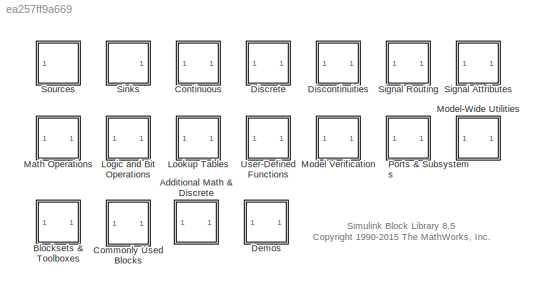
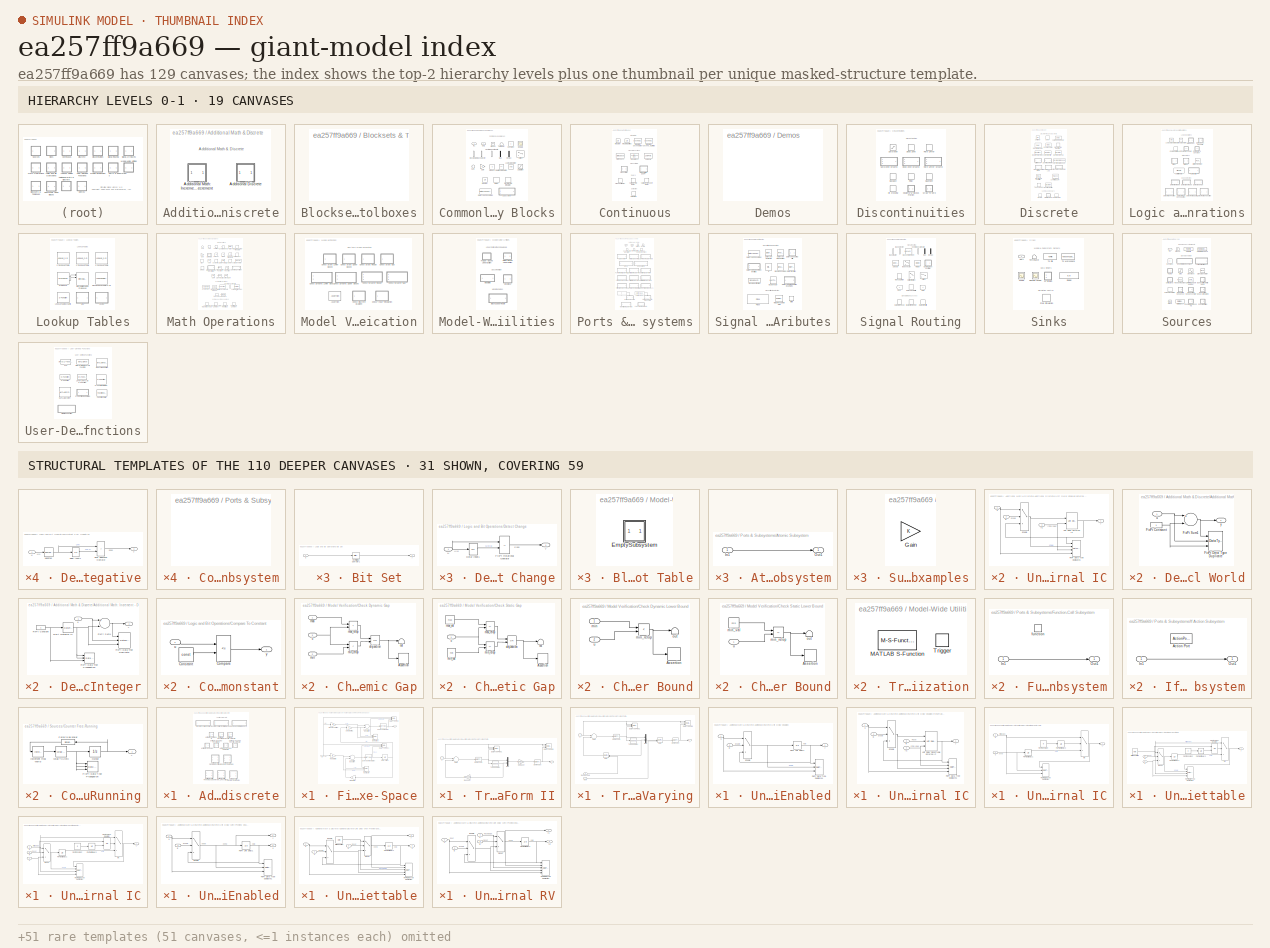
[diagram: thumbnail index - top-2 hierarchy levels (19 canvases) + 31 structural-template representatives of the remaining 110 canvases]
MODEL slx_ea257ff9a669
KIND library
CONFIG AbsTol = auto
CONFIG FixedStep = auto
CONFIG MaxStep = auto
CONFIG MinStep = auto
CONFIG PostLoadFcn = setsysloc_simulink(bdroot)
CONFIG RelTol = 1e-3
CONFIG SampleTimeConstraint = Unconstrained
CONFIG Solver = ode45
CONFIG SolverMode = SingleTasking
CONFIG SolverName = ode45
CONFIG StartTime = 0.0
CONFIG StopTime = 10.0
BLOCK [SubSystem] Additional Math & Discrete
  Ports = []
  RequestExecContextInheritance = off
BLOCK [SubSystem] Additional Math & Discrete/Additional Discrete
  Ports = []
  RequestExecContextInheritance = off
BLOCK [SubSystem] Additional Math & Discrete/Additional Discrete/Fixed-Point State-Space
  Ports = [1, 1]
  RequestExecContextInheritance = off
BLOCK [DataTypeDuplicate] Additional Math & Discrete/Additional Discrete/Fixed-Point State-Space/Data Type Duplicate
  DisableCoverage = on
  NumInputPorts = 3
  Ports = [3]
BLOCK [DataTypeDuplicate] Additional Math & Discrete/Additional Discrete/Fixed-Point State-Space/Data Type Duplicate1
  DisableCoverage = on
  NumInputPorts = 3
  Ports = [3]
BLOCK [Reference] Additional Math & Discrete/Additional Discrete/Fixed-Point State-Space/DataTypeProp  REF=simulink/Signal
Attributes/Data Type
Propagation
  BiasAdd = 0
  BiasBase = Bias2
  BiasMult = 1
  IfRefDouble = double
  IfRefSingle = single
  IsSigned = IsSigned1 or IsSigned2
  NumBitsAdd = 0
  NumBitsAllowFinal = 1:128
  NumBitsBase = NumBits1
  NumBitsMult = 1
  Ports = [3]
  PropDataType = fixdt(1, 16)
  PropDataTypeMode = Inherit via propagation rule
  PropScaling = 2^-10
  PropScalingMode = Inherit via propagation rule
  SlopeAdd = 0
  SlopeBase = PosRange2
  SlopeMult = 1
  SourceBlock = simulink/Signal\nAttributes/Data Type\nPropagation
  SourceType = Data Type Propagation
  ValuesUsedBestPrec = [5 -7]
BLOCK [Reference] Additional Math & Discrete/Additional Discrete/Fixed-Point State-Space/DataTypeProp1  REF=simulink/Signal
Attributes/Data Type
Propagation
  BiasAdd = 0
  BiasBase = Bias2
  BiasMult = 1
  IfRefDouble = double
  IfRefSingle = single
  IsSigned = IsSigned1 or IsSigned2
  NumBitsAdd = 0
  NumBitsAllowFinal = 1:128
  NumBitsBase = NumBits1
  NumBitsMult = 1
  Ports = [3]
  PropDataType = fixdt(1, 16)
  PropDataTypeMode = Inherit via propagation rule
  PropScaling = 2^-10
  PropScalingMode = Inherit via propagation rule
  SlopeAdd = 0
  SlopeBase = PosRange2
  SlopeMult = 1
  SourceBlock = simulink/Signal\nAttributes/Data Type\nPropagation
  SourceType = Data Type Propagation
  ValuesUsedBestPrec = [5 -7]
BLOCK [UnitDelay] Additional Math & Discrete/Additional Discrete/Fixed-Point State-Space/Delay State X
  AttributesFormatString = %<Description>
  Description = Store in Global RAM
  DisableCoverage = on
  InitialCondition = X0
  SampleTime = -1
BLOCK [Gain] Additional Math & Discrete/Additional Discrete/Fixed-Point State-Space/Direct Link Matrix D
  AttributesFormatString = %<Description>
  Description = Multiply in CPU
  DisableCoverage = on
  Gain = D
  Multiplication = Matrix(K*u) (u vector)
  OutDataTypeStr = Inherit: Inherit via back propagation
  ParamDataTypeStr = Inherit: Inherit via internal rule
  SaturateOnIntegerOverflow = off
BLOCK [DataTypeConversion] Additional Math & Discrete/Additional Discrete/Fixed-Point State-Space/Downcast Next State X
  AttributesFormatString = %<Description>
  Description = Reduce from CPU Size\n to Global RAM Size
  DisableCoverage = on
  RndMeth = Floor
  SaturateOnIntegerOverflow = off
BLOCK [DataTypeConversion] Additional Math & Discrete/Additional Discrete/Fixed-Point State-Space/Downcast Output Y
  AttributesFormatString = %<Description>
  Description = Reduce from CPU Size\n to Global RAM Size
  RndMeth = Floor
  SaturateOnIntegerOverflow = off
BLOCK [Gain] Additional Math & Discrete/Additional Discrete/Fixed-Point State-Space/Input Matrix B
  AttributesFormatString = %<Description>
  Description = Multiply in CPU
  DisableCoverage = on
  Gain = B
  Multiplication = Matrix(K*u) (u vector)
  OutDataTypeStr = Inherit: Inherit via back propagation
  ParamDataTypeStr = Inherit: Inherit via internal rule
  SaturateOnIntegerOverflow = off
BLOCK [Gain] Additional Math & Discrete/Additional Discrete/Fixed-Point State-Space/Output Matrix C
  AttributesFormatString = %<Description>
  Description = Multiply in CPU
  DisableCoverage = on
  Gain = C
  Multiplication = Matrix(K*u) (u vector)
  OutDataTypeStr = Inherit: Inherit via back propagation
  ParamDataTypeStr = Inherit: Inherit via internal rule
  SaturateOnIntegerOverflow = off
BLOCK [Gain] Additional Math & Discrete/Additional Discrete/Fixed-Point State-Space/State Matrix A
  AttributesFormatString = %<Description>
  Description = Multiply in CPU
  DisableCoverage = on
  Gain = A
  Multiplication = Matrix(K*u) (u vector)
  OutDataTypeStr = Inherit: Inherit via back propagation
  ParamDataTypeStr = Inherit: Inherit via internal rule
  SaturateOnIntegerOverflow = off
BLOCK [Sum] Additional Math & Discrete/Additional Discrete/Fixed-Point State-Space/Sum Output Equation
  AttributesFormatString = %<Description>
  Description = Add in CPU
  DisableCoverage = on
  InputSameDT = off
  OutDataTypeStr = slDataTypeAndScale(('InternalDataType'),('OutputEqScaling'))
  Ports = [2, 1]
  SaturateOnIntegerOverflow = off
BLOCK [Sum] Additional Math & Discrete/Additional Discrete/Fixed-Point State-Space/Sum State Equation
  AttributesFormatString = %<Description>
  Description = Add in CPU
  DisableCoverage = on
  InputSameDT = off
  OutDataTypeStr = slDataTypeAndScale(('InternalDataType'),('StateEqScaling'))
  Ports = [2, 1]
  SaturateOnIntegerOverflow = off
BLOCK [Inport] Additional Math & Discrete/Additional Discrete/Fixed-Point State-Space/u
  IconDisplay = Port number
BLOCK [Outport] Additional Math & Discrete/Additional Discrete/Fixed-Point State-Space/y
  IconDisplay = Port number
  InitialOutput = 0
BLOCK [SubSystem] Additional Math & Discrete/Additional Discrete/Transfer Fcn Direct Form II
  Ports = [1, 1]
  RequestExecContextInheritance = off
BLOCK [SubSystem] Additional Math & Discrete/Additional Discrete/Transfer Fcn Direct Form II Time Varying
  Ports = [3, 1]
  RequestExecContextInheritance = off
BLOCK [Reference] Additional Math & Discrete/Additional Discrete/Transfer Fcn Direct Form II Time Varying/DataTypeProp  REF=simulink/Signal
Attributes/Data Type
Propagation
  BiasAdd = 0
  BiasBase = Bias1
  BiasMult = 1
  IfRefDouble = double
  IfRefSingle = single
  IsSigned = IsSigned1
  NumBitsAdd = 0
  NumBitsAllowFinal = 1:128
  NumBitsBase = NumBits1
  NumBitsMult = 1
  Ports = [3]
  PropDataType = fixdt(1, 16)
  PropDataTypeMode = Inherit via propagation rule
  PropScaling = 2^-10
  PropScalingMode = Inherit via propagation rule
  SlopeAdd = 0
  SlopeBase = Slope1
  SlopeMult = 1
  SourceBlock = simulink/Signal\nAttributes/Data Type\nPropagation
  SourceType = Data Type Propagation
  ValuesUsedBestPrec = [5 -7]
BLOCK [Reference] Additional Math & Discrete/Additional Discrete/Transfer Fcn Direct Form II Time Varying/DataTypeProp1  REF=simulink/Signal
Attributes/Data Type
Propagation
  BiasAdd = 0
  BiasBase = Bias1
  BiasMult = 1
  IfRefDouble = double
  IfRefSingle = single
  IsSigned = IsSigned1
  NumBitsAdd = 0
  NumBitsAllowFinal = 1:128
  NumBitsBase = NumBits1
  NumBitsMult = 1
  Ports = [3]
  PropDataType = fixdt(1, 16)
  PropDataTypeMode = Inherit via propagation rule
  PropScaling = 2^-10
  PropScalingMode = Inherit via propagation rule
  SlopeAdd = 0
  SlopeBase = Slope1
  SlopeMult = 2
  SourceBlock = simulink/Signal\nAttributes/Data Type\nPropagation
  SourceType = Data Type Propagation
  ValuesUsedBestPrec = [5 -7]
BLOCK [Inport] Additional Math & Discrete/Additional Discrete/Transfer Fcn Direct Form II Time Varying/Den No Lead
  IconDisplay = Port number
  Port = 3
BLOCK [DotProduct] Additional Math & Discrete/Additional Discrete/Transfer Fcn Direct Form II Time Varying/Dot1
  AttributesFormatString = Data Type and Scaling Inherited\nwith goal of NO Quantization Noise\nPossible Overflow or Saturation
  DisableCoverage = on
  InputSameDT = off
  OutDataTypeStr = Inherit: Inherit via internal rule
BLOCK [DotProduct] Additional Math & Discrete/Additional Discrete/Transfer Fcn Direct Form II Time Varying/Dot2
  AttributesFormatString = Data Type and Scaling Inherited\nwith goal of NO Quantization Noise\nPossible Overflow or Saturation
  DisableCoverage = on
  InputSameDT = off
  OutDataTypeStr = Inherit: Inherit via internal rule
BLOCK [DataTypeConversion] Additional Math & Discrete/Additional Discrete/Transfer Fcn Direct Form II Time Varying/Downcast
  AttributesFormatString = %<Description>
  Description = Reduce from CPU Size\n to Global RAM Size
  LockScale = on
  RndMeth = Floor
  SaturateOnIntegerOverflow = off
BLOCK [DataTypeConversion] Additional Math & Discrete/Additional Discrete/Transfer Fcn Direct Form II Time Varying/Downcast1
  AttributesFormatString = %<Description>
  Description = Reduce from CPU Size\n to Global RAM Size
  DisableCoverage = on
  LockScale = on
  RndMeth = Floor
  SaturateOnIntegerOverflow = off
BLOCK [Mux] Additional Math & Discrete/Additional Discrete/Transfer Fcn Direct Form II Time Varying/Mux
  DisplayOption = bar
  Inputs = 2
  Ports = [2, 1]
BLOCK [Inport] Additional Math & Discrete/Additional Discrete/Transfer Fcn Direct Form II Time Varying/Num
  IconDisplay = Port number
  Port = 2
BLOCK [Sum] Additional Math & Discrete/Additional Discrete/Transfer Fcn Direct Form II Time Varying/Sum
  AttributesFormatString = Data Type and Scaling Inherited\nwith goal of NO Quantization Noise\nPossible Overflow or Saturation
  DisableCoverage = on
  InputSameDT = off
  Inputs = +-
  LockScale = on
  OutDataTypeStr = Inherit: Inherit via internal rule
  Ports = [2, 1]
  SaturateOnIntegerOverflow = off
  Tag = S16 2^-10
BLOCK [Reference] Additional Math & Discrete/Additional Discrete/Transfer Fcn Direct Form II Time Varying/Tapped Delay  REF=simulink/Discrete/Tapped Delay
  AttributesFormatString = Number of Taps\nInherited via Back Propagation
  DelayOrder = Newest
  NumDelays = -1
  Ports = [1, 1]
  SourceBlock = simulink/Discrete/Tapped Delay
  SourceType = Tapped Delay Line
  includeCurrent = off
  samptime = -1
  vinit = vinit
BLOCK [Inport] Additional Math & Discrete/Additional Discrete/Transfer Fcn Direct Form II Time Varying/u
  IconDisplay = Port number
BLOCK [Outport] Additional Math & Discrete/Additional Discrete/Transfer Fcn Direct Form II Time Varying/y
  IconDisplay = Port number
BLOCK [Reference] Additional Math & Discrete/Additional Discrete/Transfer Fcn Direct Form II/DataTypeProp  REF=simulink/Signal
Attributes/Data Type
Propagation
  BiasAdd = 0
  BiasBase = Bias1
  BiasMult = 0
  IfRefDouble = double
  IfRefSingle = single
  IsSigned = IsSigned1 or IsSigned2
  NumBitsAdd = 0
  NumBitsAllowFinal = 1:128
  NumBitsBase = max([NumBits1 NumBits2])
  NumBitsMult = 1
  Ports = [3]
  PropDataType = fixdt(1, 16)
  PropDataTypeMode = Inherit via propagation rule
  PropScaling = 2^-10
  PropScalingMode = Inherit via propagation rule
  SlopeAdd = 0
  SlopeBase = min([Slope1 Slope2])
  SlopeMult = OutputSlopeMult
  SourceBlock = simulink/Signal\nAttributes/Data Type\nPropagation
  SourceType = Data Type Propagation
  ValuesUsedBestPrec = [5 -7]
BLOCK [Reference] Additional Math & Discrete/Additional Discrete/Transfer Fcn Direct Form II/DataTypeProp1  REF=simulink/Signal
Attributes/Data Type
Propagation
  BiasAdd = 0
  BiasBase = Bias1
  BiasMult = 0
  IfRefDouble = double
  IfRefSingle = single
  IsSigned = IsSigned1 or IsSigned2
  NumBitsAdd = 0
  NumBitsAllowFinal = 1:128
  NumBitsBase = max([NumBits1 NumBits2])
  NumBitsMult = 1
  Ports = [3]
  PropDataType = fixdt(1, 16)
  PropDataTypeMode = Inherit via propagation rule
  PropScaling = 2^-10
  PropScalingMode = Inherit via propagation rule
  SlopeAdd = 0
  SlopeBase = min([Slope1 Slope2])
  SlopeMult = OutputSlopeMult2
  SourceBlock = simulink/Signal\nAttributes/Data Type\nPropagation
  SourceType = Data Type Propagation
  ValuesUsedBestPrec = [5 -7]
BLOCK [Gain] Additional Math & Discrete/Additional Discrete/Transfer Fcn Direct Form II/DenCoef
  AttributesFormatString = Data Type and Scaling Inherited\nwith goal of NO Quantization Noise\nPossible Overflow or Saturation
  DisableCoverage = on
  Gain = DenCoefVec
  Multiplication = Matrix(K*u) (u vector)
  OutDataTypeStr = Inherit: Inherit via internal rule
  ParamDataTypeStr = Inherit: Inherit via internal rule
  SaturateOnIntegerOverflow = off
BLOCK [DataTypeConversion] Additional Math & Discrete/Additional Discrete/Transfer Fcn Direct Form II/Downcast
  AttributesFormatString = %<Description>
  Description = Reduce from CPU Size\n to Global RAM Size
  LockScale = on
  RndMeth = Floor
  SaturateOnIntegerOverflow = off
BLOCK [DataTypeConversion] Additional Math & Discrete/Additional Discrete/Transfer Fcn Direct Form II/Downcast1
  AttributesFormatString = %<Description>
  Description = Reduce from CPU Size\n to Global RAM Size
  DisableCoverage = on
  LockScale = on
  RndMeth = Floor
  SaturateOnIntegerOverflow = off
BLOCK [Mux] Additional Math & Discrete/Additional Discrete/Transfer Fcn Direct Form II/Mux
  DisplayOption = bar
  Inputs = 2
  Ports = [2, 1]
BLOCK [Gain] Additional Math & Discrete/Additional Discrete/Transfer Fcn Direct Form II/NumCoef
  AttributesFormatString = Data Type and Scaling Inherited\nwith goal of NO Quantization Noise\nPossible Overflow or Saturation
  DisableCoverage = on
  Gain = NumCoefVec
  Multiplication = Matrix(K*u) (u vector)
  OutDataTypeStr = Inherit: Inherit via internal rule
  ParamDataTypeStr = Inherit: Inherit via internal rule
  SaturateOnIntegerOverflow = off
BLOCK [Sum] Additional Math & Discrete/Additional Discrete/Transfer Fcn Direct Form II/Sum
  AttributesFormatString = Data Type and Scaling Inherited\nwith goal of NO Quantization Noise\nPossible Overflow or Saturation
  DisableCoverage = on
  InputSameDT = off
  Inputs = +-
  LockScale = on
  OutDataTypeStr = Inherit: Inherit via internal rule
  Ports = [2, 1]
  SaturateOnIntegerOverflow = off
  Tag = S16 2^-10
BLOCK [Reference] Additional Math & Discrete/Additional Discrete/Transfer Fcn Direct Form II/Tapped Delay  REF=simulink/Discrete/Tapped Delay
  AttributesFormatString = Number of Taps\nInherited via Back Propagation
  DelayOrder = Newest
  NumDelays = -1
  Ports = [1, 1]
  SourceBlock = simulink/Discrete/Tapped Delay
  SourceType = Tapped Delay Line
  includeCurrent = off
  samptime = -1
  vinit = vinit
BLOCK [Inport] Additional Math & Discrete/Additional Discrete/Transfer Fcn Direct Form II/u
  IconDisplay = Port number
BLOCK [Outport] Additional Math & Discrete/Additional Discrete/Transfer Fcn Direct Form II/y
  IconDisplay = Port number
BLOCK [SubSystem] Additional Math & Discrete/Additional Discrete/Unit Delay Enabled
  Ports = [2, 1]
  RequestExecContextInheritance = off
BLOCK [SubSystem] Additional Math & Discrete/Additional Discrete/Unit Delay Enabled External IC
  Ports = [3, 1]
  RequestExecContextInheritance = off
BLOCK [Inport] Additional Math & Discrete/Additional Discrete/Unit Delay Enabled External IC/E
  IconDisplay = Port number
  Port = 2
BLOCK [Switch] Additional Math & Discrete/Additional Discrete/Unit Delay Enabled External IC/Enable
  Criteria = u2 ~= 0
  InputSameDT = off
  OutDataTypeStr = Inherit: Inherit via back propagation
  SaturateOnIntegerOverflow = off
  ZeroCross = off
BLOCK [DataTypeDuplicate] Additional Math & Discrete/Additional Discrete/Unit Delay Enabled External IC/FixPt Data Type Duplicate1
  DisableCoverage = on
  NumInputPorts = 4
  Ports = [4]
BLOCK [Inport] Additional Math & Discrete/Additional Discrete/Unit Delay Enabled External IC/IC
  IconDisplay = Port number
  Port = 3
BLOCK [Reference] Additional Math & Discrete/Additional Discrete/Unit Delay Enabled External IC/Unit Delay External IC  REF=simulink/Additional Math
& Discrete/Additional
Discrete/Unit Delay
External IC
  Ports = [2, 1]
  SourceBlock = simulink/Additional Math\n& Discrete/Additional\nDiscrete/Unit Delay\nExternal IC
  SourceType = Unit Delay External Initial Condition
  tsamp = tsamp
BLOCK [Inport] Additional Math & Discrete/Additional Discrete/Unit Delay Enabled External IC/u
  IconDisplay = Port number
BLOCK [Outport] Additional Math & Discrete/Additional Discrete/Unit Delay Enabled External IC/y
  IconDisplay = Port number
BLOCK [SubSystem] Additional Math & Discrete/Additional Discrete/Unit Delay Enabled Resettable
  Ports = [3, 1]
  RequestExecContextInheritance = off
BLOCK [SubSystem] Additional Math & Discrete/Additional Discrete/Unit Delay Enabled Resettable External IC
  Ports = [4, 1]
  RequestExecContextInheritance = off
BLOCK [Inport] Additional Math & Discrete/Additional Discrete/Unit Delay Enabled Resettable External IC/E
  IconDisplay = Port number
  Port = 2
BLOCK [Switch] Additional Math & Discrete/Additional Discrete/Unit Delay Enabled Resettable External IC/Enable
  Criteria = u2 ~= 0
  InputSameDT = off
  OutDataTypeStr = Inherit: Inherit via back propagation
  SaturateOnIntegerOverflow = off
  ZeroCross = off
BLOCK [DataTypeDuplicate] Additional Math & Discrete/Additional Discrete/Unit Delay Enabled Resettable External IC/FixPt Data Type Duplicate1
  DisableCoverage = on
  NumInputPorts = 4
  Ports = [4]
BLOCK [Inport] Additional Math & Discrete/Additional Discrete/Unit Delay Enabled Resettable External IC/IC
  IconDisplay = Port number
  Port = 4
BLOCK [Inport] Additional Math & Discrete/Additional Discrete/Unit Delay Enabled Resettable External IC/R
  IconDisplay = Port number
  Port = 3
BLOCK [Reference] Additional Math & Discrete/Additional Discrete/Unit Delay Enabled Resettable External IC/Unit Delay Resettable External IC  REF=simulink/Additional Math
& Discrete/Additional
Discrete/Unit Delay
Resettable
External IC
  Ports = [3, 1]
  SourceBlock = simulink/Additional Math\n& Discrete/Additional\nDiscrete/Unit Delay\nResettable\nExternal IC
  SourceType = Unit Delay Resettable External Initial Condition
  tsamp = tsamp
BLOCK [Inport] Additional Math & Discrete/Additional Discrete/Unit Delay Enabled Resettable External IC/u
  IconDisplay = Port number
BLOCK [Outport] Additional Math & Discrete/Additional Discrete/Unit Delay Enabled Resettable External IC/y
  IconDisplay = Port number
BLOCK [Inport] Additional Math & Discrete/Additional Discrete/Unit Delay Enabled Resettable/E
  IconDisplay = Port number
  Port = 2
BLOCK [Switch] Additional Math & Discrete/Additional Discrete/Unit Delay Enabled Resettable/Enable
  Criteria = u2 ~= 0
  InputSameDT = off
  OutDataTypeStr = Inherit: Inherit via back propagation
  SaturateOnIntegerOverflow = off
  ZeroCross = off
BLOCK [DataTypeDuplicate] Additional Math & Discrete/Additional Discrete/Unit Delay Enabled Resettable/FixPt Data Type Duplicate2
  DisableCoverage = on
  NumInputPorts = 3
  Ports = [3]
BLOCK [Inport] Additional Math & Discrete/Additional Discrete/Unit Delay Enabled Resettable/R
  IconDisplay = Port number
  Port = 3
BLOCK [Reference] Additional Math & Discrete/Additional Discrete/Unit Delay Enabled Resettable/Unit Delay Resettable  REF=simulink/Additional Math
& Discrete/Additional
Discrete/Unit Delay
Resettable
  Ports = [2, 1]
  SourceBlock = simulink/Additional Math\n& Discrete/Additional\nDiscrete/Unit Delay\nResettable
  SourceType = Unit Delay Resettable
  tsamp = tsamp
  vinit = vinit
BLOCK [Inport] Additional Math & Discrete/Additional Discrete/Unit Delay Enabled Resettable/u
  IconDisplay = Port number
BLOCK [Outport] Additional Math & Discrete/Additional Discrete/Unit Delay Enabled Resettable/y
  IconDisplay = Port number
BLOCK [Inport] Additional Math & Discrete/Additional Discrete/Unit Delay Enabled/E
  IconDisplay = Port number
  Port = 2
BLOCK [Switch] Additional Math & Discrete/Additional Discrete/Unit Delay Enabled/Enable
  Criteria = u2 ~= 0
  InputSameDT = off
  OutDataTypeStr = Inherit: Inherit via back propagation
  SaturateOnIntegerOverflow = off
  ZeroCross = off
BLOCK [DataTypeDuplicate] Additional Math & Discrete/Additional Discrete/Unit Delay Enabled/FixPt Data Type Duplicate1
  DisableCoverage = on
  NumInputPorts = 3
  Ports = [3]
BLOCK [UnitDelay] Additional Math & Discrete/Additional Discrete/Unit Delay Enabled/FixPt Unit Delay1
  HasFrameUpgradeWarning = off
  InitialCondition = vinit
  SampleTime = tsamp
BLOCK [Inport] Additional Math & Discrete/Additional Discrete/Unit Delay Enabled/u
  IconDisplay = Port number
BLOCK [Outport] Additional Math & Discrete/Additional Discrete/Unit Delay Enabled/y
  IconDisplay = Port number
BLOCK [SubSystem] Additional Math & Discrete/Additional Discrete/Unit Delay External IC
  Ports = [2, 1]
  RequestExecContextInheritance = off
BLOCK [Constant] Additional Math & Discrete/Additional Discrete/Unit Delay External IC/FixPt Constant
  DisableCoverage = on
  OutDataTypeStr = fixdt(0,8,0)
  Value = 0
BLOCK [DataTypeDuplicate] Additional Math & Discrete/Additional Discrete/Unit Delay External IC/FixPt Data Type Duplicate1
  DisableCoverage = on
  NumInputPorts = 3
  Ports = [3]
BLOCK [UnitDelay] Additional Math & Discrete/Additional Discrete/Unit Delay External IC/FixPt Unit Delay1
  DisableCoverage = on
  HasFrameUpgradeWarning = off
  InitialCondition = 0.0
  SampleTime = tsamp
BLOCK [UnitDelay] Additional Math & Discrete/Additional Discrete/Unit Delay External IC/FixPt Unit Delay2
  DisableCoverage = on
  InitialCondition = 1
  InputProcessing = Elements as channels (sample based)
  SampleTime = tsamp
BLOCK [Inport] Additional Math & Discrete/Additional Discrete/Unit Delay External IC/IC
  IconDisplay = Port number
  Port = 2
BLOCK [Switch] Additional Math & Discrete/Additional Discrete/Unit Delay External IC/Init
  Criteria = u2 ~= 0
  InputSameDT = off
  OutDataTypeStr = Inherit: Inherit via back propagation
  SaturateOnIntegerOverflow = off
  ZeroCross = off
BLOCK [Inport] Additional Math & Discrete/Additional Discrete/Unit Delay External IC/u
  IconDisplay = Port number
BLOCK [Outport] Additional Math & Discrete/Additional Discrete/Unit Delay External IC/y
  IconDisplay = Port number
BLOCK [SubSystem] Additional Math & Discrete/Additional Discrete/Unit Delay Resettable
  Ports = [2, 1]
  RequestExecContextInheritance = off
BLOCK [SubSystem] Additional Math & Discrete/Additional Discrete/Unit Delay Resettable External IC
  Ports = [3, 1]
  RequestExecContextInheritance = off
BLOCK [Constant] Additional Math & Discrete/Additional Discrete/Unit Delay Resettable External IC/FixPt Constant
  DisableCoverage = on
  OutDataTypeStr = fixdt(0,8,0)
  Value = 0
BLOCK [DataTypeDuplicate] Additional Math & Discrete/Additional Discrete/Unit Delay Resettable External IC/FixPt Data Type Duplicate1
  DisableCoverage = on
  NumInputPorts = 4
  Ports = [4]
BLOCK [Logic] Additional Math & Discrete/Additional Discrete/Unit Delay Resettable External IC/FixPt Logical Operator
  AllPortsSameDT = off
  DisableCoverage = on
  Operator = OR
  OutDataTypeStr = fixdt(0, 8)
  Ports = [2, 1]
BLOCK [UnitDelay] Additional Math & Discrete/Additional Discrete/Unit Delay Resettable External IC/FixPt Unit Delay1
  DisableCoverage = on
  HasFrameUpgradeWarning = off
  InitialCondition = 0.0
  SampleTime = tsamp
BLOCK [UnitDelay] Additional Math & Discrete/Additional Discrete/Unit Delay Resettable External IC/FixPt Unit Delay2
  DisableCoverage = on
  InitialCondition = 1
  InputProcessing = Elements as channels (sample based)
  SampleTime = tsamp
BLOCK [Inport] Additional Math & Discrete/Additional Discrete/Unit Delay Resettable External IC/IC
  IconDisplay = Port number
  Port = 3
BLOCK [Switch] Additional Math & Discrete/Additional Discrete/Unit Delay Resettable External IC/Init
  Criteria = u2 ~= 0
  InputSameDT = off
  OutDataTypeStr = Inherit: Inherit via back propagation
  SaturateOnIntegerOverflow = off
  ZeroCross = off
BLOCK [Inport] Additional Math & Discrete/Additional Discrete/Unit Delay Resettable External IC/R
  IconDisplay = Port number
  Port = 2
BLOCK [Switch] Additional Math & Discrete/Additional Discrete/Unit Delay Resettable External IC/Reset
  Criteria = u2 ~= 0
  InputSameDT = off
  OutDataTypeStr = Inherit: Inherit via back propagation
  SaturateOnIntegerOverflow = off
  ZeroCross = off
BLOCK [Inport] Additional Math & Discrete/Additional Discrete/Unit Delay Resettable External IC/u
  IconDisplay = Port number
BLOCK [Outport] Additional Math & Discrete/Additional Discrete/Unit Delay Resettable External IC/y
  IconDisplay = Port number
BLOCK [Constant] Additional Math & Discrete/Additional Discrete/Unit Delay Resettable/FixPt Constant
  DisableCoverage = on
  OutDataTypeStr = fixdt(0,8,0)
  Value = 0
BLOCK [DataTypeDuplicate] Additional Math & Discrete/Additional Discrete/Unit Delay Resettable/FixPt Data Type Duplicate1
  DisableCoverage = on
  NumInputPorts = 4
  Ports = [4]
BLOCK [Logic] Additional Math & Discrete/Additional Discrete/Unit Delay Resettable/FixPt Logical Operator
  AllPortsSameDT = off
  DisableCoverage = on
  Operator = OR
  OutDataTypeStr = fixdt(0, 8)
  Ports = [2, 1]
BLOCK [UnitDelay] Additional Math & Discrete/Additional Discrete/Unit Delay Resettable/FixPt Unit Delay1
  DisableCoverage = on
  HasFrameUpgradeWarning = off
  InitialCondition = vinit
  SampleTime = tsamp
BLOCK [UnitDelay] Additional Math & Discrete/Additional Discrete/Unit Delay Resettable/FixPt Unit Delay2
  DisableCoverage = on
  InitialCondition = 1
  InputProcessing = Elements as channels (sample based)
  SampleTime = tsamp
BLOCK [Switch] Additional Math & Discrete/Additional Discrete/Unit Delay Resettable/Init
  Criteria = u2 ~= 0
  InputSameDT = off
  OutDataTypeStr = Inherit: Inherit via back propagation
  SaturateOnIntegerOverflow = off
  ZeroCross = off
BLOCK [Constant] Additional Math & Discrete/Additional Discrete/Unit Delay Resettable/Initial Condition
  DisableCoverage = on
  OutDataTypeStr = Inherit: Inherit via back propagation
  Value = vinit
BLOCK [Inport] Additional Math & Discrete/Additional Discrete/Unit Delay Resettable/R
  IconDisplay = Port number
  Port = 2
BLOCK [Switch] Additional Math & Discrete/Additional Discrete/Unit Delay Resettable/Reset
  Criteria = u2 ~= 0
  InputSameDT = off
  OutDataTypeStr = Inherit: Inherit via back propagation
  SaturateOnIntegerOverflow = off
  ZeroCross = off
BLOCK [Inport] Additional Math & Discrete/Additional Discrete/Unit Delay Resettable/u
  IconDisplay = Port number
BLOCK [Outport] Additional Math & Discrete/Additional Discrete/Unit Delay Resettable/y
  IconDisplay = Port number
BLOCK [SubSystem] Additional Math & Discrete/Additional Discrete/Unit Delay With Preview Enabled
  Ports = [2, 2]
  RequestExecContextInheritance = off
BLOCK [SubSystem] Additional Math & Discrete/Additional Discrete/Unit Delay With Preview Enabled Resettable
  Ports = [3, 2]
  RequestExecContextInheritance = off
BLOCK [SubSystem] Additional Math & Discrete/Additional Discrete/Unit Delay With Preview Enabled Resettable External RV
  Ports = [4, 2]
  RequestExecContextInheritance = off
BLOCK [Inport] Additional Math & Discrete/Additional Discrete/Unit Delay With Preview Enabled Resettable External RV/E
  IconDisplay = Port number
  Port = 2
BLOCK [Switch] Additional Math & Discrete/Additional Discrete/Unit Delay With Preview Enabled Resettable External RV/Enable
  Criteria = u2 ~= 0
  InputSameDT = off
  OutDataTypeStr = Inherit: Inherit via back propagation
  SaturateOnIntegerOverflow = off
  ZeroCross = off
BLOCK [DataTypeDuplicate] Additional Math & Discrete/Additional Discrete/Unit Delay With Preview Enabled Resettable External RV/FixPt Data Type Duplicate2
  DisableCoverage = on
  NumInputPorts = 5
  Ports = [5]
BLOCK [UnitDelay] Additional Math & Discrete/Additional Discrete/Unit Delay With Preview Enabled Resettable External RV/FixPt Unit Delay1
  HasFrameUpgradeWarning = off
  InitialCondition = vinit
  SampleTime = tsamp
BLOCK [Inport] Additional Math & Discrete/Additional Discrete/Unit Delay With Preview Enabled Resettable External RV/R
  IconDisplay = Port number
  Port = 3
BLOCK [Switch] Additional Math & Discrete/Additional Discrete/Unit Delay With Preview Enabled Resettable External RV/Reset
  Criteria = u2 ~= 0
  OutDataTypeStr = Inherit: Inherit via back propagation
  SaturateOnIntegerOverflow = off
BLOCK [Inport] Additional Math & Discrete/Additional Discrete/Unit Delay With Preview Enabled Resettable External RV/V
  IconDisplay = Port number
  Port = 4
BLOCK [Inport] Additional Math & Discrete/Additional Discrete/Unit Delay With Preview Enabled Resettable External RV/u
  IconDisplay = Port number
BLOCK [Outport] Additional Math & Discrete/Additional Discrete/Unit Delay With Preview Enabled Resettable External RV/y1
  IconDisplay = Port number
BLOCK [Outport] Additional Math & Discrete/Additional Discrete/Unit Delay With Preview Enabled Resettable External RV/y2
  IconDisplay = Port number
  Port = 2
BLOCK [Inport] Additional Math & Discrete/Additional Discrete/Unit Delay With Preview Enabled Resettable/E
  IconDisplay = Port number
  Port = 2
BLOCK [Switch] Additional Math & Discrete/Additional Discrete/Unit Delay With Preview Enabled Resettable/Enable
  Criteria = u2 ~= 0
  InputSameDT = off
  OutDataTypeStr = Inherit: Inherit via back propagation
  SaturateOnIntegerOverflow = off
  ZeroCross = off
BLOCK [DataTypeDuplicate] Additional Math & Discrete/Additional Discrete/Unit Delay With Preview Enabled Resettable/FixPt Data Type Duplicate2
  DisableCoverage = on
  NumInputPorts = 5
  Ports = [5]
BLOCK [UnitDelay] Additional Math & Discrete/Additional Discrete/Unit Delay With Preview Enabled Resettable/FixPt Unit Delay1
  HasFrameUpgradeWarning = off
  InitialCondition = vinit
  SampleTime = tsamp
BLOCK [Constant] Additional Math & Discrete/Additional Discrete/Unit Delay With Preview Enabled Resettable/Initial Condition
  DisableCoverage = on
  OutDataTypeStr = Inherit: Inherit via back propagation
  Value = vinit
BLOCK [Inport] Additional Math & Discrete/Additional Discrete/Unit Delay With Preview Enabled Resettable/R
  IconDisplay = Port number
  Port = 3
BLOCK [Switch] Additional Math & Discrete/Additional Discrete/Unit Delay With Preview Enabled Resettable/Reset
  Criteria = u2 ~= 0
  OutDataTypeStr = Inherit: Inherit via back propagation
  SaturateOnIntegerOverflow = off
BLOCK [Inport] Additional Math & Discrete/Additional Discrete/Unit Delay With Preview Enabled Resettable/u
  IconDisplay = Port number
BLOCK [Outport] Additional Math & Discrete/Additional Discrete/Unit Delay With Preview Enabled Resettable/x
  IconDisplay = Port number
  Port = 2
BLOCK [Outport] Additional Math & Discrete/Additional Discrete/Unit Delay With Preview Enabled Resettable/y
  IconDisplay = Port number
BLOCK [Inport] Additional Math & Discrete/Additional Discrete/Unit Delay With Preview Enabled/E
  IconDisplay = Port number
  Port = 2
BLOCK [Switch] Additional Math & Discrete/Additional Discrete/Unit Delay With Preview Enabled/Enable
  Criteria = u2 ~= 0
  InputSameDT = off
  OutDataTypeStr = Inherit: Inherit via back propagation
  SaturateOnIntegerOverflow = off
  ZeroCross = off
BLOCK [DataTypeDuplicate] Additional Math & Discrete/Additional Discrete/Unit Delay With Preview Enabled/FixPt Data Type Duplicate1
  DisableCoverage = on
  NumInputPorts = 3
  Ports = [3]
BLOCK [UnitDelay] Additional Math & Discrete/Additional Discrete/Unit Delay With Preview Enabled/FixPt Unit Delay1
  HasFrameUpgradeWarning = off
  InitialCondition = vinit
  SampleTime = tsamp
BLOCK [Inport] Additional Math & Discrete/Additional Discrete/Unit Delay With Preview Enabled/u
  IconDisplay = Port number
BLOCK [Outport] Additional Math & Discrete/Additional Discrete/Unit Delay With Preview Enabled/x
  IconDisplay = Port number
  Port = 2
BLOCK [Outport] Additional Math & Discrete/Additional Discrete/Unit Delay With Preview Enabled/y
  IconDisplay = Port number
BLOCK [SubSystem] Additional Math & Discrete/Additional Discrete/Unit Delay With Preview Resettable
  Ports = [2, 2]
  RequestExecContextInheritance = off
BLOCK [SubSystem] Additional Math & Discrete/Additional Discrete/Unit Delay With Preview Resettable External RV
  Ports = [3, 2]
  RequestExecContextInheritance = off
BLOCK [DataTypeDuplicate] Additional Math & Discrete/Additional Discrete/Unit Delay With Preview Resettable External RV/FixPt Data Type Duplicate2
  DisableCoverage = on
  NumInputPorts = 4
  Ports = [4]
BLOCK [UnitDelay] Additional Math & Discrete/Additional Discrete/Unit Delay With Preview Resettable External RV/FixPt Unit Delay1
  HasFrameUpgradeWarning = off
  InitialCondition = vinit
  SampleTime = tsamp
BLOCK [Inport] Additional Math & Discrete/Additional Discrete/Unit Delay With Preview Resettable External RV/R
  IconDisplay = Port number
  Port = 2
BLOCK [Inport] Additional Math & Discrete/Additional Discrete/Unit Delay With Preview Resettable External RV/RV
  IconDisplay = Port number
  Port = 3
BLOCK [Switch] Additional Math & Discrete/Additional Discrete/Unit Delay With Preview Resettable External RV/Reset
  Criteria = u2 ~= 0
  InputSameDT = off
  OutDataTypeStr = Inherit: Inherit via back propagation
  SaturateOnIntegerOverflow = off
  ZeroCross = off
BLOCK [Inport] Additional Math & Discrete/Additional Discrete/Unit Delay With Preview Resettable External RV/u
  IconDisplay = Port number
BLOCK [Outport] Additional Math & Discrete/Additional Discrete/Unit Delay With Preview Resettable External RV/x
  IconDisplay = Port number
  Port = 2
BLOCK [Outport] Additional Math & Discrete/Additional Discrete/Unit Delay With Preview Resettable External RV/y
  IconDisplay = Port number
BLOCK [DataTypeDuplicate] Additional Math & Discrete/Additional Discrete/Unit Delay With Preview Resettable/FixPt Data Type Duplicate2
  DisableCoverage = on
  NumInputPorts = 4
  Ports = [4]
BLOCK [UnitDelay] Additional Math & Discrete/Additional Discrete/Unit Delay With Preview Resettable/FixPt Unit Delay1
  HasFrameUpgradeWarning = off
  InitialCondition = vinit
  SampleTime = tsamp
BLOCK [Constant] Additional Math & Discrete/Additional Discrete/Unit Delay With Preview Resettable/Initial Condition
  DisableCoverage = on
  OutDataTypeStr = Inherit: Inherit via back propagation
  Value = vinit
BLOCK [Inport] Additional Math & Discrete/Additional Discrete/Unit Delay With Preview Resettable/R
  IconDisplay = Port number
  Port = 2
BLOCK [Switch] Additional Math & Discrete/Additional Discrete/Unit Delay With Preview Resettable/Reset
  Criteria = u2 ~= 0
  InputSameDT = off
  OutDataTypeStr = Inherit: Inherit via back propagation
  SaturateOnIntegerOverflow = off
  ZeroCross = off
BLOCK [Inport] Additional Math & Discrete/Additional Discrete/Unit Delay With Preview Resettable/u
  IconDisplay = Port number
BLOCK [Outport] Additional Math & Discrete/Additional Discrete/Unit Delay With Preview Resettable/x
  IconDisplay = Port number
  Port = 2
BLOCK [Outport] Additional Math & Discrete/Additional Discrete/Unit Delay With Preview Resettable/y
  IconDisplay = Port number
BLOCK [SubSystem] Additional Math & Discrete/Additional Math: Increment - Decrement
  Ports = []
  RequestExecContextInheritance = off
BLOCK [SubSystem] Additional Math & Discrete/Additional Math: Increment - Decrement/Decrement Real World
  Ports = [1, 1]
  RequestExecContextInheritance = off
BLOCK [Constant] Additional Math & Discrete/Additional Math: Increment - Decrement/Decrement Real World/FixPt Constant
  DisableCoverage = on
  OutDataTypeStr = Inherit: Inherit via back propagation
BLOCK [DataTypeDuplicate] Additional Math & Discrete/Additional Math: Increment - Decrement/Decrement Real World/FixPt Data Type Duplicate
  DisableCoverage = on
  NumInputPorts = 3
  Ports = [3]
BLOCK [Sum] Additional Math & Discrete/Additional Math: Increment - Decrement/Decrement Real World/FixPt Sum1
  Inputs = +-
  LockScale = on
  OutDataTypeStr = Inherit: Inherit via back propagation
  Ports = [2, 1]
  SaturateOnIntegerOverflow = off
BLOCK [Inport] Additional Math & Discrete/Additional Math: Increment - Decrement/Decrement Real World/u
  IconDisplay = Port number
BLOCK [Outport] Additional Math & Discrete/Additional Math: Increment - Decrement/Decrement Real World/y
  IconDisplay = Port number
BLOCK [SubSystem] Additional Math & Discrete/Additional Math: Increment - Decrement/Decrement Stored Integer
  Ports = [1, 1]
  RequestExecContextInheritance = off
BLOCK [Constant] Additional Math & Discrete/Additional Math: Increment - Decrement/Decrement Stored Integer/FixPt Constant
  DisableCoverage = on
  OutDataTypeStr = Inherit: Inherit via back propagation
BLOCK [DataTypeDuplicate] Additional Math & Discrete/Additional Math: Increment - Decrement/Decrement Stored Integer/FixPt Data Type Duplicate
  DisableCoverage = on
  NumInputPorts = 3
  Ports = [3]
BLOCK [Reference] Additional Math & Discrete/Additional Math: Increment - Decrement/Decrement Stored Integer/FixPt Data Type Propagation  REF=simulink/Signal
Attributes/Data Type
Propagation
  BiasAdd = 0
  BiasBase = Bias1
  BiasMult = 0
  IfRefDouble = double
  IfRefSingle = single
  IsSigned = IsSigned1
  NumBitsAdd = 0
  NumBitsAllowFinal = 1:128
  NumBitsBase = NumBits1
  NumBitsMult = 1
  Ports = [3]
  PropDataType = fixdt(1, 16)
  PropDataTypeMode = Inherit via propagation rule
  PropScaling = 2^-10
  PropScalingMode = Inherit via propagation rule
  SlopeAdd = 1
  SlopeBase = Slope1
  SlopeMult = 0
  SourceBlock = simulink/Signal\nAttributes/Data Type\nPropagation
  SourceType = Data Type Propagation
  ValuesUsedBestPrec = [5 -7]
BLOCK [DataTypeConversion] Additional Math & Discrete/Additional Math: Increment - Decrement/Decrement Stored Integer/FixPt Gateway In
  ConvertRealWorld = Stored Integer (SI)
  DisableCoverage = on
  RndMeth = Floor
  SaturateOnIntegerOverflow = off
BLOCK [Sum] Additional Math & Discrete/Additional Math: Increment - Decrement/Decrement Stored Integer/FixPt Sum1
  Inputs = +-
  LockScale = on
  OutDataTypeStr = Inherit: Inherit via back propagation
  Ports = [2, 1]
  SaturateOnIntegerOverflow = off
BLOCK [Inport] Additional Math & Discrete/Additional Math: Increment - Decrement/Decrement Stored Integer/u
  IconDisplay = Port number
BLOCK [Outport] Additional Math & Discrete/Additional Math: Increment - Decrement/Decrement Stored Integer/y
  IconDisplay = Port number
BLOCK [SubSystem] Additional Math & Discrete/Additional Math: Increment - Decrement/Decrement Time To Zero
  Ports = [1, 1]
  RequestExecContextInheritance = off
BLOCK [DataTypeDuplicate] Additional Math & Discrete/Additional Math: Increment - Decrement/Decrement Time To Zero/FixPt Data Type Duplicate
  DisableCoverage = on
  NumInputPorts = 5
  Ports = [5]
BLOCK [RelationalOperator] Additional Math & Discrete/Additional Math: Increment - Decrement/Decrement Time To Zero/FixPt Relational Operator3
  DisableCoverage = on
  InputSameDT = off
  Operator = >
  OutDataTypeStr = boolean
  Ports = [2, 1]
  ZeroCross = off
BLOCK [SampleTimeMath] Additional Math & Discrete/Additional Math: Increment - Decrement/Decrement Time To Zero/FixPt Sample Time Math
  DisableCoverage = on
  OutDataTypeStr = Inherit: Inherit via back propagation
  TsampMathOp = Ts Only
BLOCK [Sum] Additional Math & Discrete/Additional Math: Increment - Decrement/Decrement Time To Zero/FixPt Sum1
  DisableCoverage = on
  InputSameDT = off
  Inputs = +-
  LockScale = on
  OutDataTypeStr = Inherit: Inherit via back propagation
  Ports = [2, 1]
  SaturateOnIntegerOverflow = off
BLOCK [Switch] Additional Math & Discrete/Additional Math: Increment - Decrement/Decrement Time To Zero/FixPt Switch4
  Criteria = u2 ~= 0
  InputSameDT = off
  OutDataTypeStr = Inherit: Inherit via back propagation
  SaturateOnIntegerOverflow = off
  Threshold = 1
  ZeroCross = off
BLOCK [Ground] Additional Math & Discrete/Additional Math: Increment - Decrement/Decrement Time To Zero/Ground1
  DisableCoverage = on
BLOCK [Inport] Additional Math & Discrete/Additional Math: Increment - Decrement/Decrement Time To Zero/u
  IconDisplay = Port number
BLOCK [Outport] Additional Math & Discrete/Additional Math: Increment - Decrement/Decrement Time To Zero/y
  IconDisplay = Port number
BLOCK [SubSystem] Additional Math & Discrete/Additional Math: Increment - Decrement/Decrement To Zero
  Ports = [1, 1]
  RequestExecContextInheritance = off
BLOCK [Constant] Additional Math & Discrete/Additional Math: Increment - Decrement/Decrement To Zero/FixPt Constant
  DisableCoverage = on
  OutDataTypeStr = Inherit: Inherit via back propagation
BLOCK [DataTypeDuplicate] Additional Math & Discrete/Additional Math: Increment - Decrement/Decrement To Zero/FixPt Data Type Duplicate
  DisableCoverage = on
  NumInputPorts = 5
  Ports = [5]
BLOCK [RelationalOperator] Additional Math & Discrete/Additional Math: Increment - Decrement/Decrement To Zero/FixPt Relational Operator3
  DisableCoverage = on
  InputSameDT = off
  Operator = >
  OutDataTypeStr = boolean
  Ports = [2, 1]
  ZeroCross = off
BLOCK [Sum] Additional Math & Discrete/Additional Math: Increment - Decrement/Decrement To Zero/FixPt Sum1
  DisableCoverage = on
  InputSameDT = off
  Inputs = +-
  LockScale = on
  OutDataTypeStr = Inherit: Inherit via back propagation
  Ports = [2, 1]
  SaturateOnIntegerOverflow = off
BLOCK [Switch] Additional Math & Discrete/Additional Math: Increment - Decrement/Decrement To Zero/FixPt Switch4
  Criteria = u2 ~= 0
  InputSameDT = off
  OutDataTypeStr = Inherit: Inherit via back propagation
  SaturateOnIntegerOverflow = off
  Threshold = 1
  ZeroCross = off
BLOCK [Ground] Additional Math & Discrete/Additional Math: Increment - Decrement/Decrement To Zero/Ground1
  DisableCoverage = on
BLOCK [Inport] Additional Math & Discrete/Additional Math: Increment - Decrement/Decrement To Zero/u
  IconDisplay = Port number
BLOCK [Outport] Additional Math & Discrete/Additional Math: Increment - Decrement/Decrement To Zero/y
  IconDisplay = Port number
BLOCK [SubSystem] Additional Math & Discrete/Additional Math: Increment - Decrement/Increment Real World
  Ports = [1, 1]
  RequestExecContextInheritance = off
BLOCK [Constant] Additional Math & Discrete/Additional Math: Increment - Decrement/Increment Real World/FixPt Constant
  DisableCoverage = on
  OutDataTypeStr = Inherit: Inherit via back propagation
BLOCK [DataTypeDuplicate] Additional Math & Discrete/Additional Math: Increment - Decrement/Increment Real World/FixPt Data Type Duplicate
  DisableCoverage = on
  NumInputPorts = 3
  Ports = [3]
BLOCK [Sum] Additional Math & Discrete/Additional Math: Increment - Decrement/Increment Real World/FixPt Sum1
  LockScale = on
  OutDataTypeStr = Inherit: Inherit via back propagation
  Ports = [2, 1]
  SaturateOnIntegerOverflow = off
BLOCK [Inport] Additional Math & Discrete/Additional Math: Increment - Decrement/Increment Real World/u
  IconDisplay = Port number
BLOCK [Outport] Additional Math & Discrete/Additional Math: Increment - Decrement/Increment Real World/y
  IconDisplay = Port number
BLOCK [SubSystem] Additional Math & Discrete/Additional Math: Increment - Decrement/Increment Stored Integer
  Ports = [1, 1]
  RequestExecContextInheritance = off
BLOCK [Constant] Additional Math & Discrete/Additional Math: Increment - Decrement/Increment Stored Integer/FixPt Constant
  DisableCoverage = on
  OutDataTypeStr = Inherit: Inherit via back propagation
BLOCK [DataTypeDuplicate] Additional Math & Discrete/Additional Math: Increment - Decrement/Increment Stored Integer/FixPt Data Type Duplicate
  DisableCoverage = on
  NumInputPorts = 3
  Ports = [3]
BLOCK [Reference] Additional Math & Discrete/Additional Math: Increment - Decrement/Increment Stored Integer/FixPt Data Type Propagation  REF=simulink/Signal
Attributes/Data Type
Propagation
  BiasAdd = 0
  BiasBase = Bias1
  BiasMult = 0
  IfRefDouble = double
  IfRefSingle = single
  IsSigned = IsSigned1
  NumBitsAdd = 0
  NumBitsAllowFinal = 1:128
  NumBitsBase = NumBits1
  NumBitsMult = 1
  Ports = [3]
  PropDataType = fixdt(1, 16)
  PropDataTypeMode = Inherit via propagation rule
  PropScaling = 2^-10
  PropScalingMode = Inherit via propagation rule
  SlopeAdd = 1
  SlopeBase = Slope1
  SlopeMult = 0
  SourceBlock = simulink/Signal\nAttributes/Data Type\nPropagation
  SourceType = Data Type Propagation
  ValuesUsedBestPrec = [5 -7]
BLOCK [DataTypeConversion] Additional Math & Discrete/Additional Math: Increment - Decrement/Increment Stored Integer/FixPt Gateway In
  ConvertRealWorld = Stored Integer (SI)
  DisableCoverage = on
  RndMeth = Floor
  SaturateOnIntegerOverflow = off
BLOCK [Sum] Additional Math & Discrete/Additional Math: Increment - Decrement/Increment Stored Integer/FixPt Sum1
  LockScale = on
  OutDataTypeStr = Inherit: Inherit via back propagation
  Ports = [2, 1]
  SaturateOnIntegerOverflow = off
BLOCK [Inport] Additional Math & Discrete/Additional Math: Increment - Decrement/Increment Stored Integer/u
  IconDisplay = Port number
BLOCK [Outport] Additional Math & Discrete/Additional Math: Increment - Decrement/Increment Stored Integer/y
  IconDisplay = Port number
BLOCK [SubSystem] Blocksets & Toolboxes
  OpenFcn = findblib
  Ports = []
  RequestExecContextInheritance = off
BLOCK [SubSystem] Commonly Used Blocks
  Ports = [1, 1]
  RequestExecContextInheritance = off
BLOCK [BusCreator] Commonly Used Blocks/Bus Creator
  CopyFcn = set_param(gcbh,'ShowName','off','CopyFcn','')
  DisplayOption = bar
  Inputs = 2
  Ports = [2, 1]
BLOCK [BusSelector] Commonly Used Blocks/Bus Selector
  CopyFcn = set_param(gcbh,'ShowName','off','CopyFcn','')
  OutputSignals = signal1,signal2
  Ports = [1, 2]
BLOCK [Constant] Commonly Used Blocks/Constant
BLOCK [DataTypeConversion] Commonly Used Blocks/Data Type Conversion
  RndMeth = Floor
  SaturateOnIntegerOverflow = off
BLOCK [Delay] Commonly Used Blocks/Delay
  DelayLength = 1
  InitialCondition = 0
  InputPortMap = u0
  Ports = [1, 1]
BLOCK [Demux] Commonly Used Blocks/Demux
  CopyFcn = set_param(gcbh,'ShowName','off','CopyFcn','')
  DisplayOption = bar
  Outputs = 2
  Ports = [1, 2]
BLOCK [DiscreteIntegrator] Commonly Used Blocks/Discrete-Time Integrator
  InitialConditionSetting = State (most efficient)
  Ports = [1, 1]
BLOCK [Gain] Commonly Used Blocks/Gain
  OutDataTypeStr = Inherit: Inherit via internal rule
  ParamDataTypeStr = Inherit: Inherit via internal rule
  SaturateOnIntegerOverflow = off
BLOCK [Ground] Commonly Used Blocks/Ground
BLOCK [Inport] Commonly Used Blocks/In1
  IconDisplay = Port number
BLOCK [Integrator] Commonly Used Blocks/Integrator
  Ports = [1, 1]
BLOCK [Logic] Commonly Used Blocks/Logical Operator
  AllPortsSameDT = off
  OutDataTypeStr = boolean
  Ports = [2, 1]
BLOCK [Mux] Commonly Used Blocks/Mux
  CopyFcn = set_param(gcbh,'ShowName','off','CopyFcn','')
  DisplayOption = bar
  Inputs = 2
  Ports = [2, 1]
BLOCK [Outport] Commonly Used Blocks/Out1
  IconDisplay = Port number
BLOCK [Product] Commonly Used Blocks/Product
  InputSameDT = off
  OutDataTypeStr = Inherit: Inherit via internal rule
  Ports = [2, 1]
  RndMeth = Floor
  SaturateOnIntegerOverflow = off
BLOCK [RelationalOperator] Commonly Used Blocks/Relational Operator
  InputSameDT = off
  Operator = <=
  OutDataTypeStr = boolean
  Ports = [2, 1]
BLOCK [Saturate] Commonly Used Blocks/Saturation
  InputPortMap = u0
  Ports = [1, 1]
BLOCK [Scope] Commonly Used Blocks/Scope
  Floating = off
  NumInputPorts = 1
  Ports = [1]
BLOCK [SubSystem] Commonly Used Blocks/Subsystem
  CopyFcn = set_param(gcbh,'LinkStatus','none'); set_param(gcbh,'Mask','off'); set_param(gcbh,'MaskType',''); set_param(gcbh,'MaskDescription',''); set_param(gcbh,'OpenFcn',''); set_param(gcbh,'CopyFcn','')  <repeated x16 — deduplicated; at blocks: Subsystem, Atomic Subsystem, CodeReuseSubsystem, Enabled Subsystem, Enabled and Triggered Subsystem, For Each Subsystem, For Iterator Subsystem, Function-Call Subsystem, If Action Subsystem, Resettable Subsystem, Switch Case Action Subsystem, Triggered Subsystem, Variant Subsystem, While Iterator Subsystem, Simulink Function>
  OpenFcn = open_system(gcbh,'force')
  Ports = [3, 1]
  RequestExecContextInheritance = off
BLOCK [Product] Commonly Used Blocks/Subsystem/ 
  InputSameDT = off
  OutDataTypeStr = Inherit: Inherit via internal rule
  Ports = [2, 1]
  RndMeth = Floor
  SaturateOnIntegerOverflow = off
BLOCK [Reference] Commonly Used Blocks/Subsystem/ High Level (HL)  REF=simulink/Logic and Bit
Operations/Compare
To Constant
  OutDataTypeStr = boolean
  Ports = [1, 1]
  SourceBlock = simulink/Logic and Bit\nOperations/Compare\nTo Constant
  SourceType = Compare To Constant
  ZeroCross = on
  const = 29
  relop = >=
BLOCK [Reference] Commonly Used Blocks/Subsystem/ Low Level (LL)   REF=simulink/Logic and Bit
Operations/Compare
To Zero
  OutDataTypeStr = boolean
  Ports = [1, 1]
  SourceBlock = simulink/Logic and Bit\nOperations/Compare\nTo Zero
  SourceType = Compare To Zero
  ZeroCross = on
  relop = <
BLOCK [Sum] Commonly Used Blocks/Subsystem/Add
  InputSameDT = off
  Inputs = --+
  OutDataTypeStr = Inherit: Inherit via internal rule
  Ports = [3, 1]
  SaturateOnIntegerOverflow = off
BLOCK [Reference] Commonly Used Blocks/Subsystem/Compare To Constant  REF=simulink/Logic and Bit
Operations/Compare
To Constant
  OutDataTypeStr = boolean
  Ports = [1, 1]
  SourceBlock = simulink/Logic and Bit\nOperations/Compare\nTo Constant
  SourceType = Compare To Constant
  ZeroCross = on
  const = 30
  relop = >=
BLOCK [Reference] Commonly Used Blocks/Subsystem/Compare To Constant1  REF=simulink/Logic and Bit
Operations/Compare
To Constant
  OutDataTypeStr = boolean
  Ports = [1, 1]
  SourceBlock = simulink/Logic and Bit\nOperations/Compare\nTo Constant
  SourceType = Compare To Constant
  ZeroCross = on
  const = 30
  relop = >=
BLOCK [Constant] Commonly Used Blocks/Subsystem/Desligar a Bomba (0.0v)
  Value = 0
BLOCK [Gain] Commonly Used Blocks/Subsystem/Gain
  Gain = 2
  OutDataTypeStr = Inherit: Inherit via internal rule
  ParamDataTypeStr = Inherit: Inherit via internal rule
  SaturateOnIntegerOverflow = off
BLOCK [Reference] Commonly Used Blocks/Subsystem/High Level (HL)  REF=simulink/Logic and Bit
Operations/Compare
To Constant
  OutDataTypeStr = boolean
  Ports = [1, 1]
  SourceBlock = simulink/Logic and Bit\nOperations/Compare\nTo Constant
  SourceType = Compare To Constant
  ZeroCross = on
  const = 3.2
  relop = >=
BLOCK [Reference] Commonly Used Blocks/Subsystem/Low Level (LL)  REF=simulink/Logic and Bit
Operations/Compare
To Constant
  OutDataTypeStr = boolean
  Ports = [1, 1]
  SourceBlock = simulink/Logic and Bit\nOperations/Compare\nTo Constant
  SourceType = Compare To Constant
  ZeroCross = on
  const = 3.0
  relop = <=
BLOCK [MultiPortSwitch] Commonly Used Blocks/Subsystem/Multiport Switch
  InputSameDT = off
  Ports = [4, 1]
  SaturateOnIntegerOverflow = off
BLOCK [Inport] Commonly Used Blocks/Subsystem/Nível do Tanque 1
  IconDisplay = Port number
  Port = 2
BLOCK [Inport] Commonly Used Blocks/Subsystem/Nível do Tanque 2
  IconDisplay = Port number
  Port = 3
BLOCK [Constant] Commonly Used Blocks/Subsystem/Op Normal
  Value = 3
BLOCK [Product] Commonly Used Blocks/Subsystem/Product1
  InputSameDT = off
  OutDataTypeStr = Inherit: Inherit via internal rule
  Ports = [2, 1]
  RndMeth = Floor
  SaturateOnIntegerOverflow = off
BLOCK [Saturate] Commonly Used Blocks/Subsystem/Saturation
  InputPortMap = u0
  Ports = [1, 1]
BLOCK [Inport] Commonly Used Blocks/Subsystem/Sinal de Controle Não Saturado
  IconDisplay = Port number
BLOCK [Outport] Commonly Used Blocks/Subsystem/Sinal de Controle Seguro
  IconDisplay = Port number
BLOCK [Stop] Commonly Used Blocks/Subsystem/Stop Simulation
BLOCK [Stop] Commonly Used Blocks/Subsystem/Stop Simulation1
BLOCK [Constant] Commonly Used Blocks/Subsystem/Tensão que mantem nível próximo de 30cm
  Value = 3.2
BLOCK [Sum] Commonly Used Blocks/Sum
  CopyFcn = set_param(gcbh,'ShowName','off','CopyFcn','')
  IconShape = round
  InputSameDT = off
  Inputs = |++
  OutDataTypeStr = Inherit: Inherit via internal rule
  Ports = [2, 1]
  SaturateOnIntegerOverflow = off
BLOCK [Switch] Commonly Used Blocks/Switch
  Criteria = u2 > Threshold
  InputSameDT = off
  SaturateOnIntegerOverflow = off
BLOCK [Terminator] Commonly Used Blocks/Terminator
BLOCK [Concatenate] Commonly Used Blocks/Vector Concatenate
  Ports = [2, 1]
BLOCK [SubSystem] Continuous
  Ports = []
  RequestExecContextInheritance = off
BLOCK [Derivative] Continuous/Derivative
BLOCK [Integrator] Continuous/Integrator
  Ports = [1, 1]
BLOCK [Integrator] Continuous/Integrator Limited
  LimitOutput = on
  LowerSaturationLimit = 0
  Ports = [1, 1]
  UpperSaturationLimit = 1
BLOCK [SecondOrderIntegrator] Continuous/Integrator, Second-Order
  Ports = [1, 2]
BLOCK [SecondOrderIntegrator] Continuous/Integrator, Second-Order Limited
  LimitDXDT = on
  LimitX = on
  LowerLimitX = 0
  Ports = [1, 2]
  UpperLimitX = 1
BLOCK [SubSystem] Continuous/PID Controller
  DeleteFcn = pidpack.PIDConfig.closeTuner(gcbh)
  DialogController = pidpack.PIDConfig.pidDDGCreate
  ModelCloseFcn = pidpack.PIDConfig.closeTuner(gcbh)
  NameChangeFcn = pidpack.PIDConfig.updateTunerName(gcbh)
  Ports = [1, 1]
  RequestExecContextInheritance = off
BLOCK [SubSystem] Continuous/PID Controller (2DOF)
  DeleteFcn = pidpack.PIDConfig.closeTuner(gcbh)
  DialogController = pidpack.PIDConfig.pidDDGCreate
  ModelCloseFcn = pidpack.PIDConfig.closeTuner(gcbh)
  NameChangeFcn = pidpack.PIDConfig.updateTunerName(gcbh)
  Ports = [2, 1]
  RequestExecContextInheritance = off
BLOCK [Gain] Continuous/PID Controller (2DOF)/Derivative Gain
  DisableCoverage = on
  Gain = D
  OutDataTypeStr = Inherit: Inherit via internal rule
  OutMax = DOutMax
  OutMin = DOutMin
  ParamDataTypeStr = Inherit: Inherit via internal rule
  ParamMax = DParamMax
  ParamMin = DParamMin
  SampleTime = SampleTime
  SaturateOnIntegerOverflow = off
BLOCK [Integrator] Continuous/PID Controller (2DOF)/Filter
  DisableCoverage = on
  InitialCondition = InitialConditionForFilter
  Ports = [1, 1]
BLOCK [Gain] Continuous/PID Controller (2DOF)/Filter Coefficient
  Gain = N
  OutDataTypeStr = Inherit: Inherit via internal rule
  OutMax = NOutMax
  OutMin = NOutMin
  ParamDataTypeStr = Inherit: Inherit via internal rule
  ParamMax = NParamMax
  ParamMin = NParamMin
  SampleTime = SampleTime
  SaturateOnIntegerOverflow = off
BLOCK [Gain] Continuous/PID Controller (2DOF)/Integral Gain
  DisableCoverage = on
  Gain = I
  OutDataTypeStr = Inherit: Inherit via internal rule
  OutMax = IOutMax
  OutMin = IOutMin
  ParamDataTypeStr = Inherit: Inherit via internal rule
  ParamMax = IParamMax
  ParamMin = IParamMin
  SampleTime = SampleTime
  SaturateOnIntegerOverflow = off
BLOCK [Integrator] Continuous/PID Controller (2DOF)/Integrator
  InitialCondition = InitialConditionForIntegrator
  Ports = [1, 1]
BLOCK [Gain] Continuous/PID Controller (2DOF)/Proportional Gain
  Gain = P
  OutDataTypeStr = Inherit: Inherit via internal rule
  OutMax = POutMax
  OutMin = POutMin
  ParamDataTypeStr = Inherit: Inherit via internal rule
  ParamMax = PParamMax
  ParamMin = PParamMin
  SampleTime = SampleTime
  SaturateOnIntegerOverflow = off
BLOCK [Gain] Continuous/PID Controller (2DOF)/Setpoint Weighting (Derivative)
  DisableCoverage = on
  Gain = c
  OutDataTypeStr = Inherit: Inherit via internal rule
  OutMax = cOutMax
  OutMin = cOutMin
  ParamDataTypeStr = Inherit: Inherit via internal rule
  ParamMax = cParamMax
  ParamMin = cParamMin
  SampleTime = SampleTime
  SaturateOnIntegerOverflow = off
BLOCK [Gain] Continuous/PID Controller (2DOF)/Setpoint Weighting (Proportional)
  DisableCoverage = on
  Gain = b
  OutDataTypeStr = Inherit: Inherit via internal rule
  OutMax = bOutMax
  OutMin = bOutMin
  ParamDataTypeStr = Inherit: Inherit via internal rule
  ParamMax = bParamMax
  ParamMin = bParamMin
  SampleTime = SampleTime
  SaturateOnIntegerOverflow = off
BLOCK [Sum] Continuous/PID Controller (2DOF)/Sum
  IconShape = round
  InputSameDT = off
  Inputs = +++
  OutDataTypeStr = Inherit: Inherit via internal rule
  OutMax = SumOutMax
  OutMin = SumOutMin
  Ports = [3, 1]
  SampleTime = SampleTime
  SaturateOnIntegerOverflow = off
BLOCK [Sum] Continuous/PID Controller (2DOF)/Sum1
  DisableCoverage = on
  InputSameDT = off
  Inputs = +-
  OutDataTypeStr = Inherit: Inherit via internal rule
  OutMax = Sum1OutMax
  OutMin = Sum1OutMin
  Ports = [2, 1]
  SampleTime = SampleTime
  SaturateOnIntegerOverflow = off
BLOCK [Sum] Continuous/PID Controller (2DOF)/Sum2
  DisableCoverage = on
  InputSameDT = off
  Inputs = +-
  OutDataTypeStr = Inherit: Inherit via internal rule
  OutMax = Sum2OutMax
  OutMin = Sum2OutMin
  Ports = [2, 1]
  SampleTime = SampleTime
  SaturateOnIntegerOverflow = off
BLOCK [Sum] Continuous/PID Controller (2DOF)/Sum3
  DisableCoverage = on
  InputSameDT = off
  Inputs = +-
  OutDataTypeStr = Inherit: Inherit via internal rule
  OutMax = Sum3OutMax
  OutMin = Sum3OutMin
  Ports = [2, 1]
  SampleTime = SampleTime
  SaturateOnIntegerOverflow = off
BLOCK [Sum] Continuous/PID Controller (2DOF)/SumD
  DisableCoverage = on
  IconShape = round
  InputSameDT = off
  Inputs = |+-
  OutDataTypeStr = Inherit: Inherit via internal rule
  OutMax = SumDOutMax
  OutMin = SumDOutMin
  Ports = [2, 1]
  SampleTime = SampleTime
  SaturateOnIntegerOverflow = off
BLOCK [Inport] Continuous/PID Controller (2DOF)/r
  IconDisplay = Port number
  SampleTime = SampleTime
BLOCK [Outport] Continuous/PID Controller (2DOF)/u
  IconDisplay = Port number
  InitialOutput = 0
  SampleTime = SampleTime
BLOCK [Inport] Continuous/PID Controller (2DOF)/y
  IconDisplay = Port number
  Port = 2
  SampleTime = SampleTime
BLOCK [Gain] Continuous/PID Controller/Derivative Gain
  DisableCoverage = on
  Gain = D
  OutDataTypeStr = Inherit: Inherit via internal rule
  OutMax = DOutMax
  OutMin = DOutMin
  ParamDataTypeStr = Inherit: Inherit via internal rule
  ParamMax = DParamMax
  ParamMin = DParamMin
  SampleTime = SampleTime
  SaturateOnIntegerOverflow = off
BLOCK [Integrator] Continuous/PID Controller/Filter
  DisableCoverage = on
  InitialCondition = InitialConditionForFilter
  Ports = [1, 1]
BLOCK [Gain] Continuous/PID Controller/Filter Coefficient
  Gain = N
  OutDataTypeStr = Inherit: Inherit via internal rule
  OutMax = NOutMax
  OutMin = NOutMin
  ParamDataTypeStr = Inherit: Inherit via internal rule
  ParamMax = NParamMax
  ParamMin = NParamMin
  SampleTime = SampleTime
  SaturateOnIntegerOverflow = off
BLOCK [Gain] Continuous/PID Controller/Integral Gain
  DisableCoverage = on
  Gain = I
  OutDataTypeStr = Inherit: Inherit via internal rule
  OutMax = IOutMax
  OutMin = IOutMin
  ParamDataTypeStr = Inherit: Inherit via internal rule
  ParamMax = IParamMax
  ParamMin = IParamMin
  SampleTime = SampleTime
  SaturateOnIntegerOverflow = off
BLOCK [Integrator] Continuous/PID Controller/Integrator
  InitialCondition = InitialConditionForIntegrator
  Ports = [1, 1]
BLOCK [Gain] Continuous/PID Controller/Proportional Gain
  Gain = P
  OutDataTypeStr = Inherit: Inherit via internal rule
  OutMax = POutMax
  OutMin = POutMin
  ParamDataTypeStr = Inherit: Inherit via internal rule
  ParamMax = PParamMax
  ParamMin = PParamMin
  SampleTime = SampleTime
  SaturateOnIntegerOverflow = off
BLOCK [Sum] Continuous/PID Controller/Sum
  IconShape = round
  InputSameDT = off
  Inputs = +++
  OutDataTypeStr = Inherit: Inherit via internal rule
  OutMax = SumOutMax
  OutMin = SumOutMin
  Ports = [3, 1]
  SampleTime = SampleTime
  SaturateOnIntegerOverflow = off
BLOCK [Sum] Continuous/PID Controller/SumD
  DisableCoverage = on
  IconShape = round
  InputSameDT = off
  Inputs = |+-
  OutDataTypeStr = Inherit: Inherit via internal rule
  OutMax = SumDOutMax
  OutMin = SumDOutMin
  Ports = [2, 1]
  SampleTime = SampleTime
  SaturateOnIntegerOverflow = off
BLOCK [Inport] Continuous/PID Controller/u
  IconDisplay = Port number
  SampleTime = SampleTime
BLOCK [Outport] Continuous/PID Controller/y
  IconDisplay = Port number
  InitialOutput = 0
  SampleTime = SampleTime
BLOCK [StateSpace] Continuous/State-Space
  Ports = [1, 1]
  X0 = 0
BLOCK [TransferFcn] Continuous/Transfer Fcn
  Denominator = [1 1]
BLOCK [TransportDelay] Continuous/Transport Delay
  Ports = [1, 1]
BLOCK [VariableTransportDelay] Continuous/Variable Time Delay
  MaximumDelay = 10
  Ports = [2, 1]
BLOCK [VariableTransportDelay] Continuous/Variable Transport Delay
  MaximumDelay = 10
  Ports = [2, 1]
  VariableDelayType = Variable transport delay
BLOCK [ZeroPole] Continuous/Zero-Pole
  Poles = [0 -1]
BLOCK [SubSystem] Demos
  OpenFcn = demo simulink
  Ports = []
  RequestExecContextInheritance = off
BLOCK [SubSystem] Discontinuities
  Ports = []
  RequestExecContextInheritance = off
BLOCK [Backlash] Discontinuities/Backlash
  InputProcessing = Elements as channels (sample based)
BLOCK [SubSystem] Discontinuities/Coulomb & Viscous Friction
  Ports = [1, 1]
  RequestExecContextInheritance = off
BLOCK [Gain] Discontinuities/Coulomb & Viscous Friction/Gain
  DisableCoverage = on
  Gain = gain
  ParamDataTypeStr = Inherit: Inherit via internal rule
BLOCK [Gain] Discontinuities/Coulomb & Viscous Friction/Gain1
  DisableCoverage = on
  Gain = offset
  OutDataTypeStr = Inherit: Inherit via back propagation
  ParamDataTypeStr = Inherit: Inherit via internal rule
BLOCK [Signum] Discontinuities/Coulomb & Viscous Friction/Sign
  DisableCoverage = on
BLOCK [Sum] Discontinuities/Coulomb & Viscous Friction/Sum
  IconShape = round
  Inputs = |++
  Ports = [2, 1]
BLOCK [Inport] Discontinuities/Coulomb & Viscous Friction/u
  IconDisplay = Port number
BLOCK [Outport] Discontinuities/Coulomb & Viscous Friction/y
  IconDisplay = Port number
BLOCK [DeadZone] Discontinuities/Dead Zone
BLOCK [SubSystem] Discontinuities/Dead Zone Dynamic
  Ports = [3, 1]
  RequestExecContextInheritance = off
BLOCK [Sum] Discontinuities/Dead Zone Dynamic/Diff
  Inputs = +-
  Ports = [2, 1]
  SaturateOnIntegerOverflow = off
BLOCK [Switch] Discontinuities/Dead Zone Dynamic/Switch
  Criteria = u2 ~= 0
  SaturateOnIntegerOverflow = off
  ZeroCross = off
BLOCK [Switch] Discontinuities/Dead Zone Dynamic/Switch1
  Criteria = u2 ~= 0
  SaturateOnIntegerOverflow = off
  ZeroCross = off
BLOCK [Inport] Discontinuities/Dead Zone Dynamic/lo
  IconDisplay = Port number
  Port = 3
BLOCK [Inport] Discontinuities/Dead Zone Dynamic/u
  IconDisplay = Port number
  Port = 2
BLOCK [RelationalOperator] Discontinuities/Dead Zone Dynamic/u_GTE_up
  DisableCoverage = on
  InputSameDT = off
  OutDataTypeStr = boolean
  Ports = [2, 1]
  ZeroCross = off
BLOCK [RelationalOperator] Discontinuities/Dead Zone Dynamic/u_GT_lo
  DisableCoverage = on
  InputSameDT = off
  Operator = >
  OutDataTypeStr = boolean
  Ports = [2, 1]
  ZeroCross = off
BLOCK [Inport] Discontinuities/Dead Zone Dynamic/up
  IconDisplay = Port number
BLOCK [Outport] Discontinuities/Dead Zone Dynamic/y
  IconDisplay = Port number
BLOCK [HitCross] Discontinuities/Hit Crossing
  Ports = [1, 1]
BLOCK [Quantizer] Discontinuities/Quantizer
BLOCK [RateLimiter] Discontinuities/Rate Limiter
  SampleTimeMode = inherited
BLOCK [SubSystem] Discontinuities/Rate Limiter Dynamic
  Ports = [3, 1]
  RequestExecContextInheritance = off
BLOCK [UnitDelay] Discontinuities/Rate Limiter Dynamic/Delay Input2
  Description = Store in Global RAM
  DisableCoverage = on
  SampleTime = -1
BLOCK [Sum] Discontinuities/Rate Limiter Dynamic/Difference Inputs1
  Description = Add in CPU
  DisableCoverage = on
  InputSameDT = off
  Inputs = +-
  OutDataTypeStr = Inherit: Inherit via back propagation
  Ports = [2, 1]
  SaturateOnIntegerOverflow = off
BLOCK [Sum] Discontinuities/Rate Limiter Dynamic/Difference Inputs2
  Description = Add in CPU
  InputSameDT = off
  OutDataTypeStr = Inherit: Inherit via back propagation
  Ports = [2, 1]
  SaturateOnIntegerOverflow = off
BLOCK [DataTypeDuplicate] Discontinuities/Rate Limiter Dynamic/FixPt Data Type Duplicate
  DisableCoverage = on
  NumInputPorts = 7
  Ports = [7]
BLOCK [Reference] Discontinuities/Rate Limiter Dynamic/Saturation Dynamic  REF=simulink/Discontinuities/Saturation
Dynamic
  DoSatur = off
  LockScale = off
  OutDataType = fixdt(1, 16)
  OutDataTypeStr = Inherit: Same as second input
  OutMax = []
  OutMin = []
  OutScaling = 2^-10
  OutputDataTypeScalingMode = Same as second input
  Ports = [3, 1]
  RndMeth = Floor
  SourceBlock = simulink/Discontinuities/Saturation\nDynamic
  SourceType = Saturation Dynamic
BLOCK [Outport] Discontinuities/Rate Limiter Dynamic/Y
  IconDisplay = Port number
  InitialOutput = 0
BLOCK [Product] Discontinuities/Rate Limiter Dynamic/delta fall limit
  DisableCoverage = on
  InputSameDT = off
  Inputs = **
  OutDataTypeStr = Inherit: Inherit via back propagation
  Ports = [2, 1]
  RndMeth = Floor
BLOCK [Product] Discontinuities/Rate Limiter Dynamic/delta rise limit
  DisableCoverage = on
  InputSameDT = off
  Inputs = **
  OutDataTypeStr = Inherit: Inherit via back propagation
  Ports = [2, 1]
  RndMeth = Floor
BLOCK [Inport] Discontinuities/Rate Limiter Dynamic/lo
  IconDisplay = Port number
  Port = 3
BLOCK [SampleTimeMath] Discontinuities/Rate Limiter Dynamic/sample time
  DisableCoverage = on
  TsampMathOp = Ts Only
  weightValue = 1
BLOCK [Inport] Discontinuities/Rate Limiter Dynamic/u
  IconDisplay = Port number
  Port = 2
BLOCK [Inport] Discontinuities/Rate Limiter Dynamic/up
  IconDisplay = Port number
BLOCK [Relay] Discontinuities/Relay
  InputProcessing = Elements as channels (sample based)
BLOCK [Saturate] Discontinuities/Saturation
  InputPortMap = u0
  Ports = [1, 1]
BLOCK [SubSystem] Discontinuities/Saturation Dynamic
  Ports = [3, 1]
  RequestExecContextInheritance = off
BLOCK [DataTypeDuplicate] Discontinuities/Saturation Dynamic/Data Type Duplicate
  DisableCoverage = on
  Ports = [2]
BLOCK [Reference] Discontinuities/Saturation Dynamic/Data Type Propagation  REF=simulink/Signal
Attributes/Data Type
Propagation
  BiasAdd = 0
  BiasBase = Bias1
  BiasMult = 1
  IfRefDouble = double
  IfRefSingle = single
  IsSigned = IsSigned1
  NumBitsAdd = 0
  NumBitsAllowFinal = 1:128
  NumBitsBase = NumBits1
  NumBitsMult = 1
  Ports = [3]
  PropDataType = fixdt(1, 16)
  PropDataTypeMode = Inherit via propagation rule
  PropScaling = 2^-10
  PropScalingMode = Inherit via propagation rule
  SlopeAdd = 0
  SlopeBase = Slope1
  SlopeMult = 1
  SourceBlock = simulink/Signal\nAttributes/Data Type\nPropagation
  SourceType = Data Type Propagation
  ValuesUsedBestPrec = [5 -7]
BLOCK [RelationalOperator] Discontinuities/Saturation Dynamic/LowerRelop1
  DisableCoverage = on
  InputSameDT = off
  Operator = >
  OutDataTypeStr = boolean
  Ports = [2, 1]
BLOCK [Switch] Discontinuities/Saturation Dynamic/Switch
  Criteria = u2 ~= 0
  InputSameDT = off
  OutDataTypeStr = Inherit: Inherit via back propagation
  SaturateOnIntegerOverflow = off
  ZeroCross = off
BLOCK [Switch] Discontinuities/Saturation Dynamic/Switch2
  Criteria = u2 ~= 0
  InputSameDT = off
  OutDataTypeStr = Inherit: Inherit via back propagation
  OutMax = OutMax
  OutMin = OutMin
  SaturateOnIntegerOverflow = off
  ZeroCross = off
BLOCK [RelationalOperator] Discontinuities/Saturation Dynamic/UpperRelop
  DisableCoverage = on
  InputSameDT = off
  Operator = <
  OutDataTypeStr = boolean
  Ports = [2, 1]
BLOCK [Inport] Discontinuities/Saturation Dynamic/lo
  IconDisplay = Port number
  Port = 3
BLOCK [Inport] Discontinuities/Saturation Dynamic/u
  IconDisplay = Port number
  Port = 2
BLOCK [Inport] Discontinuities/Saturation Dynamic/up
  IconDisplay = Port number
BLOCK [Outport] Discontinuities/Saturation Dynamic/y
  IconDisplay = Port number
  OutMax = OutMax
  OutMin = OutMin
BLOCK [SubSystem] Discontinuities/Wrap To Zero
  Ports = [1, 1]
  RequestExecContextInheritance = off
BLOCK [Constant] Discontinuities/Wrap To Zero/Constant
  DisableCoverage = on
  OutDataTypeStr = Inherit: Inherit via back propagation
  Value = 0
BLOCK [DataTypeDuplicate] Discontinuities/Wrap To Zero/FixPt Data Type Duplicate1
  DisableCoverage = on
  NumInputPorts = 3
  Ports = [3]
BLOCK [Switch] Discontinuities/Wrap To Zero/FixPt Switch
  Criteria = u2 > Threshold
  InputSameDT = off
  OutDataTypeStr = Inherit: Inherit via back propagation
  SaturateOnIntegerOverflow = off
  Threshold = Threshold
  ZeroCross = off
BLOCK [Inport] Discontinuities/Wrap To Zero/U
  IconDisplay = Port number
BLOCK [Outport] Discontinuities/Wrap To Zero/Y
  IconDisplay = Port number
  InitialOutput = 0
BLOCK [SubSystem] Discrete
  Ports = []
  RequestExecContextInheritance = off
BLOCK [Delay] Discrete/Delay
  InputPortMap = u0
  Ports = [1, 1]
BLOCK [SubSystem] Discrete/Difference
  Ports = [1, 1]
  RequestExecContextInheritance = off
BLOCK [Sum] Discrete/Difference/Diff
  Description = Add in CPU
  InputSameDT = off
  Inputs = +-
  OutDataTypeStr = OutDataTypeStr
  OutMax = OutMax
  OutMin = OutMin
  Ports = [2, 1]
  SaturateOnIntegerOverflow = off
BLOCK [Inport] Discrete/Difference/U
  IconDisplay = Port number
BLOCK [UnitDelay] Discrete/Difference/UD
  Description = Store in Global RAM
  DisableCoverage = on
  InitialCondition = ICPrevInput
  SampleTime = -1
BLOCK [Outport] Discrete/Difference/Y
  IconDisplay = Port number
  InitialOutput = 0
  OutMax = OutMax
  OutMin = OutMin
BLOCK [SubSystem] Discrete/Discrete Derivative
  Ports = [1, 1]
  RequestExecContextInheritance = off
BLOCK [DataTypeDuplicate] Discrete/Discrete Derivative/Data Type Duplicate
  DisableCoverage = on
  NumInputPorts = 3
  Ports = [3]
BLOCK [Sum] Discrete/Discrete Derivative/Diff
  Description = Add in CPU
  InputSameDT = off
  Inputs = +-
  OutDataTypeStr = diffDT
  OutMax = OutMax
  OutMin = OutMin
  Ports = [2, 1]
  SaturateOnIntegerOverflow = off
BLOCK [SampleTimeMath] Discrete/Discrete Derivative/TSamp
  DisableCoverage = on
  TsampMathImp = Offline Scaling Adjustment
  TsampMathOp = /
  weightValue = inverseGainval
BLOCK [Inport] Discrete/Discrete Derivative/U
  IconDisplay = Port number
BLOCK [UnitDelay] Discrete/Discrete Derivative/UD
  Description = Store in Global RAM
  DisableCoverage = on
  InitialCondition = ICPrevScaledInput
  SampleTime = -1
BLOCK [Outport] Discrete/Discrete Derivative/Y
  IconDisplay = Port number
  InitialOutput = 0
  OutMax = OutMax
  OutMin = OutMin
BLOCK [DiscreteFir] Discrete/Discrete FIR Filter
  Ports = [1, 1]
BLOCK [DiscreteFilter] Discrete/Discrete Filter
  InputPortMap = u0
  Ports = [1, 1]
BLOCK [Reference] Discrete/Discrete PID Controller  REF=simulink/Continuous/PID Controller
  AntiWindupMode = none
  Controller = PID
  ControllerParametersSource = internal
  D = 0
  DGainOutDataTypeStr = Inherit: Inherit via internal rule
  DOutDataTypeStr = Inherit: Inherit via internal rule
  DOutMax = []
  DOutMin = []
  DParamDataTypeStr = Inherit: Inherit via internal rule
  DParamMax = []
  DParamMin = []
  DProdOutDataTypeStr = Inherit: Inherit via internal rule
  DifferentiatorICPrevScaledInput = 0
  DifferentiatorOutDataTypeStr = Inherit: Inherit via internal rule
  DifferentiatorOutMax = []
  DifferentiatorOutMin = []
  ExternalReset = none
  FilterContinuousStateAttributes = ''
  FilterMethod = Forward Euler
  FilterOutDataTypeStr = Inherit: Inherit via internal rule
  FilterOutMax = []
  FilterOutMin = []
  FilterRTWStateStorageClass = Auto
  FilterStateMustResolveToSignalObject = off
  Form = Parallel
  I = 1
  IGainOutDataTypeStr = Inherit: Inherit via internal rule
  IOutDataTypeStr = Inherit: Inherit via internal rule
  IOutMax = []
  IOutMin = []
  IParamDataTypeStr = Inherit: Inherit via internal rule
  IParamMax = []
  IParamMin = []
  IProdOutDataTypeStr = Inherit: Inherit via internal rule
  IgnoreLimit = off
  InitialConditionForFilter = 0
  InitialConditionForIntegrator = 0
  InitialConditionSource = internal
  IntegratorContinuousStateAttributes = ''
  IntegratorMethod = Forward Euler
  IntegratorOutDataTypeStr = Inherit: Inherit via internal rule
  IntegratorOutMax = []
  IntegratorOutMin = []
  IntegratorRTWStateStorageClass = Auto
  IntegratorStateMustResolveToSignalObject = off
  Kb = 1
  KbOutDataTypeStr = Inherit: Inherit via internal rule
  KbOutMax = []
  KbOutMin = []
  KbParamDataTypeStr = Inherit: Inherit via internal rule
  KbParamMax = []
  KbParamMin = []
  Kt = 1
  KtOutDataTypeStr = Inherit: Inherit via internal rule
  KtOutMax = []
  KtOutMin = []
  KtParamDataTypeStr = Inherit: Inherit via internal rule
  KtParamMax = []
  KtParamMin = []
  LimitOutput = off
  LinearizeAsGain = off
  LockScale = off
  LowerSaturationLimit = -inf
  N = 100
  NGainOutDataTypeStr = Inherit: Inherit via internal rule
  NOutDataTypeStr = Inherit: Inherit via internal rule
  NOutMax = []
  NOutMin = []
  NParamDataTypeStr = Inherit: Inherit via internal rule
  NParamMax = []
  NParamMin = []
  NProdOutDataTypeStr = Inherit: Inherit via internal rule
  P = 1
  PGainOutDataTypeStr = Inherit: Inherit via internal rule
  POutDataTypeStr = Inherit: Inherit via internal rule
  POutMax = []
  POutMin = []
  PParamDataTypeStr = Inherit: Inherit via internal rule
  PParamMax = []
  PParamMin = []
  PProdOutDataTypeStr = Inherit: Inherit via internal rule
  Ports = [1, 1]
  RndMeth = Floor
  SampleTime = 1
  SaturateOnIntegerOverflow = off
  SaturationOutDataTypeStr = Inherit: Same as input
  SaturationOutMax = []
  SaturationOutMin = []
  SourceBlock = simulink/Continuous/PID Controller
  SourceType = PID 1dof
  SumAccumDataTypeStr = Inherit: Inherit via internal rule
  SumDAccumDataTypeStr = Inherit: Inherit via internal rule
  SumDOutDataTypeStr = Inherit: Inherit via internal rule
  SumDOutMax = []
  SumDOutMin = []
  SumI1AccumDataTypeStr = Inherit: Inherit via internal rule
  SumI1OutDataTypeStr = Inherit: Inherit via internal rule
  SumI1OutMax = []
  SumI1OutMin = []
  SumI2AccumDataTypeStr = Inherit: Inherit via internal rule
  SumI2OutDataTypeStr = Inherit: Inherit via internal rule
  SumI2OutMax = []
  SumI2OutMin = []
  SumI3AccumDataTypeStr = Inherit: Inherit via internal rule
  SumI3OutDataTypeStr = Inherit: Inherit via internal rule
  SumI3OutMax = []
  SumI3OutMin = []
  SumOutDataTypeStr = Inherit: Inherit via internal rule
  SumOutMax = []
  SumOutMin = []
  TimeDomain = Discrete-time
  TrackingMode = off
  UpperSaturationLimit = inf
  UseFilter = on
  ZeroCross = on
BLOCK [Reference] Discrete/Discrete PID Controller (2DOF)  REF=simulink/Continuous/PID Controller (2DOF)
  AntiWindupMode = none
  Controller = PID
  ControllerParametersSource = internal
  D = 0
  DGainOutDataTypeStr = Inherit: Inherit via internal rule
  DOutDataTypeStr = Inherit: Inherit via internal rule
  DOutMax = []
  DOutMin = []
  DParamDataTypeStr = Inherit: Inherit via internal rule
  DParamMax = []
  DParamMin = []
  DProdOutDataTypeStr = Inherit: Inherit via internal rule
  DifferentiatorICPrevScaledInput = 0
  DifferentiatorOutDataTypeStr = Inherit: Inherit via internal rule
  DifferentiatorOutMax = []
  DifferentiatorOutMin = []
  ExternalReset = none
  FilterContinuousStateAttributes = ''
  FilterMethod = Forward Euler
  FilterOutDataTypeStr = Inherit: Inherit via internal rule
  FilterOutMax = []
  FilterOutMin = []
  FilterRTWStateStorageClass = Auto
  FilterStateMustResolveToSignalObject = off
  Form = Parallel
  I = 1
  IGainOutDataTypeStr = Inherit: Inherit via internal rule
  IOutDataTypeStr = Inherit: Inherit via internal rule
  IOutMax = []
  IOutMin = []
  IParamDataTypeStr = Inherit: Inherit via internal rule
  IParamMax = []
  IParamMin = []
  IProdOutDataTypeStr = Inherit: Inherit via internal rule
  IgnoreLimit = off
  InitialConditionForFilter = 0
  InitialConditionForIntegrator = 0
  InitialConditionSource = internal
  IntegratorContinuousStateAttributes = ''
  IntegratorMethod = Forward Euler
  IntegratorOutDataTypeStr = Inherit: Inherit via internal rule
  IntegratorOutMax = []
  IntegratorOutMin = []
  IntegratorRTWStateStorageClass = Auto
  IntegratorStateMustResolveToSignalObject = off
  Kb = 1
  KbOutDataTypeStr = Inherit: Inherit via internal rule
  KbOutMax = []
  KbOutMin = []
  KbParamDataTypeStr = Inherit: Inherit via internal rule
  KbParamMax = []
  KbParamMin = []
  Kt = 1
  KtOutDataTypeStr = Inherit: Inherit via internal rule
  KtOutMax = []
  KtOutMin = []
  KtParamDataTypeStr = Inherit: Inherit via internal rule
  KtParamMax = []
  KtParamMin = []
  LimitOutput = off
  LinearizeAsGain = off
  LockScale = off
  LowerSaturationLimit = -inf
  N = 100
  NGainOutDataTypeStr = Inherit: Inherit via internal rule
  NOutDataTypeStr = Inherit: Inherit via internal rule
  NOutMax = []
  NOutMin = []
  NParamDataTypeStr = Inherit: Inherit via internal rule
  NParamMax = []
  NParamMin = []
  NProdOutDataTypeStr = Inherit: Inherit via internal rule
  P = 1
  PGainOutDataTypeStr = Inherit: Inherit via internal rule
  POutDataTypeStr = Inherit: Inherit via internal rule
  POutMax = []
  POutMin = []
  PParamDataTypeStr = Inherit: Inherit via internal rule
  PParamMax = []
  PParamMin = []
  PProdOutDataTypeStr = Inherit: Inherit via internal rule
  Ports = [2, 1]
  RndMeth = Floor
  SampleTime = 1
  SaturateOnIntegerOverflow = off
  SaturationOutDataTypeStr = Inherit: Same as input
  SaturationOutMax = []
  SaturationOutMin = []
  SourceBlock = simulink/Continuous/PID Controller (2DOF)
  SourceType = PID 2dof
  Sum1AccumDataTypeStr = Inherit: Inherit via internal rule
  Sum1OutDataTypeStr = Inherit: Inherit via internal rule
  Sum1OutMax = []
  Sum1OutMin = []
  Sum2AccumDataTypeStr = Inherit: Inherit via internal rule
  Sum2OutDataTypeStr = Inherit: Inherit via internal rule
  Sum2OutMax = []
  Sum2OutMin = []
  Sum3AccumDataTypeStr = Inherit: Inherit via internal rule
  Sum3OutDataTypeStr = Inherit: Inherit via internal rule
  Sum3OutMax = []
  Sum3OutMin = []
  SumAccumDataTypeStr = Inherit: Inherit via internal rule
  SumDAccumDataTypeStr = Inherit: Inherit via internal rule
  SumDOutDataTypeStr = Inherit: Inherit via internal rule
  SumDOutMax = []
  SumDOutMin = []
  SumI1AccumDataTypeStr = Inherit: Inherit via internal rule
  SumI1OutDataTypeStr = Inherit: Inherit via internal rule
  SumI1OutMax = []
  SumI1OutMin = []
  SumI2AccumDataTypeStr = Inherit: Inherit via internal rule
  SumI2OutDataTypeStr = Inherit: Inherit via internal rule
  SumI2OutMax = []
  SumI2OutMin = []
  SumI3AccumDataTypeStr = Inherit: Inherit via internal rule
  SumI3OutDataTypeStr = Inherit: Inherit via internal rule
  SumI3OutMax = []
  SumI3OutMin = []
  SumOutDataTypeStr = Inherit: Inherit via internal rule
  SumOutMax = []
  SumOutMin = []
  TimeDomain = Discrete-time
  TrackingMode = off
  UpperSaturationLimit = inf
  UseFilter = on
  ZeroCross = on
  b = 1
  bGainOutDataTypeStr = Inherit: Inherit via internal rule
  bOutDataTypeStr = Inherit: Inherit via internal rule
  bOutMax = []
  bOutMin = []
  bParamDataTypeStr = Inherit: Inherit via internal rule
  bParamMax = []
  bParamMin = []
  bProdOutDataTypeStr = Inherit: Inherit via internal rule
  c = 1
  cGainOutDataTypeStr = Inherit: Inherit via internal rule
  cOutDataTypeStr = Inherit: Inherit via internal rule
  cOutMax = []
  cOutMin = []
  cParamDataTypeStr = Inherit: Inherit via internal rule
  cParamMax = []
  cParamMin = []
  cProdOutDataTypeStr = Inherit: Inherit via internal rule
BLOCK [DiscreteStateSpace] Discrete/Discrete State-Space
BLOCK [DiscreteTransferFcn] Discrete/Discrete Transfer Fcn
  InputPortMap = u0
  Ports = [1, 1]
BLOCK [DiscreteZeroPole] Discrete/Discrete Zero-Pole
  Gain = 1
  Poles = [0 0.5]
BLOCK [DiscreteIntegrator] Discrete/Discrete-Time Integrator
  InitialConditionSetting = State (most efficient)
  Ports = [1, 1]
BLOCK [Delay] Discrete/Enabled Delay
  InputPortMap = u0,e6
  Ports = [2, 1]
  ShowEnablePort = on
BLOCK [SubSystem] Discrete/First-Order Hold
  DisableCoverage = on
  Ports = [1, 1]
  RequestExecContextInheritance = off
BLOCK [Clock] Discrete/First-Order Hold/Clock
  DisableCoverage = on
BLOCK [DigitalClock] Discrete/First-Order Hold/Digital Clock
  DisableCoverage = on
  SampleTime = Ts
BLOCK [Gain] Discrete/First-Order Hold/Gain
  DisableCoverage = on
  Gain = 1/Ts
BLOCK [HitCross] Discrete/First-Order Hold/Hit Crossing
  DisableCoverage = on
  HitCrossingDirection = rising
  HitCrossingOffset = 1
  Ports = [1]
  ShowOutputPort = off
BLOCK [Sum] Discrete/First-Order Hold/Output
  IconShape = round
  Inputs = ++|
  Ports = [2, 1]
BLOCK [Product] Discrete/First-Order Hold/Product
  DisableCoverage = on
  Ports = [2, 1]
  RndMeth = Floor
BLOCK [Sum] Discrete/First-Order Hold/Sum
  DisableCoverage = on
  IconShape = round
  Inputs = |+-
  Ports = [2, 1]
BLOCK [Sum] Discrete/First-Order Hold/Sum2
  DisableCoverage = on
  IconShape = round
  Inputs = |+-
  Ports = [2, 1]
BLOCK [UnitDelay] Discrete/First-Order Hold/Unit Delay
  DisableCoverage = on
  SampleTime = Ts
BLOCK [ZeroOrderHold] Discrete/First-Order Hold/Zero-Order Hold
  DisableCoverage = on
  SampleTime = Ts
BLOCK [Inport] Discrete/First-Order Hold/u
  IconDisplay = Port number
  OutDataTypeStr = double
BLOCK [Outport] Discrete/First-Order Hold/y
  IconDisplay = Port number
  OutDataTypeStr = double
BLOCK [Memory] Discrete/Memory
BLOCK [Delay] Discrete/Resettable Delay
  DelayLength = 1
  ExternalReset = Rising
  InitialConditionSource = Input port
  InputPortMap = u0,r5,p4
  Ports = [3, 1]
BLOCK [S-Function] Discrete/Tapped Delay
  FunctionName = sfix_udelay
  Parameters = samptime,vinit,NumDelays,NumDelays,DelayOrder,includeCurrent,3
  Ports = [1, 1]
BLOCK [SubSystem] Discrete/Transfer Fcn First Order
  Ports = [1, 1]
  RequestExecContextInheritance = off
BLOCK [DataTypeDuplicate] Discrete/Transfer Fcn First Order/Data Type Duplicate
  DisableCoverage = on
  NumInputPorts = 3
  Ports = [3]
BLOCK [Sum] Discrete/Transfer Fcn First Order/Diff
  Description = Add in CPU
  DisableCoverage = on
  InputSameDT = off
  Inputs = +-
  OutDataTypeStr = Inherit: Inherit via internal rule
  Ports = [2, 1]
  SaturateOnIntegerOverflow = off
BLOCK [Gain] Discrete/Transfer Fcn First Order/Gain
  DisableCoverage = on
  Gain = PoleZ
  OutDataTypeStr = Inherit: Inherit via back propagation
  ParamDataTypeStr = Inherit: Inherit via internal rule
  SaturateOnIntegerOverflow = off
BLOCK [Sum] Discrete/Transfer Fcn First Order/Sum
  Description = Add in CPU
  InputSameDT = off
  OutDataTypeStr = Inherit: Inherit via back propagation
  Ports = [2, 1]
  SaturateOnIntegerOverflow = off
BLOCK [Inport] Discrete/Transfer Fcn First Order/U
  IconDisplay = Port number
BLOCK [UnitDelay] Discrete/Transfer Fcn First Order/UD
  Description = Store in Global RAM
  DisableCoverage = on
  InitialCondition = ICPrevOutput
  SampleTime = -1
BLOCK [Outport] Discrete/Transfer Fcn First Order/Y
  IconDisplay = Port number
  InitialOutput = 0
BLOCK [SubSystem] Discrete/Transfer Fcn Lead or Lag
  Ports = [1, 1]
  RequestExecContextInheritance = off
BLOCK [Reference] Discrete/Transfer Fcn Lead or Lag/DataTypeProp  REF=simulink/Signal
Attributes/Data Type
Propagation
  BiasAdd = 0
  BiasBase = Bias1
  BiasMult = 0
  IfRefDouble = double
  IfRefSingle = single
  IsSigned = IsSigned1 or IsSigned2
  NumBitsAdd = 0
  NumBitsAllowFinal = 1:128
  NumBitsBase = max([NumBits1 NumBits2])
  NumBitsMult = 1
  Ports = [3]
  PropDataType = fixdt(1, 16)
  PropDataTypeMode = Inherit via propagation rule
  PropScaling = 2^-10
  PropScalingMode = Inherit via propagation rule
  SlopeAdd = 0
  SlopeBase = min([Slope1 Slope2])
  SlopeMult = OutputSlopeMult
  SourceBlock = simulink/Signal\nAttributes/Data Type\nPropagation
  SourceType = Data Type Propagation
  ValuesUsedBestPrec = [5 -7]
BLOCK [UnitDelay] Discrete/Transfer Fcn Lead or Lag/Delay Input
  AttributesFormatString = %<Description>
  Description = Store in Global RAM
  DisableCoverage = on
  InitialCondition = ICPrevInput
  SampleTime = -1
BLOCK [UnitDelay] Discrete/Transfer Fcn Lead or Lag/Delay Output
  AttributesFormatString = %<Description>
  Description = Store in Global RAM
  DisableCoverage = on
  InitialCondition = ICPrevOutput
  SampleTime = -1
BLOCK [DataTypeConversion] Discrete/Transfer Fcn Lead or Lag/Downcast
  AttributesFormatString = %<Description>
  Description = Reduce from CPU Size\n to Global RAM Size
  LockScale = on
  RndMeth = Floor
  SaturateOnIntegerOverflow = off
BLOCK [Gain] Discrete/Transfer Fcn Lead or Lag/GainPole
  AttributesFormatString = %<Description>
  Description = Multiply in CPU
  DisableCoverage = on
  Gain = PoleZ
  LockScale = on
  OutDataTypeStr = Inherit: Inherit via internal rule
  ParamDataTypeStr = Inherit: Inherit via internal rule
  SaturateOnIntegerOverflow = off
BLOCK [Gain] Discrete/Transfer Fcn Lead or Lag/GainZero
  AttributesFormatString = %<Description>
  Description = Multiply in CPU
  DisableCoverage = on
  Gain = ZeroZ
  LockScale = on
  OutDataTypeStr = Inherit: Inherit via internal rule
  ParamDataTypeStr = Inherit: Inherit via internal rule
  SaturateOnIntegerOverflow = off
BLOCK [Sum] Discrete/Transfer Fcn Lead or Lag/Sum
  AttributesFormatString = %<Description>
  Description = Add in CPU
  DisableCoverage = on
  InputSameDT = off
  Inputs = +-+
  LockScale = on
  OutDataTypeStr = Inherit: Inherit via internal rule
  Ports = [3, 1]
  SaturateOnIntegerOverflow = off
BLOCK [Inport] Discrete/Transfer Fcn Lead or Lag/u
  IconDisplay = Port number
BLOCK [Outport] Discrete/Transfer Fcn Lead or Lag/y
  IconDisplay = Port number
  InitialOutput = 0
BLOCK [SubSystem] Discrete/Transfer Fcn Real Zero
  Ports = [1, 1]
  RequestExecContextInheritance = off
BLOCK [Reference] Discrete/Transfer Fcn Real Zero/DataTypeProp  REF=simulink/Signal
Attributes/Data Type
Propagation
  BiasAdd = 0
  BiasBase = Bias1
  BiasMult = 0
  IfRefDouble = double
  IfRefSingle = single
  IsSigned = IsSigned1 or IsSigned2
  NumBitsAdd = 0
  NumBitsAllowFinal = 1:128
  NumBitsBase = max([NumBits1 NumBits2])
  NumBitsMult = 1
  Ports = [3]
  PropDataType = fixdt(1, 16)
  PropDataTypeMode = Inherit via propagation rule
  PropScaling = 2^-10
  PropScalingMode = Inherit via propagation rule
  SlopeAdd = 0
  SlopeBase = min([Slope1 Slope2])
  SlopeMult = OutputSlopeMult
  SourceBlock = simulink/Signal\nAttributes/Data Type\nPropagation
  SourceType = Data Type Propagation
  ValuesUsedBestPrec = [5 -7]
BLOCK [UnitDelay] Discrete/Transfer Fcn Real Zero/Delay Input
  Description = Store in Global RAM
  DisableCoverage = on
  InitialCondition = ICPrevInput
  SampleTime = -1
BLOCK [Gain] Discrete/Transfer Fcn Real Zero/GainZero
  Description = Multiply in CPU
  DisableCoverage = on
  Gain = ZeroZ
  LockScale = on
  OutDataTypeStr = Inherit: Inherit via internal rule
  ParamDataTypeStr = Inherit: Inherit via internal rule
  SaturateOnIntegerOverflow = off
BLOCK [Sum] Discrete/Transfer Fcn Real Zero/Sum
  Description = Add in CPU
  InputSameDT = off
  Inputs = +-
  LockScale = on
  OutDataTypeStr = Inherit: Inherit via back propagation
  Ports = [2, 1]
  SaturateOnIntegerOverflow = off
BLOCK [Inport] Discrete/Transfer Fcn Real Zero/u
  IconDisplay = Port number
BLOCK [Outport] Discrete/Transfer Fcn Real Zero/y
  IconDisplay = Port number
  InitialOutput = 0
BLOCK [UnitDelay] Discrete/Unit Delay
  InputProcessing = Elements as channels (sample based)
  SampleTime = -1
BLOCK [Delay] Discrete/Variable Integer Delay
  DelayLengthSource = Input port
  InputPortMap = u0,p1
  Ports = [2, 1]
BLOCK [ZeroOrderHold] Discrete/Zero-Order Hold
BLOCK [SubSystem] Logic and Bit Operations
  Ports = []
  RequestExecContextInheritance = off
BLOCK [SubSystem] Logic and Bit Operations/Bit Clear
  Ports = [1, 1]
  RequestExecContextInheritance = off
BLOCK [Reference] Logic and Bit Operations/Bit Clear/FixPt Bitwise Operator3  REF=simulink/Logic and Bit
Operations/Bitwise
Operator
  BitMask = 2.^iBit
  BitMaskRealWorld = Stored Integer
  NumInputPorts = 1
  Ports = [1, 1]
  SourceBlock = simulink/Logic and Bit\nOperations/Bitwise\nOperator
  SourceType = Bitwise Operator
  UseBitMask = on
  logicop = OR
BLOCK [Reference] Logic and Bit Operations/Bit Clear/FixPt Bitwise Operator4  REF=simulink/Logic and Bit
Operations/Bitwise
Operator
  BitMask = 2^iBit
  BitMaskRealWorld = Stored Integer
  NumInputPorts = 1
  Ports = [1, 1]
  SourceBlock = simulink/Logic and Bit\nOperations/Bitwise\nOperator
  SourceType = Bitwise Operator
  UseBitMask = off
  logicop = NOT
BLOCK [Reference] Logic and Bit Operations/Bit Clear/FixPt Bitwise Operator5  REF=simulink/Logic and Bit
Operations/Bitwise
Operator
  BitMask = 2^iBit
  BitMaskRealWorld = Stored Integer
  NumInputPorts = 1
  Ports = [1, 1]
  SourceBlock = simulink/Logic and Bit\nOperations/Bitwise\nOperator
  SourceType = Bitwise Operator
  UseBitMask = off
  logicop = NOT
BLOCK [Inport] Logic and Bit Operations/Bit Clear/u
  IconDisplay = Port number
BLOCK [Outport] Logic and Bit Operations/Bit Clear/y
  IconDisplay = Port number
BLOCK [SubSystem] Logic and Bit Operations/Bit Set
  Ports = [1, 1]
  RequestExecContextInheritance = off
BLOCK [Reference] Logic and Bit Operations/Bit Set/FixPt Bitwise Operator1  REF=simulink/Logic and Bit
Operations/Bitwise
Operator
  BitMask = 2.^iBit
  BitMaskRealWorld = Stored Integer
  NumInputPorts = 1
  Ports = [1, 1]
  SourceBlock = simulink/Logic and Bit\nOperations/Bitwise\nOperator
  SourceType = Bitwise Operator
  UseBitMask = on
  logicop = OR
BLOCK [Inport] Logic and Bit Operations/Bit Set/u
  IconDisplay = Port number
BLOCK [Outport] Logic and Bit Operations/Bit Set/y
  IconDisplay = Port number
BLOCK [S-Function] Logic and Bit Operations/Bitwise Operator
  FunctionName = sfix_bitop
  Parameters = UseBitMask,NumInputPorts,BitMask,BitMaskRealWorld,logicop
  Ports = [1, 1]
BLOCK [CombinatorialLogic] Logic and Bit Operations/Combinatorial Logic
BLOCK [SubSystem] Logic and Bit Operations/Compare To Constant
  Ports = [1, 1]
  RequestExecContextInheritance = off
BLOCK [RelationalOperator] Logic and Bit Operations/Compare To Constant/Compare
  Operator = <=
  OutDataTypeStr = boolean
  Ports = [2, 1]
BLOCK [Constant] Logic and Bit Operations/Compare To Constant/Constant
  DisableCoverage = on
  OutDataTypeStr = Inherit: Inherit via back propagation
  Value = const
BLOCK [Inport] Logic and Bit Operations/Compare To Constant/u
  IconDisplay = Port number
BLOCK [Outport] Logic and Bit Operations/Compare To Constant/y
  IconDisplay = Port number
BLOCK [SubSystem] Logic and Bit Operations/Compare To Zero
  Ports = [1, 1]
  RequestExecContextInheritance = off
BLOCK [RelationalOperator] Logic and Bit Operations/Compare To Zero/Compare
  Operator = <=
  OutDataTypeStr = boolean
  Ports = [2, 1]
BLOCK [Constant] Logic and Bit Operations/Compare To Zero/Constant
  DisableCoverage = on
  OutDataTypeStr = Inherit: Inherit via back propagation
  PreserveConstantTs = on
  Value = 0
BLOCK [Inport] Logic and Bit Operations/Compare To Zero/u
  IconDisplay = Port number
BLOCK [Outport] Logic and Bit Operations/Compare To Zero/y
  IconDisplay = Port number
BLOCK [SubSystem] Logic and Bit Operations/Detect Change
  Ports = [1, 1]
  RequestExecContextInheritance = off
BLOCK [UnitDelay] Logic and Bit Operations/Detect Change/Delay Input1
  Description = Store in Global RAM
  DisableCoverage = on
  InitialCondition = vinit
  SampleTime = -1
BLOCK [RelationalOperator] Logic and Bit Operations/Detect Change/FixPt Relational Operator
  InputSameDT = off
  Operator = ~=
  OutDataTypeStr = boolean
  Ports = [2, 1]
  ZeroCross = off
BLOCK [Inport] Logic and Bit Operations/Detect Change/U
  IconDisplay = Port number
BLOCK [Outport] Logic and Bit Operations/Detect Change/Y
  IconDisplay = Port number
  InitialOutput = 0
BLOCK [SubSystem] Logic and Bit Operations/Detect Decrease
  Ports = [1, 1]
  RequestExecContextInheritance = off
BLOCK [UnitDelay] Logic and Bit Operations/Detect Decrease/Delay Input1
  Description = Store in Global RAM
  DisableCoverage = on
  InitialCondition = vinit
  SampleTime = -1
BLOCK [RelationalOperator] Logic and Bit Operations/Detect Decrease/FixPt Relational Operator
  InputSameDT = off
  Operator = <
  OutDataTypeStr = boolean
  Ports = [2, 1]
  ZeroCross = off
BLOCK [Inport] Logic and Bit Operations/Detect Decrease/U
  IconDisplay = Port number
BLOCK [Outport] Logic and Bit Operations/Detect Decrease/Y
  IconDisplay = Port number
  InitialOutput = 0
BLOCK [SubSystem] Logic and Bit Operations/Detect Fall Negative
  Ports = [1, 1]
  RequestExecContextInheritance = off
BLOCK [UnitDelay] Logic and Bit Operations/Detect Fall Negative/Delay Input1
  Description = Store in Global RAM
  DisableCoverage = on
  InitialCondition = vinit
  SampleTime = -1
BLOCK [RelationalOperator] Logic and Bit Operations/Detect Fall Negative/FixPt Relational Operator
  InputSameDT = off
  Operator = >
  OutDataTypeStr = boolean
  Ports = [2, 1]
  ZeroCross = off
BLOCK [Reference] Logic and Bit Operations/Detect Fall Negative/Negative  REF=simulink/Logic and Bit
Operations/Compare
To Zero
  OutDataTypeStr = uint8
  Ports = [1, 1]
  SourceBlock = simulink/Logic and Bit\nOperations/Compare\nTo Zero
  SourceType = Compare To Zero
  ZeroCross = off
  relop = <
BLOCK [Inport] Logic and Bit Operations/Detect Fall Negative/U
  IconDisplay = Port number
BLOCK [Outport] Logic and Bit Operations/Detect Fall Negative/Y
  IconDisplay = Port number
  InitialOutput = 0
BLOCK [SubSystem] Logic and Bit Operations/Detect Fall Nonpositive
  Ports = [1, 1]
  RequestExecContextInheritance = off
BLOCK [UnitDelay] Logic and Bit Operations/Detect Fall Nonpositive/Delay Input1
  Description = Store in Global RAM
  DisableCoverage = on
  InitialCondition = vinit
  SampleTime = -1
BLOCK [RelationalOperator] Logic and Bit Operations/Detect Fall Nonpositive/FixPt Relational Operator
  InputSameDT = off
  Operator = >
  OutDataTypeStr = boolean
  Ports = [2, 1]
  ZeroCross = off
BLOCK [Reference] Logic and Bit Operations/Detect Fall Nonpositive/Nonpositive  REF=simulink/Logic and Bit
Operations/Compare
To Zero
  OutDataTypeStr = uint8
  Ports = [1, 1]
  SourceBlock = simulink/Logic and Bit\nOperations/Compare\nTo Zero
  SourceType = Compare To Zero
  ZeroCross = off
  relop = <=
BLOCK [Inport] Logic and Bit Operations/Detect Fall Nonpositive/U
  IconDisplay = Port number
BLOCK [Outport] Logic and Bit Operations/Detect Fall Nonpositive/Y
  IconDisplay = Port number
  InitialOutput = 0
BLOCK [SubSystem] Logic and Bit Operations/Detect Increase
  Ports = [1, 1]
  RequestExecContextInheritance = off
BLOCK [UnitDelay] Logic and Bit Operations/Detect Increase/Delay Input1
  Description = Store in Global RAM
  DisableCoverage = on
  InitialCondition = vinit
  SampleTime = -1
BLOCK [RelationalOperator] Logic and Bit Operations/Detect Increase/FixPt Relational Operator
  InputSameDT = off
  Operator = >
  OutDataTypeStr = boolean
  Ports = [2, 1]
  ZeroCross = off
BLOCK [Inport] Logic and Bit Operations/Detect Increase/U
  IconDisplay = Port number
BLOCK [Outport] Logic and Bit Operations/Detect Increase/Y
  IconDisplay = Port number
  InitialOutput = 0
BLOCK [SubSystem] Logic and Bit Operations/Detect Rise Nonnegative
  Ports = [1, 1]
  RequestExecContextInheritance = off
BLOCK [UnitDelay] Logic and Bit Operations/Detect Rise Nonnegative/Delay Input1
  Description = Store in Global RAM
  DisableCoverage = on
  InitialCondition = vinit
  SampleTime = -1
BLOCK [RelationalOperator] Logic and Bit Operations/Detect Rise Nonnegative/FixPt Relational Operator
  InputSameDT = off
  Operator = >
  OutDataTypeStr = boolean
  Ports = [2, 1]
  ZeroCross = off
BLOCK [Reference] Logic and Bit Operations/Detect Rise Nonnegative/Nonnegative  REF=simulink/Logic and Bit
Operations/Compare
To Zero
  OutDataTypeStr = uint8
  Ports = [1, 1]
  SourceBlock = simulink/Logic and Bit\nOperations/Compare\nTo Zero
  SourceType = Compare To Zero
  ZeroCross = off
  relop = >=
BLOCK [Inport] Logic and Bit Operations/Detect Rise Nonnegative/U
  IconDisplay = Port number
BLOCK [Outport] Logic and Bit Operations/Detect Rise Nonnegative/Y
  IconDisplay = Port number
  InitialOutput = 0
BLOCK [SubSystem] Logic and Bit Operations/Detect Rise Positive
  Ports = [1, 1]
  RequestExecContextInheritance = off
BLOCK [UnitDelay] Logic and Bit Operations/Detect Rise Positive/Delay Input1
  Description = Store in Global RAM
  DisableCoverage = on
  InitialCondition = vinit
  SampleTime = -1
BLOCK [RelationalOperator] Logic and Bit Operations/Detect Rise Positive/FixPt Relational Operator
  InputSameDT = off
  Operator = >
  OutDataTypeStr = boolean
  Ports = [2, 1]
  ZeroCross = off
BLOCK [Reference] Logic and Bit Operations/Detect Rise Positive/Positive  REF=simulink/Logic and Bit
Operations/Compare
To Zero
  OutDataTypeStr = uint8
  Ports = [1, 1]
  SourceBlock = simulink/Logic and Bit\nOperations/Compare\nTo Zero
  SourceType = Compare To Zero
  ZeroCross = off
  relop = >
BLOCK [Inport] Logic and Bit Operations/Detect Rise Positive/U
  IconDisplay = Port number
BLOCK [Outport] Logic and Bit Operations/Detect Rise Positive/Y
  IconDisplay = Port number
  InitialOutput = 0
BLOCK [SubSystem] Logic and Bit Operations/Extract Bits
  Ports = [1, 1]
  RequestExecContextInheritance = off
BLOCK [Reference] Logic and Bit Operations/Extract Bits/DTProp1  REF=simulink/Signal
Attributes/Data Type
Propagation
  BiasAdd = 0
  BiasBase = Bias1
  BiasMult = 1
  IfRefDouble = double
  IfRefSingle = single
  IsSigned = IsSigned1
  NumBitsAdd = 0
  NumBitsAllowFinal = 1:128
  NumBitsBase = NumBits1
  NumBitsMult = 0.5
  Ports = [3]
  PropDataType = fixdt(1, 16)
  PropDataTypeMode = Inherit via propagation rule
  PropScaling = 2^-10
  PropScalingMode = Inherit via propagation rule
  SlopeAdd = 0
  SlopeBase = PosRange1
  SlopeMult = 2^0
  SourceBlock = simulink/Signal\nAttributes/Data Type\nPropagation
  SourceType = Data Type Propagation
  ValuesUsedBestPrec = [5 -7]
BLOCK [Reference] Logic and Bit Operations/Extract Bits/DTProp2  REF=simulink/Signal
Attributes/Data Type
Propagation
  BiasAdd = 0
  BiasBase = Bias1
  BiasMult = 1
  IfRefDouble = double
  IfRefSingle = single
  IsSigned = IsSigned1
  NumBitsAdd = 0
  NumBitsAllowFinal = 1:128
  NumBitsBase = NumBits1
  NumBitsMult = 1
  Ports = [3]
  PropDataType = fixdt(1, 16)
  PropDataTypeMode = Inherit via propagation rule
  PropScaling = 1
  PropScalingMode = Inherit via propagation rule
  SlopeAdd = 0
  SlopeBase = Slope1
  SlopeMult = 1
  SourceBlock = simulink/Signal\nAttributes/Data Type\nPropagation
  SourceType = Data Type Propagation
  ValuesUsedBestPrec = [5 -7]
BLOCK [DataTypeConversion] Logic and Bit Operations/Extract Bits/Extract Desired Bits
  DisableCoverage = on
  RndMeth = Floor
  SaturateOnIntegerOverflow = off
BLOCK [DataTypeConversion] Logic and Bit Operations/Extract Bits/Modify Scaling Only
  ConvertRealWorld = Stored Integer (SI)
  RndMeth = Floor
  SaturateOnIntegerOverflow = off
BLOCK [Inport] Logic and Bit Operations/Extract Bits/u
  IconDisplay = Port number
BLOCK [Outport] Logic and Bit Operations/Extract Bits/y
  IconDisplay = Port number
BLOCK [SubSystem] Logic and Bit Operations/Interval Test
  Ports = [1, 1]
  RequestExecContextInheritance = off
BLOCK [SubSystem] Logic and Bit Operations/Interval Test Dynamic
  Ports = [3, 1]
  RequestExecContextInheritance = off
BLOCK [DataTypeDuplicate] Logic and Bit Operations/Interval Test Dynamic/FixPt Data Type Duplicate
  DisableCoverage = on
  NumInputPorts = 3
  Ports = [3]
BLOCK [Logic] Logic and Bit Operations/Interval Test Dynamic/FixPt Logical Operator
  AllPortsSameDT = off
  OutDataTypeStr = boolean
  Ports = [2, 1]
BLOCK [RelationalOperator] Logic and Bit Operations/Interval Test Dynamic/Lower Test
  DisableCoverage = on
  InputSameDT = off
  Operator = <=
  OutDataTypeStr = boolean
  Ports = [2, 1]
  ZeroCross = off
BLOCK [RelationalOperator] Logic and Bit Operations/Interval Test Dynamic/Upper Test
  DisableCoverage = on
  InputSameDT = off
  Operator = <=
  OutDataTypeStr = boolean
  Ports = [2, 1]
  ZeroCross = off
BLOCK [Inport] Logic and Bit Operations/Interval Test Dynamic/lo
  IconDisplay = Port number
  Port = 3
BLOCK [Inport] Logic and Bit Operations/Interval Test Dynamic/u
  IconDisplay = Port number
  Port = 2
BLOCK [Inport] Logic and Bit Operations/Interval Test Dynamic/up
  IconDisplay = Port number
BLOCK [Outport] Logic and Bit Operations/Interval Test Dynamic/y
  IconDisplay = Port number
BLOCK [Logic] Logic and Bit Operations/Interval Test/AND
  AllPortsSameDT = off
  OutDataTypeStr = boolean
  Ports = [2, 1]
BLOCK [DataTypeDuplicate] Logic and Bit Operations/Interval Test/FixPt Data Type Duplicate
  DisableCoverage = on
  NumInputPorts = 3
  Ports = [3]
BLOCK [Constant] Logic and Bit Operations/Interval Test/Lower Limit
  DisableCoverage = on
  OutDataTypeStr = Inherit: Inherit via back propagation
  Value = lowlimit
BLOCK [RelationalOperator] Logic and Bit Operations/Interval Test/Lower Test
  DisableCoverage = on
  InputSameDT = off
  Operator = <=
  OutDataTypeStr = boolean
  Ports = [2, 1]
  ZeroCross = off
BLOCK [Constant] Logic and Bit Operations/Interval Test/Upper Limit
  DisableCoverage = on
  OutDataTypeStr = Inherit: Inherit via back propagation
  Value = uplimit
BLOCK [RelationalOperator] Logic and Bit Operations/Interval Test/Upper Test
  DisableCoverage = on
  InputSameDT = off
  Operator = <=
  OutDataTypeStr = boolean
  Ports = [2, 1]
  ZeroCross = off
BLOCK [Inport] Logic and Bit Operations/Interval Test/u
  IconDisplay = Port number
BLOCK [Outport] Logic and Bit Operations/Interval Test/y
  IconDisplay = Port number
BLOCK [Logic] Logic and Bit Operations/Logical Operator
  AllPortsSameDT = off
  OutDataTypeStr = boolean
  Ports = [2, 1]
BLOCK [RelationalOperator] Logic and Bit Operations/Relational Operator
  InputSameDT = off
  Operator = <=
  OutDataTypeStr = boolean
  Ports = [2, 1]
BLOCK [ArithShift] Logic and Bit Operations/Shift Arithmetic
  BitShiftNumber = 8
  InputPortMap = u0
  Ports = [1, 1]
BLOCK [SubSystem] Lookup Tables
  Ports = []
  RequestExecContextInheritance = off
BLOCK [Lookup_n-D] Lookup Tables/1-D Lookup Table
  BreakpointsForDimension1 = [-5:5]
  InternalRulePriority = Speed
  NumberOfTableDimensions = 1
  Ports = [1, 1]
  RndMeth = Simplest
  Table = tanh([-5:5])
BLOCK [Lookup_n-D] Lookup Tables/2-D Lookup Table
  BreakpointsForDimension1 = [1:3]
  BreakpointsForDimension2 = [1:3]
  InternalRulePriority = Speed
  Ports = [2, 1]
  RndMeth = Simplest
BLOCK [SubSystem] Lookup Tables/Cosine
  Ports = [1, 1]
  RequestExecContextInheritance = off
BLOCK [Reference] Lookup Tables/Cosine/Cosine  REF=sl_helperblocks/Cosine
  InternalRulePriority = Precision
  NumDataPoints = NumDataPoints
  OutputWordLength = OutputWordLength
  Ports = [1, 1]
  SourceBlock = sl_helperblocks/Cosine
  SourceType = Cosine
BLOCK [Outport] Lookup Tables/Cosine/cos(2*pi*u)
  IconDisplay = Port number
BLOCK [Inport] Lookup Tables/Cosine/u
  IconDisplay = Port number
  SignalType = real
BLOCK [LookupNDDirect] Lookup Tables/Direct Lookup Table (n-D)
  Ports = [2, 1]
BLOCK [Interpolation_n-D] Lookup Tables/Interpolation Using Prelookup
  InputPortMap = u0,u1,u2,u3
  IntermediateResultsDataTypeStr = Inherit: Inherit via internal rule
  InternalRulePriority = Speed
  Ports = [4, 1]
BLOCK [S-Function] Lookup Tables/Lookup Table Dynamic
  FunctionName = sfix_look1_dyn
  Parameters = OutputDataTypeScalingMode,(getdatatypespecs(OutDataType,OutScaling,DblOver,0, 0, OutputDataTypeScalingMode)),[DoSatur RndMeth-1],DblOver,dolog,LookUpMeth
  Ports = [3, 1]
BLOCK [PreLookup] Lookup Tables/Prelookup
  BreakpointsData = [10:10:110]
  ExtrapMethod = Linear
  InputPortMap = u0
  Ports = [1, 2]
BLOCK [SubSystem] Lookup Tables/Sine
  Ports = [1, 1]
  RequestExecContextInheritance = off
BLOCK [Reference] Lookup Tables/Sine/Sine  REF=sl_helperblocks/Sine
  InternalRulePriority = Precision
  NumDataPoints = NumDataPoints
  OutputWordLength = OutputWordLength
  Ports = [1, 1]
  SourceBlock = sl_helperblocks/Sine
  SourceType = Sine
BLOCK [Outport] Lookup Tables/Sine/sin(2*pi*u)
  IconDisplay = Port number
BLOCK [Inport] Lookup Tables/Sine/u
  IconDisplay = Port number
  SignalType = real
BLOCK [Lookup_n-D] Lookup Tables/n-D Lookup Table
  BreakpointsForDimension3 = [5, 7]
  InternalRulePriority = Speed
  NumberOfTableDimensions = 3
  Ports = [3, 1]
  RndMeth = Simplest
  Table = reshape(repmat([4 5 6;16 19 20;10 18 23],1,2),[3,3,2])
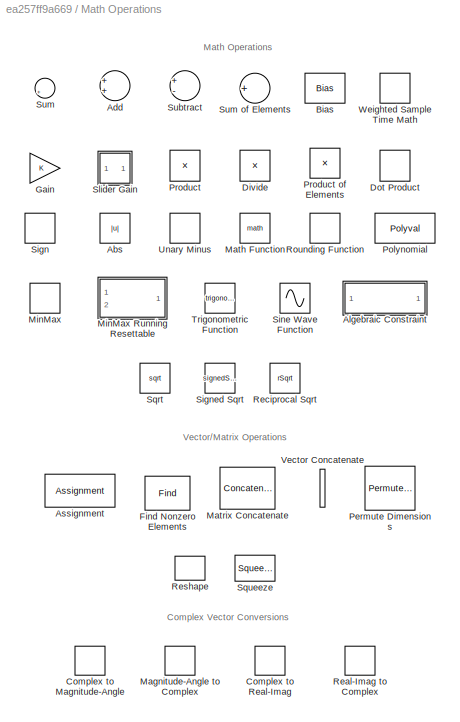
BLOCK [SubSystem] Math Operations
  Ports = []
  RequestExecContextInheritance = off
BLOCK [Abs] Math Operations/Abs
  SaturateOnIntegerOverflow = off
BLOCK [Sum] Math Operations/Add
  InputSameDT = off
  OutDataTypeStr = Inherit: Inherit via internal rule
  Ports = [2, 1]
  SaturateOnIntegerOverflow = off
BLOCK [SubSystem] Math Operations/Algebraic Constraint
  Ports = [1, 1]
  RequestExecContextInheritance = off
BLOCK [InitialCondition] Math Operations/Algebraic Constraint/Initial Guess
  Value = z0
BLOCK [Sum] Math Operations/Algebraic Constraint/Sum
  DisableCoverage = on
  IconShape = round
  Inputs = |++
  Ports = [2, 1]
BLOCK [Inport] Math Operations/Algebraic Constraint/f(z)
  IconDisplay = Port number
BLOCK [Outport] Math Operations/Algebraic Constraint/z
  IconDisplay = Port number
BLOCK [Assignment] Math Operations/Assignment
  DiagnosticForDimensions = Warning
  Ports = [2, 1]
BLOCK [Bias] Math Operations/Bias
  Bias = 0.0
  SaturateOnIntegerOverflow = off
BLOCK [ComplexToMagnitudeAngle] Math Operations/Complex to Magnitude-Angle
  Ports = [1, 2]
BLOCK [ComplexToRealImag] Math Operations/Complex to Real-Imag
  Ports = [1, 2]
BLOCK [Product] Math Operations/Divide
  InputSameDT = off
  Inputs = */
  OutDataTypeStr = Inherit: Inherit via internal rule
  Ports = [2, 1]
  RndMeth = Floor
  SaturateOnIntegerOverflow = off
BLOCK [DotProduct] Math Operations/Dot Product
  OutDataTypeStr = Inherit: Inherit via internal rule
BLOCK [Find] Math Operations/Find Nonzero Elements
  IndexMode = Zero-based
  NumberOfInputDimensions = 3
  Ports = [1, 1]
BLOCK [Gain] Math Operations/Gain
  OutDataTypeStr = Inherit: Inherit via internal rule
  ParamDataTypeStr = Inherit: Inherit via internal rule
  SaturateOnIntegerOverflow = off
BLOCK [MagnitudeAngleToComplex] Math Operations/Magnitude-Angle to Complex
  Ports = [2, 1]
BLOCK [Math] Math Operations/Math Function
  Ports = [1, 1]
BLOCK [Concatenate] Math Operations/Matrix Concatenate
  ConcatenateDimension = 2
  Mode = Multidimensional array
  Ports = [2, 1]
BLOCK [MinMax] Math Operations/MinMax
  InputSameDT = off
  Ports = [1, 1]
  SaturateOnIntegerOverflow = off
BLOCK [SubSystem] Math Operations/MinMax Running Resettable
  Ports = [2, 1]
  RequestExecContextInheritance = off
BLOCK [DataTypeDuplicate] Math Operations/MinMax Running Resettable/Data Type Duplicate
  DisableCoverage = on
  NumInputPorts = 3
  Ports = [3]
BLOCK [MinMax] Math Operations/MinMax Running Resettable/MinMax
  DisableCoverage = on
  InputSameDT = off
  Inputs = 2
  LockScale = on
  OutDataTypeStr = Inherit: Inherit via back propagation
  Ports = [2, 1]
  SaturateOnIntegerOverflow = off
  ZeroCross = off
BLOCK [Inport] Math Operations/MinMax Running Resettable/R
  IconDisplay = Port number
  Port = 2
BLOCK [Reference] Math Operations/MinMax Running Resettable/Unit Delay With Preview Resettable  REF=simulink/Additional Math
& Discrete/Additional
Discrete/Unit Delay
With Preview
Resettable
  Ports = [2, 2]
  SourceBlock = simulink/Additional Math\n& Discrete/Additional\nDiscrete/Unit Delay\nWith Preview\nResettable
  SourceType = Unit Delay With Preview Resettable
  tsamp = -1
  vinit = vinit
BLOCK [Inport] Math Operations/MinMax Running Resettable/u
  IconDisplay = Port number
BLOCK [Outport] Math Operations/MinMax Running Resettable/y
  IconDisplay = Port number
BLOCK [PermuteDimensions] Math Operations/Permute Dimensions
BLOCK [Polyval] Math Operations/Polynomial
  Coefs = [ +2.081618890e-019, -1.441693666e-014, +4.719686976e-010, -8.536869453e-006, +1.621573104e-001, -8.087801117e+001 ]
BLOCK [Product] Math Operations/Product
  InputSameDT = off
  OutDataTypeStr = Inherit: Inherit via internal rule
  Ports = [2, 1]
  RndMeth = Floor
  SaturateOnIntegerOverflow = off
BLOCK [Product] Math Operations/Product of Elements
  InputSameDT = off
  Inputs = *
  OutDataTypeStr = Inherit: Inherit via internal rule
  Ports = [1, 1]
  RndMeth = Floor
  SaturateOnIntegerOverflow = off
BLOCK [RealImagToComplex] Math Operations/Real-Imag to Complex
  Ports = [2, 1]
BLOCK [Sqrt] Math Operations/Reciprocal Sqrt
  Operator = rSqrt
BLOCK [Reshape] Math Operations/Reshape
  Ports = [1, 1]
BLOCK [Rounding] Math Operations/Rounding Function
BLOCK [Signum] Math Operations/Sign
BLOCK [Sqrt] Math Operations/Signed Sqrt
  Operator = signedSqrt
BLOCK [Sin] Math Operations/Sine Wave Function
  Ports = [1, 1]
  SampleTime = 0
  TimeSource = Use external signal
BLOCK [SubSystem] Math Operations/Slider Gain
  CloseFcn = slideg Close
  CopyFcn = slideg Copy
  DeleteFcn = slideg DeleteBlock
  LoadFcn = slideg Load
  NameChangeFcn = slideg NameChange
  OpenFcn = slideg Open
  ParentCloseFcn = slideg ParentClose
  Ports = [1, 1]
  RequestExecContextInheritance = off
  StartFcn = slideg StartFcn
  StopFcn = slideg StopFcn
BLOCK [Gain] Math Operations/Slider Gain/Slider Gain
  Gain = gain
BLOCK [Inport] Math Operations/Slider Gain/u
  IconDisplay = Port number
BLOCK [Outport] Math Operations/Slider Gain/y
  IconDisplay = Port number
BLOCK [Sqrt] Math Operations/Sqrt
BLOCK [Squeeze] Math Operations/Squeeze
BLOCK [Sum] Math Operations/Subtract
  InputSameDT = off
  Inputs = +-
  OutDataTypeStr = Inherit: Inherit via internal rule
  Ports = [2, 1]
  SaturateOnIntegerOverflow = off
BLOCK [Sum] Math Operations/Sum
  CopyFcn = set_param(gcbh,'ShowName','off','CopyFcn','')
  IconShape = round
  InputSameDT = off
  Inputs = |++
  OutDataTypeStr = Inherit: Inherit via internal rule
  Ports = [2, 1]
  SaturateOnIntegerOverflow = off
BLOCK [Sum] Math Operations/Sum of Elements
  InputSameDT = off
  Inputs = +
  OutDataTypeStr = Inherit: Inherit via internal rule
  Ports = [1, 1]
  SaturateOnIntegerOverflow = off
BLOCK [Trigonometry] Math Operations/Trigonometric Function
  Ports = [1, 1]
BLOCK [UnaryMinus] Math Operations/Unary Minus
BLOCK [Concatenate] Math Operations/Vector Concatenate
  Ports = [2, 1]
BLOCK [SampleTimeMath] Math Operations/Weighted Sample Time Math
BLOCK [SubSystem] Model Verification
  Ports = []
  RequestExecContextInheritance = off
BLOCK [Assertion] Model Verification/Assertion
BLOCK [SubSystem] Model Verification/Check Discrete Gradient
  Description = | du / dt | < 1
  Ports = [1]
  RequestExecContextInheritance = off
BLOCK [Assertion] Model Verification/Check Discrete Gradient/Assertion
  AssertionFailFcn = evalin('base',callback)
  DisableCoverage = on
BLOCK [DataTypeConversion] Model Verification/Check Discrete Gradient/Data Type Conversion1
  DisableCoverage = on
BLOCK [Demux] Model Verification/Check Discrete Gradient/Demux
  DisableCoverage = on
  Outputs = 2
  Ports = [1, 2]
BLOCK [InitialCondition] Model Verification/Check Discrete Gradient/IC
  DisableCoverage = on
BLOCK [Sum] Model Verification/Check Discrete Gradient/Sum
  DisableCoverage = on
  IconShape = round
  Inputs = |+-
  Ports = [2, 1]
BLOCK [Logic] Model Verification/Check Discrete Gradient/conjunction
  DisableCoverage = on
  Ports = [2, 1]
BLOCK [DataTypeConversion] Model Verification/Check Discrete Gradient/conversion
  DisableCoverage = on
BLOCK [Gain] Model Verification/Check Discrete Gradient/expander
  DisableCoverage = on
  Gain = [1 1]
BLOCK [RelationalOperator] Model Verification/Check Discrete Gradient/fall_relop
  DisableCoverage = on
  Operator = <
  Ports = [2, 1]
BLOCK [Gain] Model Verification/Check Discrete Gradient/falling
  DisableCoverage = on
  Gain = -1
BLOCK [DataTypeConversion] Model Verification/Check Discrete Gradient/gradient_type
  DisableCoverage = on
BLOCK [Constant] Model Verification/Check Discrete Gradient/gradient_val
  DisableCoverage = on
  Value = gradient
BLOCK [Memory] Model Verification/Check Discrete Gradient/memory
  DisableCoverage = on
  InheritSampleTime = on
BLOCK [Terminator] Model Verification/Check Discrete Gradient/out
BLOCK [RelationalOperator] Model Verification/Check Discrete Gradient/rise_relop
  DisableCoverage = on
  Operator = <
  Ports = [2, 1]
BLOCK [Gain] Model Verification/Check Discrete Gradient/rising
  DisableCoverage = on
BLOCK [Inport] Model Verification/Check Discrete Gradient/u
  IconDisplay = Port number
BLOCK [SubSystem] Model Verification/Check Dynamic Gap
  Description = sig < min || max < sig
  Ports = [3]
  RequestExecContextInheritance = off
BLOCK [Assertion] Model Verification/Check Dynamic Gap/Assertion
  AssertionFailFcn = evalin('base',callback)
  DisableCoverage = on
BLOCK [Logic] Model Verification/Check Dynamic Gap/disjunction
  DisableCoverage = on
  Operator = OR
  Ports = [2, 1]
BLOCK [Inport] Model Verification/Check Dynamic Gap/max
  IconDisplay = Port number
BLOCK [RelationalOperator] Model Verification/Check Dynamic Gap/max_relop
  DisableCoverage = on
  InputSameDT = off
  Operator = <
  Ports = [2, 1]
BLOCK [Inport] Model Verification/Check Dynamic Gap/min
  IconDisplay = Port number
  Port = 2
BLOCK [RelationalOperator] Model Verification/Check Dynamic Gap/min_relop
  DisableCoverage = on
  InputSameDT = off
  Operator = <
  Ports = [2, 1]
BLOCK [Terminator] Model Verification/Check Dynamic Gap/out
BLOCK [Inport] Model Verification/Check Dynamic Gap/u
  IconDisplay = Port number
  Port = 3
BLOCK [SubSystem] Model Verification/Check Dynamic Lower Bound
  Description = min < sig
  Ports = [2]
  RequestExecContextInheritance = off
BLOCK [Assertion] Model Verification/Check Dynamic Lower Bound/Assertion
  AssertionFailFcn = evalin('base',callback)
  DisableCoverage = on
BLOCK [Inport] Model Verification/Check Dynamic Lower Bound/min
  DisableCoverage = on
  IconDisplay = Port number
BLOCK [RelationalOperator] Model Verification/Check Dynamic Lower Bound/min_relop
  DisableCoverage = on
  InputSameDT = off
  Operator = <
  Ports = [2, 1]
BLOCK [Terminator] Model Verification/Check Dynamic Lower Bound/out
BLOCK [Inport] Model Verification/Check Dynamic Lower Bound/u
  IconDisplay = Port number
  Port = 2
BLOCK [SubSystem] Model Verification/Check Dynamic Range
  Description = min < sig < max
  Ports = [3]
  RequestExecContextInheritance = off
BLOCK [Assertion] Model Verification/Check Dynamic Range/Assertion
  AssertionFailFcn = evalin('base',callback)
  DisableCoverage = on
BLOCK [Logic] Model Verification/Check Dynamic Range/conjunction
  DisableCoverage = on
  Ports = [2, 1]
BLOCK [Inport] Model Verification/Check Dynamic Range/max
  IconDisplay = Port number
BLOCK [RelationalOperator] Model Verification/Check Dynamic Range/max_relop
  DisableCoverage = on
  InputSameDT = off
  Operator = <
  Ports = [2, 1]
BLOCK [Inport] Model Verification/Check Dynamic Range/min
  IconDisplay = Port number
  Port = 2
BLOCK [RelationalOperator] Model Verification/Check Dynamic Range/min_relop
  DisableCoverage = on
  InputSameDT = off
  Operator = <
  Ports = [2, 1]
BLOCK [Terminator] Model Verification/Check Dynamic Range/out
BLOCK [Inport] Model Verification/Check Dynamic Range/u
  IconDisplay = Port number
  Port = 3
BLOCK [SubSystem] Model Verification/Check Dynamic Upper Bound
  Description = sig < max
  Ports = [2]
  RequestExecContextInheritance = off
BLOCK [Assertion] Model Verification/Check Dynamic Upper Bound/Assertion
  AssertionFailFcn = evalin('base',callback)
  DisableCoverage = on
BLOCK [Inport] Model Verification/Check Dynamic Upper Bound/max
  IconDisplay = Port number
BLOCK [RelationalOperator] Model Verification/Check Dynamic Upper Bound/max_relop
  DisableCoverage = on
  InputSameDT = off
  Operator = <
  Ports = [2, 1]
BLOCK [Terminator] Model Verification/Check Dynamic Upper Bound/out
BLOCK [Inport] Model Verification/Check Dynamic Upper Bound/u
  IconDisplay = Port number
  Port = 2
BLOCK [SubSystem] Model Verification/Check Input Resolution
  Description = -Inf < u < +Inf
  Ports = [1]
  RequestExecContextInheritance = off
BLOCK [Assertion] Model Verification/Check Input Resolution/Assertion
  AssertionFailFcn = evalin('base',callback)
  DisableCoverage = on
BLOCK [Terminator] Model Verification/Check Input Resolution/dead_out
BLOCK [Constant] Model Verification/Check Input Resolution/dead_resolution
  DisableCoverage = on
  Value = [1 1]
BLOCK [Constant] Model Verification/Check Input Resolution/dead_u
  DisableCoverage = on
BLOCK [SubSystem] Model Verification/Check Input Resolution/fixed
  DisableCoverage = on
  Ports = [2, 1]
  RequestExecContextInheritance = off
BLOCK [Logic] Model Verification/Check Input Resolution/fixed/fold
  DisableCoverage = on
  Inputs = 1
  Operator = OR
  Ports = [1, 1]
BLOCK [Outport] Model Verification/Check Input Resolution/fixed/out
  IconDisplay = Port number
BLOCK [RelationalOperator] Model Verification/Check Input Resolution/fixed/relop
  DisableCoverage = on
  Operator = ==
  Ports = [2, 1]
BLOCK [Inport] Model Verification/Check Input Resolution/fixed/resolution
  IconDisplay = Port number
  Port = 2
BLOCK [Inport] Model Verification/Check Input Resolution/fixed/u
  IconDisplay = Port number
BLOCK [Terminator] Model Verification/Check Input Resolution/out
BLOCK [Constant] Model Verification/Check Input Resolution/resolution
  DisableCoverage = on
  Value = resolution
BLOCK [DataTypeConversion] Model Verification/Check Input Resolution/resolution_type
  DisableCoverage = on
BLOCK [SubSystem] Model Verification/Check Input Resolution/steps
  DisableCoverage = on
  Ports = [2, 1]
  RequestExecContextInheritance = off
BLOCK [Outport] Model Verification/Check Input Resolution/steps/out
  IconDisplay = Port number
BLOCK [RelationalOperator] Model Verification/Check Input Resolution/steps/relop
  DisableCoverage = on
  Operator = <=
  Ports = [2, 1]
BLOCK [Math] Model Verification/Check Input Resolution/steps/rem
  DisableCoverage = on
  Operator = mod
  Ports = [2, 1]
BLOCK [Inport] Model Verification/Check Input Resolution/steps/resolution
  IconDisplay = Port number
  Port = 2
BLOCK [Constant] Model Verification/Check Input Resolution/steps/tol
  DisableCoverage = on
  Value = 10e-3
BLOCK [Inport] Model Verification/Check Input Resolution/steps/u
  IconDisplay = Port number
BLOCK [Inport] Model Verification/Check Input Resolution/u
  IconDisplay = Port number
BLOCK [SubSystem] Model Verification/Check Static Gap
  Description = u <= 0 || 100 <= u
  Ports = [1]
  RequestExecContextInheritance = off
BLOCK [Assertion] Model Verification/Check Static Gap/Assertion
  AssertionFailFcn = evalin('base',callback)
  DisableCoverage = on
BLOCK [Logic] Model Verification/Check Static Gap/disjunction
  DisableCoverage = on
  Operator = OR
  Ports = [2, 1]
BLOCK [RelationalOperator] Model Verification/Check Static Gap/max_relop
  DisableCoverage = on
  InputSameDT = off
  Operator = <=
  Ports = [2, 1]
BLOCK [Constant] Model Verification/Check Static Gap/max_val
  DisableCoverage = on
  Value = max
BLOCK [RelationalOperator] Model Verification/Check Static Gap/min_relop
  DisableCoverage = on
  InputSameDT = off
  Operator = <=
  Ports = [2, 1]
BLOCK [Constant] Model Verification/Check Static Gap/min_val
  DisableCoverage = on
  Value = min
BLOCK [Terminator] Model Verification/Check Static Gap/out
BLOCK [Inport] Model Verification/Check Static Gap/u
  IconDisplay = Port number
BLOCK [SubSystem] Model Verification/Check Static Lower Bound
  Description = 0 <= u
  Ports = [1]
  RequestExecContextInheritance = off
BLOCK [Assertion] Model Verification/Check Static Lower Bound/Assertion
  AssertionFailFcn = evalin('base',callback)
  DisableCoverage = on
BLOCK [RelationalOperator] Model Verification/Check Static Lower Bound/min_relop
  DisableCoverage = on
  InputSameDT = off
  Operator = <=
  Ports = [2, 1]
BLOCK [Constant] Model Verification/Check Static Lower Bound/min_val
  DisableCoverage = on
  Value = min
BLOCK [Terminator] Model Verification/Check Static Lower Bound/out
BLOCK [Inport] Model Verification/Check Static Lower Bound/u
  IconDisplay = Port number
BLOCK [SubSystem] Model Verification/Check Static Range
  Description = 0 <= u <= 100
  Ports = [1]
  RequestExecContextInheritance = off
BLOCK [Assertion] Model Verification/Check Static Range/Assertion
  AssertionFailFcn = evalin('base',callback)
  DisableCoverage = on
BLOCK [Logic] Model Verification/Check Static Range/conjunction
  DisableCoverage = on
  Ports = [2, 1]
BLOCK [RelationalOperator] Model Verification/Check Static Range/max_relop
  DisableCoverage = on
  InputSameDT = off
  Operator = <=
  Ports = [2, 1]
BLOCK [Constant] Model Verification/Check Static Range/max_val
  DisableCoverage = on
  Value = max
BLOCK [RelationalOperator] Model Verification/Check Static Range/min_relop
  DisableCoverage = on
  InputSameDT = off
  Operator = <=
  Ports = [2, 1]
BLOCK [Constant] Model Verification/Check Static Range/min_val
  DisableCoverage = on
  Value = min
BLOCK [Terminator] Model Verification/Check Static Range/out
BLOCK [Inport] Model Verification/Check Static Range/u
  IconDisplay = Port number
BLOCK [SubSystem] Model Verification/Check Static Upper Bound
  Description = u <= 0
  Ports = [1]
  RequestExecContextInheritance = off
BLOCK [Assertion] Model Verification/Check Static Upper Bound/Assertion
  AssertionFailFcn = evalin('base',callback)
  DisableCoverage = on
BLOCK [RelationalOperator] Model Verification/Check Static Upper Bound/max_relop
  DisableCoverage = on
  InputSameDT = off
  Operator = <=
  Ports = [2, 1]
BLOCK [Constant] Model Verification/Check Static Upper Bound/max_val
  DisableCoverage = on
  Value = max
BLOCK [Terminator] Model Verification/Check Static Upper Bound/out
BLOCK [Inport] Model Verification/Check Static Upper Bound/u
  IconDisplay = Port number
BLOCK [SubSystem] Model-Wide Utilities
  Ports = []
  RequestExecContextInheritance = off
BLOCK [SubSystem] Model-Wide Utilities/Block Support Table
  OpenFcn = showblockdatatypetable
  Ports = []
  RequestExecContextInheritance = off
BLOCK [SubSystem] Model-Wide Utilities/Block Support Table/EmptySubsystem
  Ports = []
  RequestExecContextInheritance = off
BLOCK [SubSystem] Model-Wide Utilities/DocBlock
  DeleteFcn = docblock('close_document',gcb);
  InitFcn = docblock('save_document',gcb);
  MaskHideContents = on
  OpenFcn = docblock('edit_document',gcb);
  Ports = []
  PreSaveFcn = docblock('save_document',gcb);
  RequestExecContextInheritance = off
  UserDataPersistent = on
BLOCK [SubSystem] Model-Wide Utilities/DocBlock/EmptySubsystem
  Ports = []
  RequestExecContextInheritance = off
BLOCK [SubSystem] Model-Wide Utilities/Model Info
  CopyFcn = slcm CopyBlock;
  DeleteFcn = slcm Cancel;
  InitFcn = slcm('UpdateAllCMBlocksInThisModelInit')
  LoadFcn = slcm LoadBlock;
  NameChangeFcn = slcm Rename;
  OpenFcn = slcm
  Ports = []
  PostSaveFcn = slcm('UpdateAllCMBlocksInThisModel')
  RequestExecContextInheritance = off
BLOCK [SubSystem] Model-Wide Utilities/Model Info/EmptySubsystem
  Ports = []
  RequestExecContextInheritance = off
BLOCK [SubSystem] Model-Wide Utilities/Timed-Based Linearization
  Ports = []
  RequestExecContextInheritance = off
BLOCK [Clock] Model-Wide Utilities/Timed-Based Linearization/Clock
  DisableCoverage = on
BLOCK [Constant] Model-Wide Utilities/Timed-Based Linearization/Constant
  DisableCoverage = on
  Value = LinearizationTime
BLOCK [Sum] Model-Wide Utilities/Timed-Based Linearization/Sum
  DisableCoverage = on
  IconShape = round
  Inputs = -+
  Ports = [2, 1]
BLOCK [SubSystem] Model-Wide Utilities/Timed-Based Linearization/Triggered Linearization
  DisableCoverage = on
  Ports = [0, 0, 0, 1]
  RequestExecContextInheritance = off
  TreatAsAtomicUnit = on
BLOCK [M-S-Function] Model-Wide Utilities/Timed-Based Linearization/Triggered Linearization/MATLAB S-Function
  DisableCoverage = on
  FunctionName = sfunlin
  Parameters = name_,SampleTime
  Ports = []
BLOCK [TriggerPort] Model-Wide Utilities/Timed-Based Linearization/Triggered Linearization/Trigger
  Ports = []
  StatesWhenEnabling = held
BLOCK [SubSystem] Model-Wide Utilities/Trigger-Based Linearization
  Ports = [0, 0, 0, 1]
  RequestExecContextInheritance = off
  TreatAsAtomicUnit = on
BLOCK [M-S-Function] Model-Wide Utilities/Trigger-Based Linearization/MATLAB S-Function
  DisableCoverage = on
  FunctionName = sfunlin
  Parameters = name_,SampleTime
  Ports = []
BLOCK [TriggerPort] Model-Wide Utilities/Trigger-Based Linearization/Trigger
  Ports = []
  StatesWhenEnabling = held
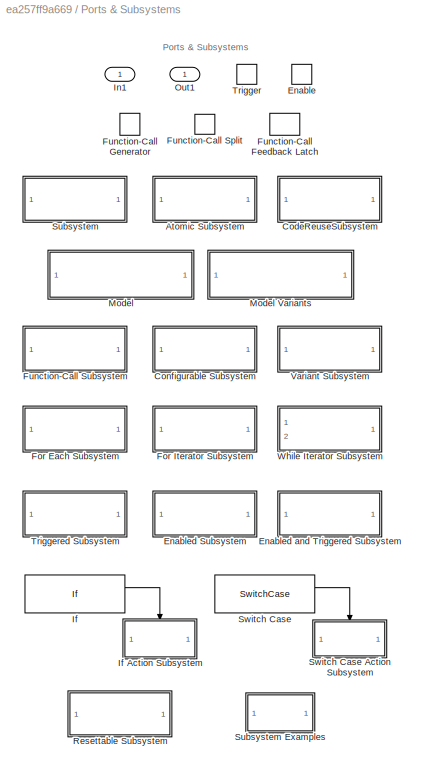
BLOCK [SubSystem] Ports & Subsystems
  Ports = [1, 1, 1, 1]
  RequestExecContextInheritance = off
  TreatAsAtomicUnit = on
BLOCK [SubSystem] Ports & Subsystems/Atomic Subsystem
  OpenFcn = open_system(gcbh,'force')
  Ports = [1, 1]
  RequestExecContextInheritance = off
  TreatAsAtomicUnit = on
BLOCK [Inport] Ports & Subsystems/Atomic Subsystem/In1
  IconDisplay = Port number
BLOCK [Outport] Ports & Subsystems/Atomic Subsystem/Out1
  IconDisplay = Port number
BLOCK [SubSystem] Ports & Subsystems/CodeReuseSubsystem
  OpenFcn = open_system(gcb,'force')
  Ports = [1, 1]
  RTWFcnNameOpts = Use subsystem name
  RTWFileNameOpts = Use function name
  RTWSystemCode = Reusable function
  RequestExecContextInheritance = off
  TreatAsAtomicUnit = on
BLOCK [Inport] Ports & Subsystems/CodeReuseSubsystem/In1
  IconDisplay = Port number
BLOCK [Outport] Ports & Subsystems/CodeReuseSubsystem/Out1
  IconDisplay = Port number
BLOCK [SubSystem] Ports & Subsystems/Configurable Subsystem
  Ports = []
  RequestExecContextInheritance = off
  TemplateBlock = master
BLOCK [EnablePort] Ports & Subsystems/Enable
  Ports = []
BLOCK [SubSystem] Ports & Subsystems/Enabled Subsystem
  OpenFcn = open_system(gcbh,'force')
  Ports = [1, 1, 1]
  RequestExecContextInheritance = off
  TreatAsAtomicUnit = on
BLOCK [EnablePort] Ports & Subsystems/Enabled Subsystem/Enable
  Ports = []
BLOCK [Inport] Ports & Subsystems/Enabled Subsystem/In1
  IconDisplay = Port number
BLOCK [Outport] Ports & Subsystems/Enabled Subsystem/Out1
  IconDisplay = Port number
BLOCK [SubSystem] Ports & Subsystems/Enabled and Triggered Subsystem
  OpenFcn = open_system(gcbh,'force')
  Ports = [1, 1, 1, 1]
  RequestExecContextInheritance = off
  TreatAsAtomicUnit = on
BLOCK [EnablePort] Ports & Subsystems/Enabled and Triggered Subsystem/Enable
  Ports = []
BLOCK [Inport] Ports & Subsystems/Enabled and Triggered Subsystem/In1
  IconDisplay = Port number
BLOCK [Outport] Ports & Subsystems/Enabled and Triggered Subsystem/Out1
  IconDisplay = Port number
BLOCK [TriggerPort] Ports & Subsystems/Enabled and Triggered Subsystem/Trigger
  Ports = []
  StatesWhenEnabling = held
BLOCK [SubSystem] Ports & Subsystems/For Each Subsystem
  OpenFcn = open_system(gcbh,'force')
  Ports = [1, 1]
  RequestExecContextInheritance = off
  TreatAsAtomicUnit = on
BLOCK [ForEach] Ports & Subsystems/For Each Subsystem/For Each
  DisableCoverage = on
  IndexMode = One-based
  Ports = []
BLOCK [Inport] Ports & Subsystems/For Each Subsystem/In1
  IconDisplay = Port number
  Partition = on
  PartitionDimension = 1
  PartitionWidth = 1
BLOCK [Outport] Ports & Subsystems/For Each Subsystem/Out1
  ConcatenationDimension = 1
  IconDisplay = Port number
BLOCK [SubSystem] Ports & Subsystems/For Iterator Subsystem
  OpenFcn = open_system(gcbh,'force')
  Ports = [1, 1]
  RequestExecContextInheritance = off
  TreatAsAtomicUnit = on
BLOCK [ForIterator] Ports & Subsystems/For Iterator Subsystem/For Iterator
  Ports = [0, 1]
BLOCK [Inport] Ports & Subsystems/For Iterator Subsystem/In1
  IconDisplay = Port number
BLOCK [Outport] Ports & Subsystems/For Iterator Subsystem/Out1
  IconDisplay = Port number
BLOCK [FunctionCallFeedbackLatch] Ports & Subsystems/Function-Call Feedback Latch
  InputPortMap = u0
  OutputPortMap = o0
  Ports = [1, 1]
BLOCK [S-Function] Ports & Subsystems/Function-Call Generator
  FunctionName = fcncallgen
  Parameters = sample_time,numberOfIterations
  Ports = [0, 1]
BLOCK [FunctionCallSplit] Ports & Subsystems/Function-Call Split
  CopyFcn = set_param(gcbh,'ShowName','off','CopyFcn','')
BLOCK [SubSystem] Ports & Subsystems/Function-Call Subsystem
  OpenFcn = open_system(gcbh,'force')
  Ports = [1, 1, 0, 1]
  RequestExecContextInheritance = off
  TreatAsAtomicUnit = on
BLOCK [Inport] Ports & Subsystems/Function-Call Subsystem/In1
  IconDisplay = Port number
BLOCK [Outport] Ports & Subsystems/Function-Call Subsystem/Out1
  IconDisplay = Port number
BLOCK [TriggerPort] Ports & Subsystems/Function-Call Subsystem/function
  Ports = []
  StatesWhenEnabling = held
  TriggerType = function-call
BLOCK [If] Ports & Subsystems/If
  Ports = [1, 2]
BLOCK [SubSystem] Ports & Subsystems/If Action Subsystem
  OpenFcn = open_system(gcbh,'force')
  Ports = [1, 1, 0, 0, 0, 0, 0, 1]
  RequestExecContextInheritance = off
  TreatAsAtomicUnit = on
BLOCK [ActionPort] Ports & Subsystems/If Action Subsystem/Action Port
  ActionType = then
BLOCK [Inport] Ports & Subsystems/If Action Subsystem/In1
  IconDisplay = Port number
BLOCK [Outport] Ports & Subsystems/If Action Subsystem/Out1
  IconDisplay = Port number
BLOCK [Inport] Ports & Subsystems/In1
  IconDisplay = Port number
BLOCK [ModelReference] Ports & Subsystems/Model
  DefaultDataLogging = on
  Ports = []
BLOCK [ModelReference] Ports & Subsystems/Model Variants
  AttributesFormatString = %<ActiveVariant>
  DefaultDataLogging = on
  Ports = []
  Variant = on
BLOCK [Outport] Ports & Subsystems/Out1
  IconDisplay = Port number
BLOCK [SubSystem] Ports & Subsystems/Resettable Subsystem
  OpenFcn = open_system(gcbh,'force')
  Ports = [1, 1, 0, 0, 0, 0, 0, 0, 1]
  RequestExecContextInheritance = off
  TreatAsAtomicUnit = on
BLOCK [Inport] Ports & Subsystems/Resettable Subsystem/In1
  IconDisplay = Port number
BLOCK [Outport] Ports & Subsystems/Resettable Subsystem/Out1
  IconDisplay = Port number
BLOCK [ResetPort] Ports & Subsystems/Resettable Subsystem/Reset
  DisableCoverage = on
BLOCK [SubSystem] Ports & Subsystems/Subsystem
  OpenFcn = open_system(gcbh,'force')
  Ports = [1, 1]
  RequestExecContextInheritance = off
BLOCK [SubSystem] Ports & Subsystems/Subsystem Examples
  OpenFcn = open_system('sl_subsys_semantics','force')
  Ports = []
  RequestExecContextInheritance = off
BLOCK [Gain] Ports & Subsystems/Subsystem Examples/Gain
BLOCK [Inport] Ports & Subsystems/Subsystem/In1
  IconDisplay = Port number
BLOCK [Outport] Ports & Subsystems/Subsystem/Out1
  IconDisplay = Port number
BLOCK [SwitchCase] Ports & Subsystems/Switch Case
  Ports = [1, 2]
BLOCK [SubSystem] Ports & Subsystems/Switch Case Action Subsystem
  OpenFcn = open_system(gcbh,'force')
  Ports = [1, 1, 0, 0, 0, 0, 0, 1]
  RequestExecContextInheritance = off
  TreatAsAtomicUnit = on
BLOCK [ActionPort] Ports & Subsystems/Switch Case Action Subsystem/Action Port
  ActionType = case
BLOCK [Inport] Ports & Subsystems/Switch Case Action Subsystem/In1
  IconDisplay = Port number
BLOCK [Outport] Ports & Subsystems/Switch Case Action Subsystem/Out1
  IconDisplay = Port number
BLOCK [TriggerPort] Ports & Subsystems/Trigger
  PortDimensions = 1
  Ports = []
  StatesWhenEnabling = held
BLOCK [SubSystem] Ports & Subsystems/Triggered Subsystem
  OpenFcn = open_system(gcbh,'force')
  Ports = [1, 1, 0, 1]
  RequestExecContextInheritance = off
  TreatAsAtomicUnit = on
BLOCK [Inport] Ports & Subsystems/Triggered Subsystem/In1
  IconDisplay = Port number
BLOCK [Outport] Ports & Subsystems/Triggered Subsystem/Out1
  IconDisplay = Port number
BLOCK [TriggerPort] Ports & Subsystems/Triggered Subsystem/Trigger
  Ports = []
  StatesWhenEnabling = held
BLOCK [SubSystem] Ports & Subsystems/Variant Subsystem
  Ports = [1, 1]
  RequestExecContextInheritance = off
  Variant = on
BLOCK [Inport] Ports & Subsystems/Variant Subsystem/In1
  IconDisplay = Port number
BLOCK [Outport] Ports & Subsystems/Variant Subsystem/Out1
  IconDisplay = Port number
BLOCK [SubSystem] Ports & Subsystems/While Iterator Subsystem
  OpenFcn = open_system(gcbh,'force')
  Ports = [2, 1]
  RequestExecContextInheritance = off
  TreatAsAtomicUnit = on
BLOCK [Inport] Ports & Subsystems/While Iterator Subsystem/IC
  IconDisplay = Port number
  Port = 2
BLOCK [Inport] Ports & Subsystems/While Iterator Subsystem/In1
  IconDisplay = Port number
BLOCK [Outport] Ports & Subsystems/While Iterator Subsystem/Out1
  IconDisplay = Port number
BLOCK [WhileIterator] Ports & Subsystems/While Iterator Subsystem/While Iterator
  Ports = [2]
BLOCK [SubSystem] Signal Attributes
  Ports = []
  RequestExecContextInheritance = off
BLOCK [BusToVector] Signal Attributes/Bus to Vector
BLOCK [DataTypeConversion] Signal Attributes/Data Type Conversion
  RndMeth = Floor
  SaturateOnIntegerOverflow = off
BLOCK [SubSystem] Signal Attributes/Data Type Conversion Inherited
  Ports = [2, 1]
  RequestExecContextInheritance = off
BLOCK [DataTypeConversion] Signal Attributes/Data Type Conversion Inherited/Conversion
  LockScale = on
  RndMeth = Floor
  SaturateOnIntegerOverflow = off
BLOCK [Inport] Signal Attributes/Data Type Conversion Inherited/DTS reference
  IconDisplay = Port number
BLOCK [DataTypeDuplicate] Signal Attributes/Data Type Conversion Inherited/Data Type Duplicate
  DisableCoverage = on
  Ports = [2]
BLOCK [Inport] Signal Attributes/Data Type Conversion Inherited/u
  IconDisplay = Port number
  Port = 2
BLOCK [Outport] Signal Attributes/Data Type Conversion Inherited/y
  IconDisplay = Port number
BLOCK [DataTypeDuplicate] Signal Attributes/Data Type Duplicate
  Ports = [2]
BLOCK [S-Function] Signal Attributes/Data Type Propagation
  FunctionName = sfix_dtprop
  Parameters = 14,PropDataTypeMode,(getdatatypespecs(PropDataType,PropScaling,DblOver,0, 0, PropDataTypeMode, PropScalingMode)),IfRefDouble,IfRefSingle,IsSigned,NumBitsBase,NumBitsMult,NumBitsAdd,(sort(reshape(round(NumBitsAllowFinal), prod(size(NumBitsAllowFinal)),1))),PropScalingMode,ValuesUsedBestPrec,SlopeBase,SlopeMult,SlopeAdd,BiasBase,BiasMult,BiasAdd,DblOver
  Ports = [3]
BLOCK [SubSystem] Signal Attributes/Data Type Propagation Examples
  OpenFcn = open_system('fixpt_dtprop','force')
  Ports = []
  RequestExecContextInheritance = off
BLOCK [Gain] Signal Attributes/Data Type Propagation Examples/Gain
BLOCK [SubSystem] Signal Attributes/Data Type Scaling Strip
  Ports = [1, 1]
  RequestExecContextInheritance = off
BLOCK [Reference] Signal Attributes/Data Type Scaling Strip/FixPt Data Type Propagation  REF=simulink/Signal
Attributes/Data Type
Propagation
  BiasAdd = 0
  BiasBase = Bias1
  BiasMult = 1
  IfRefDouble = double
  IfRefSingle = single
  IsSigned = IsSigned1
  NumBitsAdd = 0
  NumBitsAllowFinal = [8,16,32,128]
  NumBitsBase = NumBits1
  NumBitsMult = 1
  Ports = [3]
  PropDataType = fixdt(1, 16)
  PropDataTypeMode = Inherit via propagation rule
  PropScaling = 1
  PropScalingMode = Specify via dialog
  SlopeAdd = 1
  SlopeBase = Slope1
  SlopeMult = 0
  SourceBlock = simulink/Signal\nAttributes/Data Type\nPropagation
  SourceType = Data Type Propagation
  ValuesUsedBestPrec = [5 -7]
BLOCK [DataTypeConversion] Signal Attributes/Data Type Scaling Strip/FixPt Gateway Out
  ConvertRealWorld = Stored Integer (SI)
  RndMeth = Floor
  SaturateOnIntegerOverflow = off
BLOCK [Inport] Signal Attributes/Data Type Scaling Strip/u
  IconDisplay = Port number
BLOCK [Outport] Signal Attributes/Data Type Scaling Strip/y
  IconDisplay = Port number
BLOCK [InitialCondition] Signal Attributes/IC
BLOCK [Probe] Signal Attributes/Probe
  Ports = [1, 5]
  ProbeFramedSignal = on
  ProbeSignalDimensions = on
BLOCK [RateTransition] Signal Attributes/Rate Transition
BLOCK [SignalConversion] Signal Attributes/Signal Conversion
BLOCK [SignalSpecification] Signal Attributes/Signal Specification
BLOCK [SampleTimeMath] Signal Attributes/Weighted Sample Time
  TsampMathOp = Ts Only
BLOCK [Width] Signal Attributes/Width
BLOCK [SubSystem] Signal Routing
  Ports = []
  RequestExecContextInheritance = off
BLOCK [BusAssignment] Signal Routing/Bus Assignment
  Ports = [2, 1]
BLOCK [BusCreator] Signal Routing/Bus Creator
  CopyFcn = set_param(gcbh,'ShowName','off','CopyFcn','')
  DisplayOption = bar
  Inputs = 2
  Ports = [2, 1]
BLOCK [BusSelector] Signal Routing/Bus Selector
  CopyFcn = set_param(gcbh,'ShowName','off','CopyFcn','')
  OutputSignals = signal1,signal2
  Ports = [1, 2]
BLOCK [DataStoreMemory] Signal Routing/Data Store Memory
  ReadBeforeWriteMsg = warning
  WriteAfterReadMsg = warning
  WriteAfterWriteMsg = warning
BLOCK [DataStoreRead] Signal Routing/Data Store Read
  Ports = [0, 1]
BLOCK [DataStoreWrite] Signal Routing/Data Store Write
  Ports = [1]
BLOCK [Demux] Signal Routing/Demux
  CopyFcn = set_param(gcbh,'ShowName','off','CopyFcn','')
  DisplayOption = bar
  Outputs = 2
  Ports = [1, 2]
BLOCK [SubSystem] Signal Routing/Environment Controller
  Ports = [2, 1]
  RequestExecContextInheritance = off
BLOCK [Inport] Signal Routing/Environment Controller/Coder
  IconDisplay = Port number
  Port = 2
BLOCK [Switch] Signal Routing/Environment Controller/Environment Switch
  Criteria = u2 ~= 0
  DisableCoverage = on
  SaturateOnIntegerOverflow = off
  ZeroCross = off
BLOCK [SignalConversion] Signal Routing/Environment Controller/Numerical Unity
BLOCK [Outport] Signal Routing/Environment Controller/Out
  IconDisplay = Port number
BLOCK [Inport] Signal Routing/Environment Controller/Sim
  IconDisplay = Port number
BLOCK [Constant] Signal Routing/Environment Controller/Switch Control
  DisableCoverage = on
  OutDataTypeStr = boolean
  Value = switch_mode
BLOCK [From] Signal Routing/From
BLOCK [Goto] Signal Routing/Goto
BLOCK [GotoTagVisibility] Signal Routing/Goto Tag Visibility
BLOCK [MultiPortSwitch] Signal Routing/Index Vector
  DataPortOrder = Zero-based contiguous
  InputSameDT = off
  Inputs = 1
  Ports = [2, 1]
  SaturateOnIntegerOverflow = off
  zeroidx = on
BLOCK [ManualSwitch] Signal Routing/Manual Switch
BLOCK [Merge] Signal Routing/Merge
  Ports = [2, 1]
BLOCK [MultiPortSwitch] Signal Routing/Multiport Switch
  InputSameDT = off
  Ports = [4, 1]
  SaturateOnIntegerOverflow = off
BLOCK [Mux] Signal Routing/Mux
  CopyFcn = set_param(gcbh,'ShowName','off','CopyFcn','')
  DisplayOption = bar
  Inputs = 2
  Ports = [2, 1]
BLOCK [Selector] Signal Routing/Selector
  Indices = [1 3]
  InputPortWidth = 3
  Ports = [1, 1]
BLOCK [Switch] Signal Routing/Switch
  Criteria = u2 > Threshold
  InputSameDT = off
  SaturateOnIntegerOverflow = off
BLOCK [Concatenate] Signal Routing/Vector Concatenate
  Ports = [2, 1]
BLOCK [SubSystem] Sinks
  Ports = [0, 1]
  RequestExecContextInheritance = off
BLOCK [Display] Sinks/Display
  Decimation = 1
  Ports = [1]
BLOCK [Scope] Sinks/Floating Scope
  Floating = on
  NumInputPorts = 1
  Ports = []
BLOCK [Outport] Sinks/Out1
  IconDisplay = Port number
BLOCK [Scope] Sinks/Scope
  Floating = off
  NumInputPorts = 1
  Ports = [1]
BLOCK [Stop] Sinks/Stop Simulation
BLOCK [Terminator] Sinks/Terminator
BLOCK [ToFile] Sinks/To File
  Ports = [1]
  SaveFormat = Timeseries
BLOCK [ToWorkspace] Sinks/To Workspace
  FixptAsFi = on
  MaxDataPoints = inf
  Ports = [1]
  SampleTime = -1
  Save2DSignal = 3-D array (concatenate along third dimension)
  SaveFormat = Timeseries
  VariableName = simout
BLOCK [SubSystem] Sinks/XY Graph
  CopyFcn = sfunxy([],[],[],'CopyBlock')
  DeleteFcn = sfunxy([],[],[],'DeleteBlock')
  LoadFcn = sfunxy([],[],[],'LoadBlock')
  NameChangeFcn = sfunxy([],[],[],'NameChange')
  Ports = [2]
  RequestExecContextInheritance = off
  SimViewingDevice = on
  StartFcn = sfunxy([],[],[],'Start')
  StopFcn = sfunxy([],[],[],'Stop')
  TreatAsAtomicUnit = on
BLOCK [DataTypeConversion] Sinks/XY Graph/Data Type Conversion
  DisableCoverage = on
  OutDataTypeStr = double
  RndMeth = Floor
  SaturateOnIntegerOverflow = off
BLOCK [DataTypeConversion] Sinks/XY Graph/Data Type Conversion1
  DisableCoverage = on
  OutDataTypeStr = double
  RndMeth = Floor
  SaturateOnIntegerOverflow = off
BLOCK [Mux] Sinks/XY Graph/Mux
  Inputs = 2
  Ports = [2, 1]
BLOCK [S-Function] Sinks/XY Graph/sfunxy
  DisableCoverage = on
  FunctionName = sfunxy
  Parameters = [xmin xmax ymin ymax], st
  Ports = [1]
BLOCK [Inport] Sinks/XY Graph/x
  IconDisplay = Port number
BLOCK [Inport] Sinks/XY Graph/y
  IconDisplay = Port number
  Port = 2
BLOCK [SubSystem] Sources
  Ports = [1]
  RequestExecContextInheritance = off
BLOCK [SubSystem] Sources/Band-Limited White Noise
  Ports = [0, 1]
  RequestExecContextInheritance = off
BLOCK [Gain] Sources/Band-Limited White Noise/Output
  Gain = [sqrt(Cov)]/[sqrt(Ts)]
BLOCK [RandomNumber] Sources/Band-Limited White Noise/White Noise
  DisableCoverage = on
  SampleTime = Ts
  Seed = seed
BLOCK [Outport] Sources/Band-Limited White Noise/y
  IconDisplay = Port number
BLOCK [SubSystem] Sources/Chirp Signal
  Ports = [0, 1]
  RequestExecContextInheritance = off
BLOCK [Clock] Sources/Chirp Signal/Clock1
  DisableCoverage = on
BLOCK [Gain] Sources/Chirp Signal/Gain
  DisableCoverage = on
  Gain = 0.5
  SaturateOnIntegerOverflow = off
BLOCK [Trigonometry] Sources/Chirp Signal/Output
  Ports = [1, 1]
BLOCK [Product] Sources/Chirp Signal/Product
  DisableCoverage = on
  Inputs = */
  Ports = [2, 1]
  RndMeth = Floor
BLOCK [Product] Sources/Chirp Signal/Product1
  DisableCoverage = on
  Ports = [2, 1]
  RndMeth = Floor
BLOCK [Product] Sources/Chirp Signal/Product2
  DisableCoverage = on
  Ports = [2, 1]
  RndMeth = Floor
BLOCK [Sum] Sources/Chirp Signal/Sum
  DisableCoverage = on
  IconShape = round
  Inputs = |++
  Ports = [2, 1]
BLOCK [Constant] Sources/Chirp Signal/deltaFreq
  DisableCoverage = on
  Value = 2*pi*(f2-f1)
BLOCK [Constant] Sources/Chirp Signal/initialFreq
  DisableCoverage = on
  Value = 2*pi*f1
BLOCK [Constant] Sources/Chirp Signal/targetTime
  DisableCoverage = on
  Value = T
BLOCK [Outport] Sources/Chirp Signal/y
  IconDisplay = Port number
BLOCK [Clock] Sources/Clock
BLOCK [Constant] Sources/Constant
BLOCK [SubSystem] Sources/Counter Free-Running
  Ports = [0, 1]
  RequestExecContextInheritance = off
BLOCK [Reference] Sources/Counter Free-Running/FixPt Data Type Propagation  REF=simulink/Signal
Attributes/Data Type
Propagation
  BiasAdd = 0
  BiasBase = Bias1
  BiasMult = 1
  IfRefDouble = double
  IfRefSingle = single
  IsSigned = IsSigned1 or IsSigned2
  NumBitsAdd = 0
  NumBitsAllowFinal = 1:128
  NumBitsBase = max([NumBits1 NumBits2])
  NumBitsMult = 1
  Ports = [3]
  PropDataType = uint(NumBits)
  PropDataTypeMode = Specify via dialog
  PropScaling = 1
  PropScalingMode = Specify via dialog
  SlopeAdd = 0
  SlopeBase = min([Slope1 Slope2])
  SlopeMult = 1
  SourceBlock = simulink/Signal\nAttributes/Data Type\nPropagation
  SourceType = Data Type Propagation
  ValuesUsedBestPrec = [5 -7]
BLOCK [SignalSpecification] Sources/Counter Free-Running/Force to be scalar
  Dimensions = 1
  DisableCoverage = on
BLOCK [Reference] Sources/Counter Free-Running/Increment Real World  REF=simulink/Additional Math
& Discrete/Additional Math:
Increment - Decrement/Increment
Real World
  DisableCoverage = on
  Ports = [1, 1]
  SourceBlock = simulink/Additional Math\n& Discrete/Additional Math:\nIncrement - Decrement/Increment\nReal World
  SourceType = Real World Value Increment
BLOCK [UnitDelay] Sources/Counter Free-Running/Output
  InitialCondition = 0.0
  SampleTime = tsamp
BLOCK [Reference] Sources/Counter Free-Running/Wrap To Zero  REF=simulink/Discontinuities/Wrap To Zero
  DisableCoverage = on
  Ports = [1, 1]
  SourceBlock = simulink/Discontinuities/Wrap To Zero
  SourceType = Wrap To Zero
  Threshold = (2^(NumBits))-1
BLOCK [Outport] Sources/Counter Free-Running/y
  IconDisplay = Port number
BLOCK [SubSystem] Sources/Counter Limited
  Ports = [0, 1]
  RequestExecContextInheritance = off
BLOCK [Reference] Sources/Counter Limited/Data Type Propagation  REF=simulink/Signal
Attributes/Data Type
Propagation
  BiasAdd = 0
  BiasBase = Bias1
  BiasMult = 1
  IfRefDouble = double
  IfRefSingle = single
  IsSigned = IsSigned1 or IsSigned2
  NumBitsAdd = 0
  NumBitsAllowFinal = 1:128
  NumBitsBase = max([NumBits1 NumBits2])
  NumBitsMult = 1
  Ports = [3]
  PropDataType = uint(nbits)
  PropDataTypeMode = Specify via dialog
  PropScaling = 1
  PropScalingMode = Specify via dialog
  SlopeAdd = 0
  SlopeBase = min([Slope1 Slope2])
  SlopeMult = 1
  SourceBlock = simulink/Signal\nAttributes/Data Type\nPropagation
  SourceType = Data Type Propagation
  ValuesUsedBestPrec = [5 -7]
BLOCK [SignalSpecification] Sources/Counter Limited/Force to be scalar
  Dimensions = 1
  DisableCoverage = on
BLOCK [Reference] Sources/Counter Limited/Increment Real World  REF=simulink/Additional Math
& Discrete/Additional Math:
Increment - Decrement/Increment
Real World
  DisableCoverage = on
  Ports = [1, 1]
  SourceBlock = simulink/Additional Math\n& Discrete/Additional Math:\nIncrement - Decrement/Increment\nReal World
  SourceType = Real World Value Increment
BLOCK [UnitDelay] Sources/Counter Limited/Output
  InitialCondition = 0.0
  SampleTime = tsamp
BLOCK [Reference] Sources/Counter Limited/Wrap To Zero  REF=simulink/Discontinuities/Wrap To Zero
  DisableCoverage = on
  Ports = [1, 1]
  SourceBlock = simulink/Discontinuities/Wrap To Zero
  SourceType = Wrap To Zero
  Threshold = uplimit
BLOCK [Outport] Sources/Counter Limited/y
  IconDisplay = Port number
BLOCK [DigitalClock] Sources/Digital Clock
BLOCK [SubSystem] Sources/Enumerated Constant
  DialogController = Simulink.DDGSource
  MaskHideContents = on
  PermitHierarchicalResolution = ExplicitOnly
  Ports = [0, 1]
  RequestExecContextInheritance = off
BLOCK [Constant] Sources/Enumerated Constant/Constant
  DialogController = Simulink.DDGSource
  LockScale = on
  OutDataTypeStr = Enum: SlDemoSign
  Value = SlDemoSign.Positive
BLOCK [Outport] Sources/Enumerated Constant/Out
  IconDisplay = Port number
BLOCK [FromFile] Sources/From File
  SampleTime = 0
BLOCK [FromWorkspace] Sources/From Workspace
  SampleTime = 0
  VariableName = simin
  ZeroCross = on
BLOCK [Ground] Sources/Ground
BLOCK [Inport] Sources/In1
  IconDisplay = Port number
BLOCK [DiscretePulseGenerator] Sources/Pulse Generator
  Period = 10
  Ports = [0, 1]
  PulseType = Time based
  PulseWidth = 5
BLOCK [SubSystem] Sources/Ramp
  Ports = [0, 1]
  RequestExecContextInheritance = off
BLOCK [Clock] Sources/Ramp/Clock
  DisableCoverage = on
BLOCK [Constant] Sources/Ramp/Constant
  DisableCoverage = on
  OutDataTypeStr = Inherit: Inherit via back propagation
  Value = start
BLOCK [Constant] Sources/Ramp/Constant1
  DisableCoverage = on
  OutDataTypeStr = Inherit: Inherit via back propagation
  Value = X0
BLOCK [Outport] Sources/Ramp/Out1
  IconDisplay = Port number
BLOCK [Sum] Sources/Ramp/Output
  IconShape = round
  Inputs = |++
  Ports = [2, 1]
BLOCK [Product] Sources/Ramp/Product
  DisableCoverage = on
  Ports = [2, 1]
  RndMeth = Floor
BLOCK [Step] Sources/Ramp/Step
  After = slope
  DisableCoverage = on
  SampleTime = 0
  Time = start
BLOCK [Sum] Sources/Ramp/Sum
  DisableCoverage = on
  IconShape = round
  Inputs = |+-
  Ports = [2, 1]
BLOCK [RandomNumber] Sources/Random Number
  SampleTime = 0.1
BLOCK [SubSystem] Sources/Repeating Sequence
  Ports = [0, 1]
  RequestExecContextInheritance = off
BLOCK [SubSystem] Sources/Repeating Sequence Interpolated
  Ports = [0, 1]
  RequestExecContextInheritance = off
BLOCK [DataTypeConversion] Sources/Repeating Sequence Interpolated/Data Type Conversion
  DisableCoverage = on
  RndMeth = Floor
  SaturateOnIntegerOverflow = off
BLOCK [Reference] Sources/Repeating Sequence Interpolated/Data Type Propagation  REF=simulink/Signal
Attributes/Data Type
Propagation
  BiasAdd = 0
  BiasBase = Bias2
  BiasMult = 1
  IfRefDouble = double
  IfRefSingle = single
  IsSigned = IsSigned2
  NumBitsAdd = 0
  NumBitsAllowFinal = 1:128
  NumBitsBase = NumBits2
  NumBitsMult = 1
  Ports = [3]
  PropDataType = fixdt(1, 16)
  PropDataTypeMode = Inherit via propagation rule
  PropScaling = 2^-10
  PropScalingMode = Inherit via propagation rule
  SlopeAdd = 0
  SlopeBase = Slope2
  SlopeMult = 1
  SourceBlock = simulink/Signal\nAttributes/Data Type\nPropagation
  SourceType = Data Type Propagation
  ValuesUsedBestPrec = [5 -7]
BLOCK [SignalSpecification] Sources/Repeating Sequence Interpolated/Force to be scalar
  Dimensions = 1
  DisableCoverage = on
BLOCK [Reference] Sources/Repeating Sequence Interpolated/LimitedCounter  REF=simulink/Sources/Counter
Limited
  Ports = [0, 1]
  SourceBlock = simulink/Sources/Counter\nLimited
  SourceType = Counter Limited
  tsamp = tsamp
  uplimit = nn
BLOCK [Lookup_n-D] Sources/Repeating Sequence Interpolated/Lookup
  BreakpointsForDimension1 = TimeValues
  BreakpointsForDimension3 = [5, 7]
  DisableCoverage = on
  ExtrapMethod = Clip
  NumberOfTableDimensions = 1
  OutDataTypeStr = OutDataTypeStr
  OutMax = OutMax
  OutMin = OutMin
  Ports = [1, 1]
  Table = OutValues
BLOCK [SignalConversion] Sources/Repeating Sequence Interpolated/Output
BLOCK [SampleTimeMath] Sources/Repeating Sequence Interpolated/Sample Time Math
  DisableCoverage = on
  TsampMathImp = Offline Scaling Adjustment
  TsampMathOp = *
BLOCK [Outport] Sources/Repeating Sequence Interpolated/y
  IconDisplay = Port number
  OutMax = OutMax
  OutMin = OutMin
BLOCK [SubSystem] Sources/Repeating Sequence Stair
  Ports = [0, 1]
  RequestExecContextInheritance = off
BLOCK [SignalSpecification] Sources/Repeating Sequence Stair/Force to be scalar
  Dimensions = 1
  DisableCoverage = on
BLOCK [Reference] Sources/Repeating Sequence Stair/LimitedCounter  REF=simulink/Sources/Counter
Limited
  Ports = [0, 1]
  SourceBlock = simulink/Sources/Counter\nLimited
  SourceType = Counter Limited
  tsamp = tsamp
  uplimit = nn
BLOCK [SignalConversion] Sources/Repeating Sequence Stair/Out
BLOCK [MultiPortSwitch] Sources/Repeating Sequence Stair/Output
  DataPortOrder = Zero-based contiguous
  DisableCoverage = on
  InputSameDT = off
  Inputs = 1
  OutMax = OutMax
  OutMin = OutMin
  Ports = [2, 1]
  SampleTime = tsamp
  SaturateOnIntegerOverflow = off
  zeroidx = on
BLOCK [Constant] Sources/Repeating Sequence Stair/Vector
  DisableCoverage = on
  OutDataTypeStr = OutDataTypeStr
  OutMax = OutMax
  OutMin = OutMin
  Value = OutValues
BLOCK [Outport] Sources/Repeating Sequence Stair/y
  IconDisplay = Port number
  OutMax = OutMax
  OutMin = OutMin
BLOCK [Clock] Sources/Repeating Sequence/Clock
  DisableCoverage = on
BLOCK [Constant] Sources/Repeating Sequence/Constant
  DisableCoverage = on
  Value = period
BLOCK [Lookup_n-D] Sources/Repeating Sequence/Look-Up Table1
  BreakpointsForDimension1 = rep_seq_t - min(rep_seq_t)
  BreakpointsForDimension3 = [5, 7]
  DisableCoverage = on
  InternalRulePriority = Speed
  NumberOfTableDimensions = 1
  Ports = [1, 1]
  SaturateOnIntegerOverflow = on
  Table = rep_seq_y
BLOCK [Math] Sources/Repeating Sequence/Math Function
  DisableCoverage = on
  Operator = rem
  Ports = [2, 1]
BLOCK [Outport] Sources/Repeating Sequence/Out1
  IconDisplay = Port number
BLOCK [SignalConversion] Sources/Repeating Sequence/Output
BLOCK [Sum] Sources/Repeating Sequence/Sum
  DisableCoverage = on
  Inputs = +-
  Ports = [2, 1]
BLOCK [S-Function] Sources/Repeating Sequence/startTime
  DisableCoverage = on
  FunctionName = sfun_tstart
  Ports = [0, 1]
BLOCK [SubSystem] Sources/Signal Builder
  ClipboardFcn = sigbuilder_block('clipboard');
  CloseFcn = sigbuilder_block('close');
  ContinueFcn = sigbuilder_block('continue');
  CopyFcn = sigbuilder_block('copy');
  DeleteFcn = sigbuilder_block('delete');
  LoadFcn = sigbuilder_block('load');
  MaskHideContents = on
  ModelCloseFcn = sigbuilder_block('modelClose');
  NameChangeFcn = sigbuilder_block('namechange');
  OpenFcn = sigbuilder_block('open',[437.6 199.2 550.4 400 ]);
  PauseFcn = sigbuilder_block('pause');
  Ports = [0, 1]
  PreSaveFcn = sigbuilder_block('preSave');
  RequestExecContextInheritance = off
  StartFcn = sigbuilder_block('start');
  StopFcn = sigbuilder_block('stop');
  Tag = STV Subsys
BLOCK [Demux] Sources/Signal Builder/Demux
  Outputs = 1
  Ports = [1, 1]
  Tag = STV Demux
BLOCK [FromWorkspace] Sources/Signal Builder/FromWs
  SampleTime = 0
  Tag = STV FromWs
  VariableName = tuvar
  ZeroCross = on
BLOCK [Outport] Sources/Signal Builder/Signal 1
  IconDisplay = Port number
  Tag = STV Outport
BLOCK [SignalGenerator] Sources/Signal Generator
  Ports = [0, 1]
  Units = rad/sec
BLOCK [Sin] Sources/Sine Wave
  Ports = [0, 1]
  SampleTime = 0
BLOCK [Step] Sources/Step
  SampleTime = 0
BLOCK [UniformRandomNumber] Sources/Uniform Random Number
  SampleTime = 0.1
BLOCK [SubSystem] User-Defined Functions
  Ports = []
  RequestExecContextInheritance = off
BLOCK [Fcn] User-Defined Functions/Fcn
  Expr = sin(u(1)*exp(2.3*(-u(2))))
BLOCK [FunctionCaller] User-Defined Functions/Function Caller
  FunctionPrototype = y = f(u)
  Ports = [1, 1]
BLOCK [MATLABFcn] User-Defined Functions/Interpreted MATLAB Function
  Ports = [1, 1]
BLOCK [M-S-Function] User-Defined Functions/Level-2 MATLAB S-Function
  Ports = [1, 1]
BLOCK [Reference] User-Defined Functions/MATLAB Function  REF=eml_lib/MATLAB Function
  Ports = [1, 1]
  SourceBlock = eml_lib/MATLAB Function
  SourceType = SubSystem
BLOCK [MATLABSystem] User-Defined Functions/MATLAB System
  Ports = [1, 1]
BLOCK [S-Function] User-Defined Functions/S-Function
  Ports = [1, 1]
BLOCK [S-Function] User-Defined Functions/S-Function Builder
  CopyFcn = set_param(gcbh,'LinkStatus','none')
  OpenFcn = sfunctionwizard(gcbh)
  Ports = [1, 1]
BLOCK [SubSystem] User-Defined Functions/S-Function Examples
  OpenFcn = open_system('sfundemos','force')
  Ports = []
  RequestExecContextInheritance = off
BLOCK [Gain] User-Defined Functions/S-Function Examples/Gain
BLOCK [SubSystem] User-Defined Functions/Simulink Function
  OpenFcn = open_system(gcbh,'force')
  Ports = [0, 0, 0, 1]
  RequestExecContextInheritance = off
  TreatAsAtomicUnit = on
BLOCK [TriggerPort] User-Defined Functions/Simulink Function/f
  FunctionName = f
  IsSimulinkFunction = on
  Ports = []
  StatesWhenEnabling = held
  TriggerType = function-call
BLOCK [ArgIn] User-Defined Functions/Simulink Function/u
  ArgumentName = u
  DisableCoverage = on
BLOCK [ArgOut] User-Defined Functions/Simulink Function/y
  ArgumentName = y
  DisableCoverage = on
ANNOTATION (root): Simulink Block Library 8.5 <copyright redacted>
ANNOTATION Additional Math & Discrete: Additional Math & Discrete
ANNOTATION Additional Math & Discrete/Additional Discrete: Additional Discrete
ANNOTATION Additional Math & Discrete/Additional Discrete/Fixed-Point State-Space: U(k)
ANNOTATION Additional Math & Discrete/Additional Discrete/Fixed-Point State-Space: Y(k)
ANNOTATION Additional Math & Discrete/Additional Discrete/Unit Delay Enabled: Enable
ANNOTATION Additional Math & Discrete/Additional Discrete/Unit Delay Enabled: Xold
ANNOTATION Additional Math & Discrete/Additional Discrete/Unit Delay Enabled External IC: Enable
ANNOTATION Additional Math & Discrete/Additional Discrete/Unit Delay Enabled External IC: Initial Value
ANNOTATION Additional Math & Discrete/Additional Discrete/Unit Delay Enabled Resettable: Enable
ANNOTATION Additional Math & Discrete/Additional Discrete/Unit Delay Enabled Resettable: Reset
ANNOTATION Additional Math & Discrete/Additional Discrete/Unit Delay Enabled Resettable External IC: Enable
ANNOTATION Additional Math & Discrete/Additional Discrete/Unit Delay Enabled Resettable External IC: Initial Value
ANNOTATION Additional Math & Discrete/Additional Discrete/Unit Delay Enabled Resettable External IC: Reset
ANNOTATION Additional Math & Discrete/Additional Discrete/Unit Delay External IC: Initial Value
ANNOTATION Additional Math & Discrete/Additional Discrete/Unit Delay External IC: Xnew
ANNOTATION Additional Math & Discrete/Additional Discrete/Unit Delay Resettable: Reset
ANNOTATION Additional Math & Discrete/Additional Discrete/Unit Delay Resettable External IC: Initial Value
ANNOTATION Additional Math & Discrete/Additional Discrete/Unit Delay Resettable External IC: Reset
ANNOTATION Additional Math & Discrete/Additional Discrete/Unit Delay With Preview Enabled: Enable
ANNOTATION Additional Math & Discrete/Additional Discrete/Unit Delay With Preview Enabled: Xnew
ANNOTATION Additional Math & Discrete/Additional Discrete/Unit Delay With Preview Enabled: Xold
ANNOTATION Additional Math & Discrete/Additional Discrete/Unit Delay With Preview Enabled Resettable: Enable
ANNOTATION Additional Math & Discrete/Additional Discrete/Unit Delay With Preview Enabled Resettable: Reset
ANNOTATION Additional Math & Discrete/Additional Discrete/Unit Delay With Preview Enabled Resettable: Xnew
ANNOTATION Additional Math & Discrete/Additional Discrete/Unit Delay With Preview Enabled Resettable: Xold
ANNOTATION Additional Math & Discrete/Additional Discrete/Unit Delay With Preview Enabled Resettable External RV: Enable
ANNOTATION Additional Math & Discrete/Additional Discrete/Unit Delay With Preview Enabled Resettable External RV: Input
ANNOTATION Additional Math & Discrete/Additional Discrete/Unit Delay With Preview Enabled Resettable External RV: Reset
ANNOTATION Additional Math & Discrete/Additional Discrete/Unit Delay With Preview Enabled Resettable External RV: Reset Value
ANNOTATION Additional Math & Discrete/Additional Discrete/Unit Delay With Preview Enabled Resettable External RV: Xnew
ANNOTATION Additional Math & Discrete/Additional Discrete/Unit Delay With Preview Enabled Resettable External RV: Xold
ANNOTATION Additional Math & Discrete/Additional Discrete/Unit Delay With Preview Resettable: Reset
ANNOTATION Additional Math & Discrete/Additional Discrete/Unit Delay With Preview Resettable: Xnew
ANNOTATION Additional Math & Discrete/Additional Discrete/Unit Delay With Preview Resettable: Xold
ANNOTATION Additional Math & Discrete/Additional Discrete/Unit Delay With Preview Resettable External RV: Reset
ANNOTATION Additional Math & Discrete/Additional Discrete/Unit Delay With Preview Resettable External RV: Reset Value
ANNOTATION Additional Math & Discrete/Additional Discrete/Unit Delay With Preview Resettable External RV: Xnew
ANNOTATION Additional Math & Discrete/Additional Discrete/Unit Delay With Preview Resettable External RV: Xold
ANNOTATION Additional Math & Discrete/Additional Math: Increment - Decrement: Increment/Decrement
ANNOTATION Commonly Used Blocks: Commonly Used Blocks
ANNOTATION Commonly Used Blocks/Subsystem: High High Level (HHL) do Tanque 1 -> Shutdown
ANNOTATION Commonly Used Blocks/Subsystem: High High Level (HHL) do Tanque 2 -> Shutdown
ANNOTATION Continuous: Delays
ANNOTATION Continuous: Derivative
ANNOTATION Continuous: Integrators
ANNOTATION Continuous: PID Controllers
ANNOTATION Continuous: Transfer Functions
ANNOTATION Discontinuities: Discontinuities
ANNOTATION Discontinuities/Rate Limiter Dynamic: U(k)
ANNOTATION Discontinuities/Rate Limiter Dynamic: Y(k)
ANNOTATION Discontinuities/Wrap To Zero: U(k)
ANNOTATION Discrete: Discrete-Time Linear Systems
ANNOTATION Discrete: Sample & Hold Delays
ANNOTATION Discrete/Difference: ( U(k) - U(k-1) )
ANNOTATION Discrete/Difference: U(k)
ANNOTATION Discrete/Discrete Derivative: ( U(k) - U(k-1) )
ANNOTATION Discrete/Discrete Derivative: U(k)
ANNOTATION Discrete/Transfer Fcn First Order: U(k)
ANNOTATION Discrete/Transfer Fcn First Order: Y(k)
ANNOTATION Discrete/Transfer Fcn Lead or Lag: U(k)
ANNOTATION Discrete/Transfer Fcn Lead or Lag: Y(k)
ANNOTATION Discrete/Transfer Fcn Real Zero: U(k)
ANNOTATION Discrete/Transfer Fcn Real Zero: U(k) - (Zero) U(k-1)
ANNOTATION Logic and Bit Operations: Bit Operations
ANNOTATION Logic and Bit Operations: Edge Detection
ANNOTATION Logic and Bit Operations: Logic Operations
ANNOTATION Logic and Bit Operations/Detect Change: Edge
ANNOTATION Logic and Bit Operations/Detect Change: U(k)
ANNOTATION Logic and Bit Operations/Detect Decrease: Edge
ANNOTATION Logic and Bit Operations/Detect Decrease: U(k)
ANNOTATION Logic and Bit Operations/Detect Fall Negative: Edge
ANNOTATION Logic and Bit Operations/Detect Fall Negative: U(k)
ANNOTATION Logic and Bit Operations/Detect Fall Nonpositive: Edge
ANNOTATION Logic and Bit Operations/Detect Fall Nonpositive: U(k)
ANNOTATION Logic and Bit Operations/Detect Increase: Edge
ANNOTATION Logic and Bit Operations/Detect Increase: U(k)
ANNOTATION Logic and Bit Operations/Detect Rise Nonnegative: Edge
ANNOTATION Logic and Bit Operations/Detect Rise Nonnegative: U(k)
ANNOTATION Logic and Bit Operations/Detect Rise Positive: Edge
ANNOTATION Logic and Bit Operations/Detect Rise Positive: U(k)
ANNOTATION Lookup Tables: Lookup Tables
ANNOTATION Math Operations: Complex Vector Conversions
ANNOTATION Math Operations: Math Operations
ANNOTATION Math Operations: Vector/Matrix Operations
ANNOTATION Math Operations/MinMax Running Resettable: Reset
ANNOTATION Model Verification: Run-time Model Verification
ANNOTATION Model-Wide Utilities: Documentation
ANNOTATION Model-Wide Utilities: Linearization of Running Models
ANNOTATION Model-Wide Utilities: Modeling Guides
ANNOTATION Ports & Subsystems: Ports & Subsystems
ANNOTATION Ports & Subsystems/Variant Subsystem: 1) Add Subsystem or Model blocks as valid variant choices. 2) You cannot connect blocks at this level. At simulation, connectivity is automatically determined, based on the active variant and port name matching.
ANNOTATION Signal Attributes: Signal Attribute Detection
ANNOTATION Signal Attributes: Signal Attribute Manipulation
ANNOTATION Signal Attributes/Data Type Scaling Strip: Force Scaling to be nominal, slope == 1.0 bias == 0.0
ANNOTATION Signal Attributes/Data Type Scaling Strip: Gateway Out set to "auto" which is similar to "Inherit via back propagation"
ANNOTATION Signal Routing: Signal Routing
ANNOTATION Signal Routing: Signal Storage & Access
ANNOTATION Sinks: Data Viewers
ANNOTATION Sinks: Model & Subsystem Outputs
ANNOTATION Sinks: Simulation Control
ANNOTATION Sources: Model & Subsystem Inputs
ANNOTATION Sources: Signal Generators
ANNOTATION Sources/Chirp Signal: freqSlope = deltaFreq/targetTime; instantaneousFreq(t) = freqSlope*t + initialFreq; intantaneousPhase(t) = integral(instFreq) = ... 0.5*freqSlope*t^2 + initialFreq*t; outputSignal(t) = sin(instantaneousPhase(t));
ANNOTATION User-Defined Functions: User-defined Functions
LINE Commonly Used Blocks/Subsystem/ :1 -> Commonly Used Blocks/Subsystem/Add:1
LINE Commonly Used Blocks/Subsystem/ High Level (HL):1 -> Commonly Used Blocks/Subsystem/Product1:2
LINE Commonly Used Blocks/Subsystem/ Low Level (LL) :1 -> Commonly Used Blocks/Subsystem/ :2
LINE Commonly Used Blocks/Subsystem/Add:1 -> Commonly Used Blocks/Subsystem/Multiport Switch:1
LINE Commonly Used Blocks/Subsystem/Compare To Constant1:1 -> Commonly Used Blocks/Subsystem/Stop Simulation1:1
LINE Commonly Used Blocks/Subsystem/Compare To Constant:1 -> Commonly Used Blocks/Subsystem/Stop Simulation:1
LINE Commonly Used Blocks/Subsystem/Desligar a Bomba (0.0v):1 -> Commonly Used Blocks/Subsystem/Multiport Switch:3
LINE Commonly Used Blocks/Subsystem/Gain:1 -> Commonly Used Blocks/Subsystem/Add:2
LINE Commonly Used Blocks/Subsystem/High Level (HL):1 -> Commonly Used Blocks/Subsystem/Product1:1
LINE Commonly Used Blocks/Subsystem/Low Level (LL):1 -> Commonly Used Blocks/Subsystem/ :1
LINE Commonly Used Blocks/Subsystem/Multiport Switch:1 -> Commonly Used Blocks/Subsystem/Sinal de Controle Seguro:1
NET Commonly Used Blocks/Subsystem/Nível do Tanque 1:1 -> Commonly Used Blocks/Subsystem/ High Level (HL):1, Commonly Used Blocks/Subsystem/Compare To Constant:1, Commonly Used Blocks/Subsystem/Low Level (LL):1
LINE Commonly Used Blocks/Subsystem/Nível do Tanque 2:1 -> Commonly Used Blocks/Subsystem/Compare To Constant1:1
LINE Commonly Used Blocks/Subsystem/Op Normal:1 -> Commonly Used Blocks/Subsystem/Add:3
LINE Commonly Used Blocks/Subsystem/Product1:1 -> Commonly Used Blocks/Subsystem/Gain:1
LINE Commonly Used Blocks/Subsystem/Saturation:1 -> Commonly Used Blocks/Subsystem/Multiport Switch:4
NET Commonly Used Blocks/Subsystem/Sinal de Controle Não Saturado:1 -> Commonly Used Blocks/Subsystem/ Low Level (LL) :1, Commonly Used Blocks/Subsystem/High Level (HL):1, Commonly Used Blocks/Subsystem/Saturation:1
LINE Commonly Used Blocks/Subsystem/Tensão que mantem nível próximo de 30cm:1 -> Commonly Used Blocks/Subsystem/Multiport Switch:2
LINE Discrete/First-Order Hold/Clock:1 -> Discrete/First-Order Hold/Sum2:1
LINE Discrete/First-Order Hold/Digital Clock:1 -> Discrete/First-Order Hold/Sum2:2
NET Discrete/First-Order Hold/Gain:1 -> Discrete/First-Order Hold/Hit Crossing:1, Discrete/First-Order Hold/Product:2
LINE Discrete/First-Order Hold/Output:1 -> Discrete/First-Order Hold/y:1
LINE Discrete/First-Order Hold/Product:1 -> Discrete/First-Order Hold/Output:2
LINE Discrete/First-Order Hold/Sum2:1 -> Discrete/First-Order Hold/Gain:1
LINE Discrete/First-Order Hold/Sum:1 -> Discrete/First-Order Hold/Product:1
LINE Discrete/First-Order Hold/Unit Delay:1 -> Discrete/First-Order Hold/Sum:2
NET Discrete/First-Order Hold/Zero-Order Hold:1 -> Discrete/First-Order Hold/Output:1, Discrete/First-Order Hold/Sum:1
NET Discrete/First-Order Hold/u:1 -> Discrete/First-Order Hold/Unit Delay:1, Discrete/First-Order Hold/Zero-Order Hold:1
LINE Model-Wide Utilities/Timed-Based Linearization/Clock:1 -> Model-Wide Utilities/Timed-Based Linearization/Sum:2
LINE Model-Wide Utilities/Timed-Based Linearization/Constant:1 -> Model-Wide Utilities/Timed-Based Linearization/Sum:1
LINE Model-Wide Utilities/Timed-Based Linearization/Sum:1 -> Model-Wide Utilities/Timed-Based Linearization/Triggered Linearization:trigger
LINE Sources/Repeating Sequence/Clock:1 -> Sources/Repeating Sequence/Sum:1
LINE Sources/Repeating Sequence/Constant:1 -> Sources/Repeating Sequence/Math Function:2
LINE Sources/Repeating Sequence/Look-Up Table1:1 -> Sources/Repeating Sequence/Output:1
LINE Sources/Repeating Sequence/Math Function:1 -> Sources/Repeating Sequence/Look-Up Table1:1
LINE Sources/Repeating Sequence/Output:1 -> Sources/Repeating Sequence/Out1:1
LINE Sources/Repeating Sequence/Sum:1 -> Sources/Repeating Sequence/Math Function:1
LINE Sources/Repeating Sequence/startTime:1 -> Sources/Repeating Sequence/Sum:2
note: NET lines group one-source signal fan-out (src -> all destinations, sorted); 1:1 wires keep LINE
